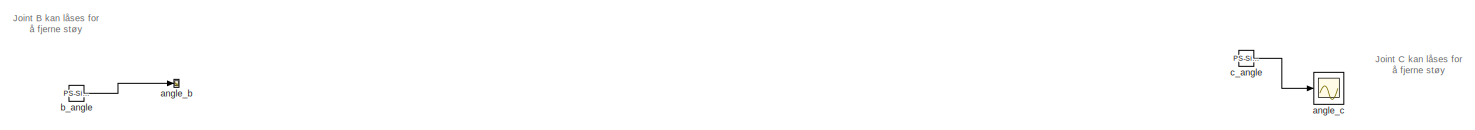
[diagram: root canvas - part 1/3, full width, top band]
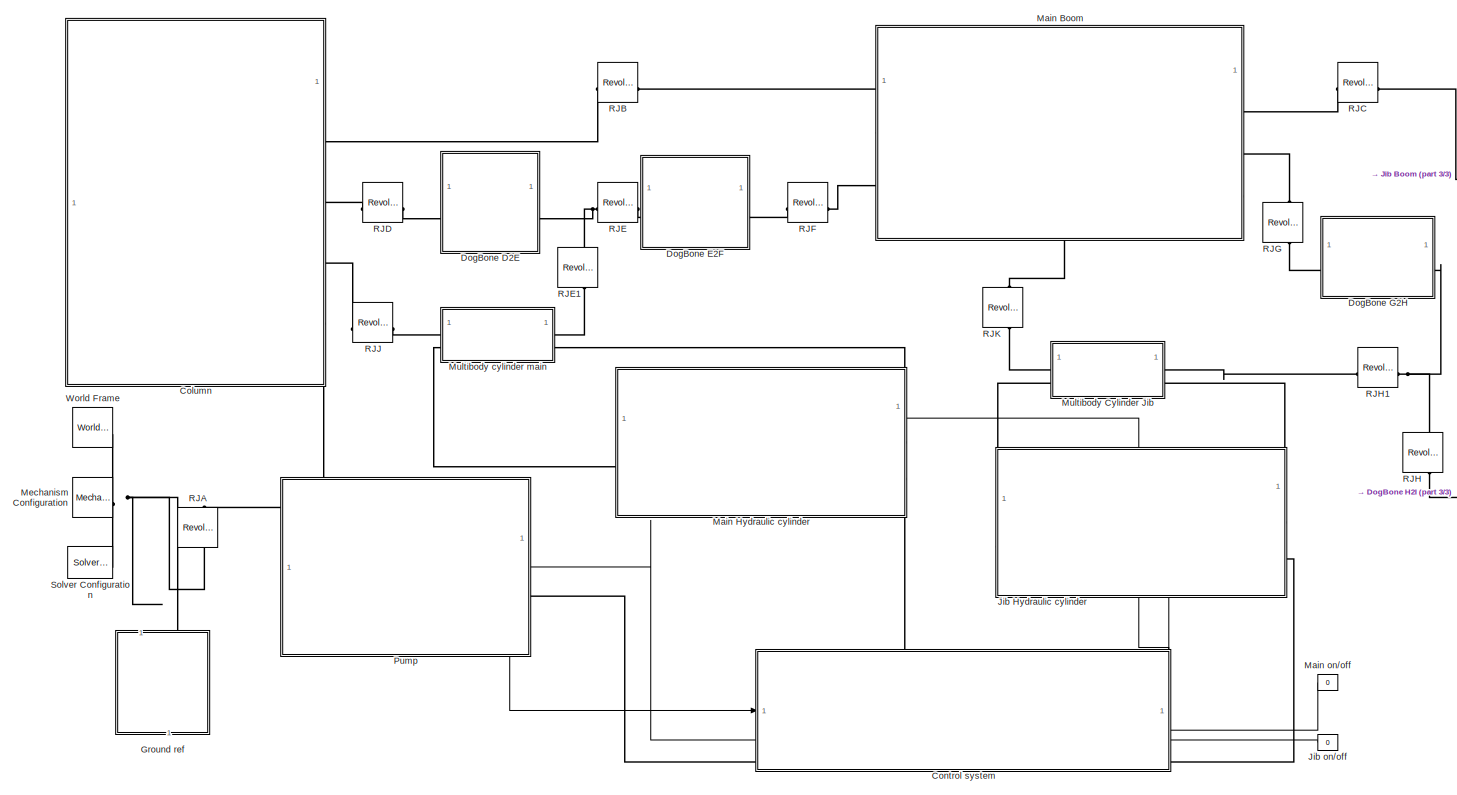
[diagram: root canvas - part 2/3, most of the canvas]
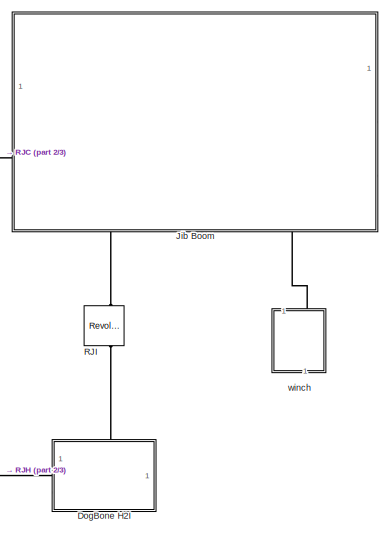
[diagram: root canvas - part 3/3, middle right region]
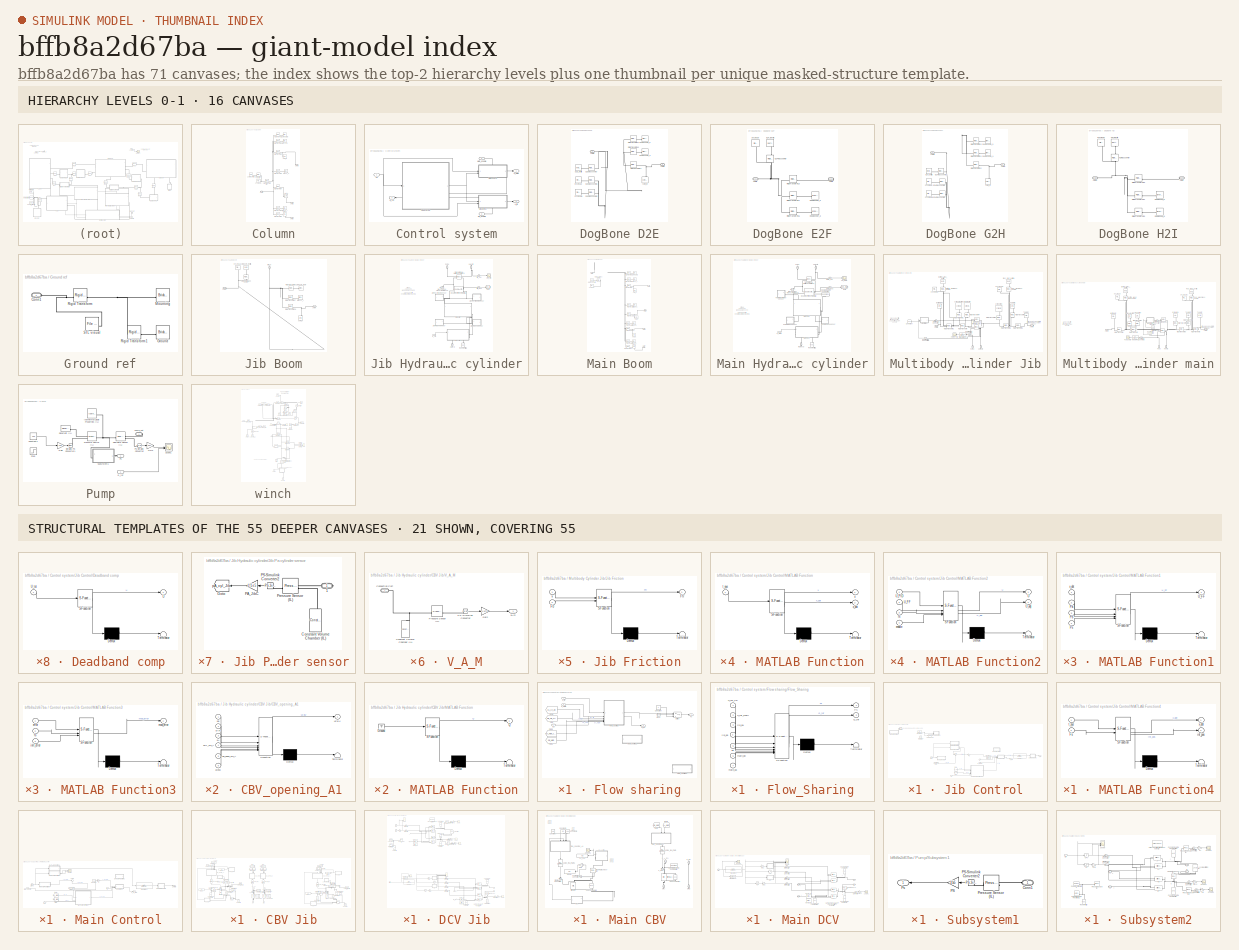
[diagram: thumbnail index - top-2 hierarchy levels (16 canvases) + 21 structural-template representatives of the remaining 55 canvases]
MODEL slx_bffb8a2d67ba
KIND model
CONFIG AbsTol = auto
CONFIG EnableMultiTasking = off
CONFIG FixedStep = auto
CONFIG MaxStep = auto
CONFIG MinStep = 1e-5
CONFIG RelTol = 1e-4
CONFIG SampleTimeConstraint = Unconstrained
CONFIG SolverName = VariableStepAuto
CONFIG StartTime = 0.0
CONFIG StopTime = 5
WORKSPACE source: MATLAB code (in-file)
WORKSPACE initial_pos_Main = 0.60  (= 0.6)
WORKSPACE initial_pos_Jib = 0.15
WORKSPACE w0 = 0.07
WORKSPACE w1 = w0/4  (= 0.0175)
WORKSPACE l_RJ = 0.277
WORKSPACE r_RJ = 0.030  (= 0.03)
WORKSPACE L_Column = 1.5655
WORKSPACE eta_B = -0.25
WORKSPACE zeta_B = L_Column  (= 1.5655)
WORKSPACE eta_D = -0.365
WORKSPACE zeta_D = 1.4805
WORKSPACE eta_J = 0.200  (= 0.2)
WORKSPACE zeta_J = 0.1195
WORKSPACE l_DE = 0.490  (= 0.49)
WORKSPACE l_FE = 0.170  (= 0.17)
WORKSPACE L_Mboom = 2.400  (= 2.4)
WORKSPACE eta_C = 2.400  (= 2.4)
WORKSPACE zeta_C = 0.070  (= 0.07)
WORKSPACE eta_F = 0.340  (= 0.34)
WORKSPACE zeta_F = 0.010  (= 0.01)
WORKSPACE eta_G = 2.365
WORKSPACE zeta_G = 0.235
WORKSPACE eta_K = 0.750  (= 0.75)
WORKSPACE zeta_K = 0.045
WORKSPACE l_GH = 0.490  (= 0.49)
WORKSPACE l_IH = 0.220  (= 0.22)
WORKSPACE L_Jib_boom = 2.429
WORKSPACE eta_I = 0.280  (= 0.28)
WORKSPACE zeta_I = 0.005
WORKSPACE eta_TP = L_Jib_boom  (= 2.429)
WORKSPACE zeta_TP = 0
WORKSPACE r_W = 0.205/2  (= 0.1025)
WORKSPACE L_W = 0.191
WORKSPACE eta_W = 0.28722
WORKSPACE zeta_W = -0.29926
WORKSPACE beta_W = -0.335
WORKSPACE eta_MP = -0.0249
WORKSPACE zeta_MP = -0.17479
WORKSPACE beta_MP = 0
WORKSPACE r_P = 0.210/2  (= 0.105)
WORKSPACE eta_P = 2.140  (= 2.14)
WORKSPACE zeta_P = -0.0506
WORKSPACE beta_P = -0.0  (= 0)
WORKSPACE r_RO = 0.055/2  (= 0.0275)
WORKSPACE r_RU = 0.046/2  (= 0.023)
WORKSPACE eta_RO = 0.306
WORKSPACE zeta_RO = 0.12510  (= 0.1251)
WORKSPACE L_M = 1
WORKSPACE W_M = 1
WORKSPACE H_M = 1
WORKSPACE eta_M = 0
WORKSPACE zeta_M = -0.5
WORKSPACE beta_M = 0
WORKSPACE L_ground = 6
WORKSPACE W_ground = 4
WORKSPACE H_ground = 0.01
WORKSPACE eta_ground = 1.5
WORKSPACE zeta_ground = -0.5
WORKSPACE beta_ground = 0
WORKSPACE column_mass = 239.4
WORKSPACE column_COM = [-0.1007, 0.0001, 0.4351]
WORKSPACE MainBoom_mass = 216.5
WORKSPACE MainBoom_COM = [1.134, 0.1674, -0.0018]
WORKSPACE JibBoom_mass = 842.2
WORKSPACE JibBoom_COM = [0.9806, 0.1814, -0.2939]
WORKSPACE E2F_mass = 7.076*2  (= 14.152)
WORKSPACE E2F_COM = [0.0817, 0, 0]
WORKSPACE D2E_mass = 6.426*2  (= 12.852)
WORKSPACE D2E_COM = [0.245, 0, 0]
WORKSPACE G2H_mass = 6.426*2  (= 12.852)
WORKSPACE G2H_COM = [0.245, 0, 0]
WORKSPACE H2I_mass = 22.05
WORKSPACE H2I_COM = [0.1206, 0, 0]
WORKSPACE MainC_bottom_mass = 57.9561
WORKSPACE MainC_bottom_COM = [0.0081, -0.001, 0.4125]
WORKSPACE MainC_rod_mass = 43.93
WORKSPACE MainC_rod_COM = [0, 0, -0.4290]
WORKSPACE JibC_bottom_mass = 55.7738
WORKSPACE JibC_bottom_COM = [0.0038, 0.0022, 0.4468]
WORKSPACE JibC_rod_mass = 45.8854
WORKSPACE JibC_rod_COM = [0, 0, -0.4694]
WORKSPACE Winch_mass = 54
WORKSPACE Winch_COM = [0, 0, 0]
WORKSPACE column_MOI = [109, 114, 9.009]
WORKSPACE column_POI = [0.0319, -21.59, -0.0113]
WORKSPACE MainBoom_MOI = [6.5, 160.3, 160]
WORKSPACE MainBoom_POI = [0.0666, 0.1093, 8.016]
WORKSPACE JibBoom_MOI = [31.75, 566.3, 573.1]
WORKSPACE JibBoom_POI = [-0.0237, -11.42, 9.588]
WORKSPACE E2F_MOI = [0.0111, 0.0546, 0.0587]
WORKSPACE E2F_POI = [0, -0.0089, 0]
WORKSPACE D2E_MOI = [0.0069, 0.2419, 0.2485]
WORKSPACE D2E_POI = [0, 0, 0]
WORKSPACE G2H_MOI = [0.0069, 0.2419, 0.2485]
WORKSPACE G2H_POI = [0, 0, 0]
WORKSPACE H2I_MOI = [0.2636, 0.4184, 0.1901]
WORKSPACE H2I_POI = [0, 0, 0]
WORKSPACE MainC_bottom_MOI = [7.2059, 7.2304, 0.3979]
WORKSPACE MainC_bottom_POI = [-0.0126, -0.1802, 0.0002]
WORKSPACE MainC_rod_MOI = [6.0014, 5.9633, 0.1401]
WORKSPACE MainC_rod_POI = [0, -0.0001, 0]
WORKSPACE JibC_bottom_MOI = [8.3780, 8.3476, 0.3607]
WORKSPACE JibC_bottom_POI = [-0.0119, -0.1037, 0.0033]
WORKSPACE JibC_rod_MOI = [7.4245, 7.3864, 0.1401]
WORKSPACE JibC_rod_POI = [0, -0.0001, 0]
WORKSPACE I_W_xx = (1/4)*Winch_mass*r_W^2 + (1/12)*Winch_mass*L_W^2  (= 0.305998875)
WORKSPACE I_W_yy = (1/4)*Winch_mass*r_W^2 + (1/12)*Winch_mass*L_W^2  (= 0.305998875)
WORKSPACE I_W_zz = (1/2)*Winch_mass*r_W^2  (= 0.28366875)
WORKSPACE Winch_MOI = [I_W_xx, I_W_yy, I_W_zz]
WORKSPACE Winch_POI = [0, 0, 0]
WORKSPACE D_piston_MainC = 160
WORKSPACE L_piston_MainC = 65
WORKSPACE D_rod_MainC = 100
WORKSPACE L_rod_MainC = 978
WORKSPACE A_piston_MainC = pi/4*D_piston_MainC^2  (= 20106.192983)
WORKSPACE A_rod_MainC = pi/4*D_rod_MainC^2  (= 7853.98163397)
WORKSPACE A_rodside_MainC = A_piston_MainC-A_rod_MainC  (= 12252.211349)
WORKSPACE L_barrel_MainC = 945-L_piston_MainC  (= 880)
WORKSPACE stroke_MainC = 0.75
WORKSPACE initial_Pa_Main = 17
WORKSPACE D_piston_JibC = 150
WORKSPACE L_piston_JibC = 65
WORKSPACE D_rod_JibC = 100
WORKSPACE L_rod_JibC = 1089.5
WORKSPACE A_piston_JibC = pi/4*D_piston_JibC^2  (= 17671.4586764)
WORKSPACE A_rod_JibC = pi/4*D_rod_JibC^2  (= 7853.98163397)
WORKSPACE A_rodside_JibC = A_piston_JibC-A_rod_JibC  (= 9817.47704247)
WORKSPACE L_barrel_JibC = 1050-L_piston_JibC  (= 985)
WORKSPACE stroke_JibC = 0.855
WORKSPACE initial_Pa_Jib = 1
WORKSPACE initial_Pb_Jib = 67
WORKSPACE poly_b = [1.762740809095876e+02,-44.442169999547330]
WORKSPACE poly_c = [1.901177983521692e+02,-1.484122102902541e+02]
WORKSPACE angle_b = poly_b(1)*initial_pos_Main + poly_b(2)
WORKSPACE angle_c = poly_c(1)*initial_pos_Jib + poly_c(2)
WORKSPACE angle_w = -90 - angle_c - angle_b
WORKSPACE DM = 200
WORKSPACE GR = 5.04
WORKSPACE pCr_Main = 43.95
WORKSPACE dp_open_Main = 124.43
WORKSPACE alpha = 2.7
WORKSPACE pCr_Jib_A = 297.7
WORKSPACE dp_open_Jib_A = 150.5
WORKSPACE pCr_Jib_B = 272.9
WORKSPACE dp_open_Jib_B = 156.4
WORKSPACE Cd = 0.64
WORKSPACE Q_rat_25 = 20/6e4  (= 0.000333333333333)
WORKSPACE Q_rat_15 = 15/6e4  (= 0.00025)
WORKSPACE dp_2 = 6e5  (= 600000)
WORKSPACE dp_1 = 1e5  (= 100000)
WORKSPACE roh = 850
WORKSPACE dead_up_Main = 0.071
WORKSPACE dead_down_Main = 0.126
WORKSPACE dead_up_Jib = 0.037
WORKSPACE dead_down_Jib = 0.126
WORKSPACE Ad2_25 = Q_rat_25/(Cd*sqrt(2/roh*dp_2))*1e6
WORKSPACE Ad2_15 = Q_rat_15/(Cd*sqrt(2/roh*dp_2))*1e6
WORKSPACE Ad1_1_25 = Q_rat_25/(Cd*sqrt(2/roh*dp_1))*1e6
WORKSPACE Ad1_1_15 = Q_rat_15/(Cd*sqrt(2/roh*dp_1))*1e6
WORKSPACE Ad1_Main_up = Q_rat_25/(Cd*sqrt(2/roh*dp_1))*1e6*dead_up_Main
WORKSPACE Ad1_Main_down = Q_rat_15/(Cd*sqrt(2/roh*dp_1))*1e6*dead_down_Main
WORKSPACE Ad1_Jib_up = Q_rat_25/(Cd*sqrt(2/roh*dp_1))*1e6*dead_up_Jib
WORKSPACE Ad1_Jib_down = Q_rat_15/(Cd*sqrt(2/roh*dp_1))*1e6*dead_down_Jib
WORKSPACE Max_flow = 55/6e4  (= 0.000916666666667)
BLOCK [SubSystem] Column
  PortSchema = {"entries":[{"content":{"sides":[{"content":{},"type":"ConnectorPlacement.EquallySpacedRectSide","uuid":"91146bd0-e3f7-4d1d-b51d-cb59a184eece"},{"content":{"connectorIds":["RConn1","RConn2","RConn3"],"side":"RIGHT"},"type":"ConnectorPlacement.EquallySpacedRectSide","uuid":"324b194b-e0b0-428e-a1f2-fbf0114925f9"},{"content":{"side":"TOP"},"type":"ConnectorPlacement.EquallySpacedRectSide","uuid":"8e6...<+372ch>
BLOCK [Reference] Column/Branch_B  REF=sm_lib/Body Elements/Brick Solid
  SourceBlock = sm_lib/Body Elements/Brick Solid
  SourceType = Brick Solid
BLOCK [Reference] Column/Branch_D  REF=sm_lib/Body Elements/Brick Solid
  SourceBlock = sm_lib/Body Elements/Brick Solid
  SourceType = Brick Solid
BLOCK [Reference] Column/Branch_J  REF=sm_lib/Body Elements/Brick Solid
  SourceBlock = sm_lib/Body Elements/Brick Solid
  SourceType = Brick Solid
BLOCK [Reference] Column/Column mass senter  REF=sm_lib/Frames and
Transforms/Rigid
Transform
  NameLocation = top
  SourceBlock = sm_lib/Frames and\nTransforms/Rigid\nTransform
  SourceType = Rigid\nTransform
BLOCK [Reference] Column/Column_Inertia  REF=sm_lib/Body Elements/Inertia
  SourceBlock = sm_lib/Body Elements/Inertia
  SourceType = Inertia
BLOCK [Reference] Column/Column_Main  REF=sm_lib/Body Elements/Brick Solid
  SourceBlock = sm_lib/Body Elements/Brick Solid
  SourceType = Brick Solid
BLOCK [PMIOPort] Column/Joint A
  Port = 4
  Side = Right
BLOCK [PMIOPort] Column/Joint B
  Side = Right
BLOCK [PMIOPort] Column/Joint D
  Port = 2
  Side = Right
BLOCK [PMIOPort] Column/Joint J
  Port = 3
  Side = Right
BLOCK [Reference] Column/Joint_B  REF=sm_lib/Body Elements/Cylindrical Solid
  SourceBlock = sm_lib/Body Elements/Cylindrical Solid
  SourceType = Cylindrical Solid
BLOCK [Reference] Column/Joint_D  REF=sm_lib/Body Elements/Cylindrical Solid
  SourceBlock = sm_lib/Body Elements/Cylindrical Solid
  SourceType = Cylindrical Solid
BLOCK [Reference] Column/Joint_J  REF=sm_lib/Body Elements/Cylindrical Solid
  SourceBlock = sm_lib/Body Elements/Cylindrical Solid
  SourceType = Cylindrical Solid
BLOCK [Reference] Column/Rigid Transform  REF=sm_lib/Frames and
Transforms/Rigid
Transform
  SourceBlock = sm_lib/Frames and\nTransforms/Rigid\nTransform
  SourceType = Rigid\nTransform
BLOCK [Reference] Column/Rigid Transform1  REF=sm_lib/Frames and
Transforms/Rigid
Transform
  SourceBlock = sm_lib/Frames and\nTransforms/Rigid\nTransform
  SourceType = Rigid\nTransform
BLOCK [Reference] Column/Rigid Transform2  REF=sm_lib/Frames and
Transforms/Rigid
Transform
  SourceBlock = sm_lib/Frames and\nTransforms/Rigid\nTransform
  SourceType = Rigid\nTransform
BLOCK [Reference] Column/Rigid Transform3  REF=sm_lib/Frames and
Transforms/Rigid
Transform
  SourceBlock = sm_lib/Frames and\nTransforms/Rigid\nTransform
  SourceType = Rigid\nTransform
BLOCK [Reference] Column/Rigid Transform4  REF=sm_lib/Frames and
Transforms/Rigid
Transform
  SourceBlock = sm_lib/Frames and\nTransforms/Rigid\nTransform
  SourceType = Rigid\nTransform
BLOCK [Reference] Column/Rigid Transform5  REF=sm_lib/Frames and
Transforms/Rigid
Transform
  SourceBlock = sm_lib/Frames and\nTransforms/Rigid\nTransform
  SourceType = Rigid\nTransform
BLOCK [Reference] Column/Rigid Transform6  REF=sm_lib/Frames and
Transforms/Rigid
Transform
  SourceBlock = sm_lib/Frames and\nTransforms/Rigid\nTransform
  SourceType = Rigid\nTransform
BLOCK [Reference] Column/STL visual  REF=sm_lib/Body Elements/File Solid
  SourceBlock = sm_lib/Body Elements/File Solid
  SourceType = File Solid
BLOCK [Reference] Column/solidworks origin error  REF=sm_lib/Frames and
Transforms/Rigid
Transform
  SourceBlock = sm_lib/Frames and\nTransforms/Rigid\nTransform
  SourceType = Rigid\nTransform
BLOCK [SubSystem] Control system
  PortSchema = {"entries":[{"content":{"sides":[{"content":{"connectorIds":["In1","Out3"]},"type":"ConnectorPlacement.EquallySpacedRectSide","uuid":"431d2b48-7eae-4773-9c4f-9ecc2d277837"},{"content":{"connectorIds":["In2","In3"],"side":"RIGHT"},"type":"ConnectorPlacement.EquallySpacedRectSide","uuid":"2dc381dd-8a94-4c7d-a051-c290c9ae20a2"},{"content":{"connectorIds":["Out1","Out2"],"side":"TOP"},"type":"Connecto...<+391ch>
BLOCK [SubSystem] Control system/Flow sharing
  PortSchema = {"entries":[{"content":{"sides":[{"content":{"connectorIds":["In1","Out2"]},"type":"ConnectorPlacement.EquallySpacedRectSide","uuid":"244f32b6-20c7-412b-816a-eac59723389c"},{"content":{"connectorIds":["In2","Out1","In3"],"side":"RIGHT"},"type":"ConnectorPlacement.EquallySpacedRectSide","uuid":"75d1c5aa-2a4c-4766-bde0-6d60f11e5f2c"},{"content":{"side":"TOP"},"type":"ConnectorPlacement.EquallySpaced...<+241ch>
BLOCK [Clock] Control system/Flow sharing/Clock
BLOCK [Constant] Control system/Flow sharing/Constant
BLOCK [SubSystem] Control system/Flow sharing/Flow_Sharing
  ErrorFcn = Stateflow.Translate.translate
  PermitHierarchicalResolution = ExplicitOnly
  SFBlockType = MATLAB Function
  TreatAsAtomicUnit = on
BLOCK [Demux] Control system/Flow sharing/Flow_Sharing/ Demux 
  Outputs = 1
BLOCK [S-Function] Control system/Flow sharing/Flow_Sharing/ SFunction 
  EnableBusSupport = on
  FunctionName = sf_sfun
  Parameters = Ad2_15,Ad2_25,Cd,Max_flow,roh
  PortCounts = [7 3]
  SFcnIsStateOwnerBlock = off
  SFunctionDeploymentMode = off
  Tag = Stateflow S-Function 21
BLOCK [Terminator] Control system/Flow sharing/Flow_Sharing/ Terminator 
BLOCK [Outport] Control system/Flow sharing/Flow_Sharing/Fs
BLOCK [Outport] Control system/Flow sharing/Flow_Sharing/Q_ref
  Port = 2
BLOCK [Inport] Control system/Flow sharing/Flow_Sharing/jib_pa
  Port = 3
BLOCK [Inport] Control system/Flow sharing/Flow_Sharing/jib_pb
  Port = 4
BLOCK [Inport] Control system/Flow sharing/Flow_Sharing/main_pa
  Port = 7
BLOCK [Inport] Control system/Flow sharing/Flow_Sharing/main_pb
  Port = 6
BLOCK [Inport] Control system/Flow sharing/Flow_Sharing/ps
  Port = 5
BLOCK [Inport] Control system/Flow sharing/Flow_Sharing/u_ref_jib
BLOCK [Inport] Control system/Flow sharing/Flow_Sharing/u_ref_main
  Port = 2
BLOCK [SubSystem] Control system/Flow sharing/Flow_Sharing1
  Commented = on
  ErrorFcn = Stateflow.Translate.translate
  PermitHierarchicalResolution = ExplicitOnly
  SFBlockType = MATLAB Function
  TreatAsAtomicUnit = on
BLOCK [Demux] Control system/Flow sharing/Flow_Sharing1/ Demux 
  Outputs = 1
BLOCK [S-Function] Control system/Flow sharing/Flow_Sharing1/ SFunction 
  EnableBusSupport = on
  FunctionName = sf_sfun
  Parameters = A_piston_JibC,A_piston_MainC,A_rodside_JibC,A_rodside_MainC,Max_flow
  PortCounts = [2 2]
  SFcnIsStateOwnerBlock = off
  SFunctionDeploymentMode = off
  Tag = Stateflow S-Function 22
BLOCK [Terminator] Control system/Flow sharing/Flow_Sharing1/ Terminator 
BLOCK [Outport] Control system/Flow sharing/Flow_Sharing1/Fs
BLOCK [Inport] Control system/Flow sharing/Flow_Sharing1/vel_ref_jib
BLOCK [Inport] Control system/Flow sharing/Flow_Sharing1/vel_ref_main
  Port = 2
BLOCK [SubSystem] Control system/Flow sharing/Flow_Sharing2
  Commented = on
  ErrorFcn = Stateflow.Translate.translate
  PermitHierarchicalResolution = ExplicitOnly
  SFBlockType = MATLAB Function
  TreatAsAtomicUnit = on
BLOCK [Demux] Control system/Flow sharing/Flow_Sharing2/ Demux 
  Outputs = 1
BLOCK [S-Function] Control system/Flow sharing/Flow_Sharing2/ SFunction 
  EnableBusSupport = on
  FunctionName = sf_sfun
  Parameters = A_piston_JibC,A_piston_MainC,A_rodside_JibC,A_rodside_MainC,Max_flow
  PortCounts = [2 2]
  SFcnIsStateOwnerBlock = off
  SFunctionDeploymentMode = off
  Tag = Stateflow S-Function 23
BLOCK [Terminator] Control system/Flow sharing/Flow_Sharing2/ Terminator 
BLOCK [Outport] Control system/Flow sharing/Flow_Sharing2/Fs
BLOCK [Inport] Control system/Flow sharing/Flow_Sharing2/vel_ref_jib
BLOCK [Inport] Control system/Flow sharing/Flow_Sharing2/vel_ref_main
  Port = 2
BLOCK [From] Control system/Flow sharing/From
  GotoTag = pB_Jib_cyl
  NameLocation = top
  TagVisibility = global
BLOCK [From] Control system/Flow sharing/From1
  GotoTag = pA_cyl_Jib
  NameLocation = top
  TagVisibility = global
BLOCK [From] Control system/Flow sharing/From2
  GotoTag = pB_Main
  NameLocation = top
  TagVisibility = global
BLOCK [From] Control system/Flow sharing/From3
  GotoTag = pA_main_cyl
  NameLocation = top
  TagVisibility = global
BLOCK [Outport] Control system/Flow sharing/Fs
BLOCK [Inport] Control system/Flow sharing/Ps
BLOCK [Outport] Control system/Flow sharing/Q_ref
  Port = 2
BLOCK [Switch] Control system/Flow sharing/Switch
  Criteria = u2 > Threshold
  InputSameDT = off
  SaturateOnIntegerOverflow = off
  Threshold = 0.1
BLOCK [Inport] Control system/Flow sharing/U_jib
  Port = 3
BLOCK [Inport] Control system/Flow sharing/U_main
  Port = 2
BLOCK [SubSystem] Control system/Jib Control
  NameLocation = top
  PortSchema = {"entries":[{"content":{"sides":[{"content":{"connectorIds":["In1","Out2","In2"]},"type":"ConnectorPlacement.EquallySpacedRectSide","uuid":"2f55b33a-037c-4cf5-80e8-5b56266d201c"},{"content":{"connectorIds":["Out1"],"side":"RIGHT"},"type":"ConnectorPlacement.EquallySpacedRectSide","uuid":"6f4a2e8a-545f-4fd1-a0ff-2aacc124bd47"},{"content":{"side":"TOP"},"type":"ConnectorPlacement.EquallySpacedRectSi...<+384ch>
BLOCK [Clock] Control system/Jib Control/Clock
BLOCK [Reference] Control system/Jib Control/Compare To Constant  REF=simulink/Logic and Bit
Operations/Compare
To Constant
  Commented = on
  SourceBlock = simulink/Logic and Bit\nOperations/Compare\nTo Constant
  SourceType = Compare To Constant
BLOCK [SubSystem] Control system/Jib Control/Deadband comp
  ErrorFcn = Stateflow.Translate.translate
  PermitHierarchicalResolution = ExplicitOnly
  SFBlockType = MATLAB Function
  TreatAsAtomicUnit = on
BLOCK [Demux] Control system/Jib Control/Deadband comp/ Demux 
  Outputs = 1
BLOCK [S-Function] Control system/Jib Control/Deadband comp/ SFunction 
  EnableBusSupport = on
  FunctionName = sf_sfun
  Parameters = dead_down_Jib,dead_up_Jib
  PortCounts = [1 2]
  SFcnIsStateOwnerBlock = off
  SFunctionDeploymentMode = off
  Tag = Stateflow S-Function 28
BLOCK [Terminator] Control system/Jib Control/Deadband comp/ Terminator 
BLOCK [Outport] Control system/Jib Control/Deadband comp/U
BLOCK [Inport] Control system/Jib Control/Deadband comp/U_tot
BLOCK [From] Control system/Jib Control/From
  GotoTag = pB_Jib
  NameLocation = top
  TagVisibility = global
BLOCK [From] Control system/Jib Control/From1
  GotoTag = pA_Jib
  NameLocation = top
  TagVisibility = global
BLOCK [From] Control system/Jib Control/From2
  GotoTag = pos_jib
  TagVisibility = global
BLOCK [Integrator] Control system/Jib Control/Integrator1
  Commented = on
BLOCK [Inport] Control system/Jib Control/Jib_enable
  Port = 3
BLOCK [SubSystem] Control system/Jib Control/MATLAB Function
  Commented = on
  ErrorFcn = Stateflow.Translate.translate
  PermitHierarchicalResolution = ExplicitOnly
  SFBlockType = MATLAB Function
  TreatAsAtomicUnit = on
BLOCK [Demux] Control system/Jib Control/MATLAB Function/ Demux 
  Outputs = 1
BLOCK [S-Function] Control system/Jib Control/MATLAB Function/ SFunction 
  EnableBusSupport = on
  FunctionName = sf_sfun
  Parameters = initial_pos_Jib
  PortCounts = [1 3]
  SFcnIsStateOwnerBlock = off
  SFunctionDeploymentMode = off
  Tag = Stateflow S-Function 9
BLOCK [Terminator] Control system/Jib Control/MATLAB Function/ Terminator 
BLOCK [Inport] Control system/Jib Control/MATLAB Function/t_sys
BLOCK [Outport] Control system/Jib Control/MATLAB Function/x
BLOCK [Outport] Control system/Jib Control/MATLAB Function/x_dot
  Port = 2
BLOCK [SubSystem] Control system/Jib Control/MATLAB Function1
  ErrorFcn = Stateflow.Translate.translate
  PermitHierarchicalResolution = ExplicitOnly
  SFBlockType = MATLAB Function
  TreatAsAtomicUnit = on
BLOCK [Demux] Control system/Jib Control/MATLAB Function1/ Demux 
  Outputs = 1
BLOCK [S-Function] Control system/Jib Control/MATLAB Function1/ SFunction 
  EnableBusSupport = on
  FunctionName = sf_sfun
  Parameters = A_piston_JibC,A_rodside_JibC,dead_down_Jib,dead_up_Jib
  PortCounts = [4 2]
  SFcnIsStateOwnerBlock = off
  SFunctionDeploymentMode = off
  Tag = Stateflow S-Function 10
BLOCK [Terminator] Control system/Jib Control/MATLAB Function1/ Terminator 
BLOCK [Inport] Control system/Jib Control/MATLAB Function1/Pa
  Port = 2
BLOCK [Inport] Control system/Jib Control/MATLAB Function1/Pb
  Port = 3
BLOCK [Inport] Control system/Jib Control/MATLAB Function1/Ps
  Port = 4
BLOCK [Outport] Control system/Jib Control/MATLAB Function1/U_FF
BLOCK [Inport] Control system/Jib Control/MATLAB Function1/x_dot
BLOCK [SubSystem] Control system/Jib Control/MATLAB Function2
  ErrorFcn = Stateflow.Translate.translate
  PermitHierarchicalResolution = ExplicitOnly
  SFBlockType = MATLAB Function
  TreatAsAtomicUnit = on
BLOCK [Demux] Control system/Jib Control/MATLAB Function2/ Demux 
  Outputs = 1
BLOCK [S-Function] Control system/Jib Control/MATLAB Function2/ SFunction 
  EnableBusSupport = on
  FunctionName = sf_sfun
  PortCounts = [4 3]
  SFcnIsStateOwnerBlock = off
  SFunctionDeploymentMode = off
  Tag = Stateflow S-Function 11
BLOCK [Terminator] Control system/Jib Control/MATLAB Function2/ Terminator 
BLOCK [Outport] Control system/Jib Control/MATLAB Function2/U
BLOCK [Inport] Control system/Jib Control/MATLAB Function2/U_FF
  Port = 2
BLOCK [Inport] Control system/Jib Control/MATLAB Function2/U_PID
BLOCK [Outport] Control system/Jib Control/MATLAB Function2/U_adj
  Port = 2
BLOCK [Inport] Control system/Jib Control/MATLAB Function2/enable
  Port = 4
BLOCK [Inport] Control system/Jib Control/MATLAB Function2/fs
  Port = 3
BLOCK [SubSystem] Control system/Jib Control/MATLAB Function3
  Commented = on
  ErrorFcn = Stateflow.Translate.translate
  PermitHierarchicalResolution = ExplicitOnly
  SFBlockType = MATLAB Function
  TreatAsAtomicUnit = on
BLOCK [Demux] Control system/Jib Control/MATLAB Function3/ Demux 
  Outputs = 1
BLOCK [S-Function] Control system/Jib Control/MATLAB Function3/ SFunction 
  EnableBusSupport = on
  FunctionName = sf_sfun
  PortCounts = [3 2]
  SFcnIsStateOwnerBlock = off
  SFunctionDeploymentMode = off
  Tag = Stateflow S-Function 25
BLOCK [Terminator] Control system/Jib Control/MATLAB Function3/ Terminator 
BLOCK [Inport] Control system/Jib Control/MATLAB Function3/error
BLOCK [Inport] Control system/Jib Control/MATLAB Function3/fs
  Port = 2
BLOCK [Inport] Control system/Jib Control/MATLAB Function3/init_error
  Port = 3
BLOCK [Outport] Control system/Jib Control/MATLAB Function3/mod_error
BLOCK [SubSystem] Control system/Jib Control/MATLAB Function4
  Commented = on
  ErrorFcn = Stateflow.Translate.translate
  PermitHierarchicalResolution = ExplicitOnly
  SFBlockType = MATLAB Function
  TreatAsAtomicUnit = on
BLOCK [Demux] Control system/Jib Control/MATLAB Function4/ Demux 
  Outputs = 1
BLOCK [S-Function] Control system/Jib Control/MATLAB Function4/ SFunction 
  EnableBusSupport = on
  FunctionName = sf_sfun
  Parameters = initial_pos_Jib
  PortCounts = [2 3]
  SFcnIsStateOwnerBlock = off
  SFunctionDeploymentMode = off
  Tag = Stateflow S-Function 24
BLOCK [Terminator] Control system/Jib Control/MATLAB Function4/ Terminator 
BLOCK [Inport] Control system/Jib Control/MATLAB Function4/Fs
  Port = 2
BLOCK [Outport] Control system/Jib Control/MATLAB Function4/int_pos
  Port = 2
BLOCK [Inport] Control system/Jib Control/MATLAB Function4/t_sys
BLOCK [Outport] Control system/Jib Control/MATLAB Function4/x_dot
BLOCK [SubSystem] Control system/Jib Control/MATLAB Function5
  Commented = on
  ErrorFcn = Stateflow.Translate.translate
  PermitHierarchicalResolution = ExplicitOnly
  SFBlockType = MATLAB Function
  TreatAsAtomicUnit = on
BLOCK [Demux] Control system/Jib Control/MATLAB Function5/ Demux 
  Outputs = 1
BLOCK [S-Function] Control system/Jib Control/MATLAB Function5/ SFunction 
  EnableBusSupport = on
  FunctionName = sf_sfun
  Parameters = dead_down_Jib,dead_up_Jib
  PortCounts = [4 3]
  SFcnIsStateOwnerBlock = off
  SFunctionDeploymentMode = off
  Tag = Stateflow S-Function 29
BLOCK [Terminator] Control system/Jib Control/MATLAB Function5/ Terminator 
BLOCK [Outport] Control system/Jib Control/MATLAB Function5/U
BLOCK [Inport] Control system/Jib Control/MATLAB Function5/U_FF
  Port = 2
BLOCK [Inport] Control system/Jib Control/MATLAB Function5/U_PID
BLOCK [Outport] Control system/Jib Control/MATLAB Function5/U_adj
  Port = 2
BLOCK [Inport] Control system/Jib Control/MATLAB Function5/enable
  Port = 4
BLOCK [Inport] Control system/Jib Control/MATLAB Function5/fs
  Port = 3
BLOCK [SubSystem] Control system/Jib Control/MATLAB Function6
  ErrorFcn = Stateflow.Translate.translate
  PermitHierarchicalResolution = ExplicitOnly
  SFBlockType = MATLAB Function
  TreatAsAtomicUnit = on
BLOCK [Demux] Control system/Jib Control/MATLAB Function6/ Demux 
  Outputs = 1
BLOCK [S-Function] Control system/Jib Control/MATLAB Function6/ SFunction 
  EnableBusSupport = on
  FunctionName = sf_sfun
  Parameters = initial_pos_Jib
  PortCounts = [1 3]
  SFcnIsStateOwnerBlock = off
  SFunctionDeploymentMode = off
  Tag = Stateflow S-Function 32
BLOCK [Terminator] Control system/Jib Control/MATLAB Function6/ Terminator 
BLOCK [Inport] Control system/Jib Control/MATLAB Function6/t
BLOCK [Outport] Control system/Jib Control/MATLAB Function6/y
BLOCK [Outport] Control system/Jib Control/MATLAB Function6/y_int
  Port = 2
BLOCK [SubSystem] Control system/Jib Control/MATLAB Function7
  Commented = on
  ErrorFcn = Stateflow.Translate.translate
  PermitHierarchicalResolution = ExplicitOnly
  SFBlockType = MATLAB Function
  TreatAsAtomicUnit = on
BLOCK [Demux] Control system/Jib Control/MATLAB Function7/ Demux 
  Outputs = 1
BLOCK [S-Function] Control system/Jib Control/MATLAB Function7/ SFunction 
  EnableBusSupport = on
  FunctionName = sf_sfun
  Parameters = dead_down_Jib,dead_up_Jib
  PortCounts = [1 2]
  SFcnIsStateOwnerBlock = off
  SFunctionDeploymentMode = off
  Tag = Stateflow S-Function 33
BLOCK [Terminator] Control system/Jib Control/MATLAB Function7/ Terminator 
BLOCK [Inport] Control system/Jib Control/MATLAB Function7/t
BLOCK [Outport] Control system/Jib Control/MATLAB Function7/y
BLOCK [Gain] Control system/Jib Control/P
  Gain = 22
BLOCK [Inport] Control system/Jib Control/Ps
  Port = 2
BLOCK [Reference] Control system/Jib Control/Sample and Hold  REF=spsSampleandHoldLib/Sample and
Hold
  Commented = on
  LibrarySourceBlock = sps_lib/Control/Sample and\nHold
  SourceBlock = spsSampleandHoldLib/Sample and\nHold
  SourceType = Sample and Hold
BLOCK [Sum] Control system/Jib Control/Sum1
  Inputs = ++-
BLOCK [TransferFcn] Control system/Jib Control/Transfer Fcn
  Denominator = [1 3.5*0.7*2 3.5^2]
  Numerator = [3.5^2]
BLOCK [TransferFcn] Control system/Jib Control/Transfer Fcn2
  Commented = on
  Denominator = [0.01 1]
BLOCK [TransferFcn] Control system/Jib Control/Transfer Fcn4
  Commented = on
  Denominator = [0.1 1]
  NameLocation = top
BLOCK [Outport] Control system/Jib Control/U_fs_jib
  Port = 2
BLOCK [Outport] Control system/Jib Control/U_jib
BLOCK [Inport] Control system/Jib Control/fs
BLOCK [Inport] Control system/Jib_enable
  Port = 3
BLOCK [SubSystem] Control system/Main Control
  PortSchema = {"entries":[{"content":{"sides":[{"content":{"connectorIds":["In1","Out2","In2"]},"type":"ConnectorPlacement.EquallySpacedRectSide","uuid":"2f55b33a-037c-4cf5-80e8-5b56266d201c"},{"content":{"connectorIds":["Out1"],"side":"RIGHT"},"type":"ConnectorPlacement.EquallySpacedRectSide","uuid":"6f4a2e8a-545f-4fd1-a0ff-2aacc124bd47"},{"content":{"connectorIds":["In3"],"side":"TOP"},"type":"ConnectorPlacem...<+258ch>
BLOCK [Clock] Control system/Main Control/Clock
BLOCK [Constant] Control system/Main Control/Constant
  Value = 0
BLOCK [SubSystem] Control system/Main Control/Deadband comp
  ErrorFcn = Stateflow.Translate.translate
  PermitHierarchicalResolution = ExplicitOnly
  SFBlockType = MATLAB Function
  TreatAsAtomicUnit = on
BLOCK [Demux] Control system/Main Control/Deadband comp/ Demux 
  Outputs = 1
BLOCK [S-Function] Control system/Main Control/Deadband comp/ SFunction 
  EnableBusSupport = on
  FunctionName = sf_sfun
  Parameters = dead_down_Main,dead_up_Main
  PortCounts = [1 2]
  SFcnIsStateOwnerBlock = off
  SFunctionDeploymentMode = off
  Tag = Stateflow S-Function 27
BLOCK [Terminator] Control system/Main Control/Deadband comp/ Terminator 
BLOCK [Outport] Control system/Main Control/Deadband comp/U
BLOCK [Inport] Control system/Main Control/Deadband comp/U_tot
BLOCK [From] Control system/Main Control/From
  GotoTag = pB_Main
  NameLocation = top
  TagVisibility = global
BLOCK [From] Control system/Main Control/From1
  GotoTag = pA_Main
  NameLocation = top
  TagVisibility = global
BLOCK [From] Control system/Main Control/From2
  Commented = on
  GotoTag = pos_main
  TagVisibility = global
BLOCK [SubSystem] Control system/Main Control/MATLAB Function
  Commented = on
  ErrorFcn = Stateflow.Translate.translate
  PermitHierarchicalResolution = ExplicitOnly
  SFBlockType = MATLAB Function
  TreatAsAtomicUnit = on
BLOCK [Demux] Control system/Main Control/MATLAB Function/ Demux 
  Outputs = 1
BLOCK [S-Function] Control system/Main Control/MATLAB Function/ SFunction 
  EnableBusSupport = on
  FunctionName = sf_sfun
  PortCounts = [1 3]
  SFcnIsStateOwnerBlock = off
  SFunctionDeploymentMode = off
  Tag = Stateflow S-Function 4
BLOCK [Terminator] Control system/Main Control/MATLAB Function/ Terminator 
BLOCK [Inport] Control system/Main Control/MATLAB Function/t
BLOCK [Outport] Control system/Main Control/MATLAB Function/y
BLOCK [Outport] Control system/Main Control/MATLAB Function/y_int
  Port = 2
BLOCK [SubSystem] Control system/Main Control/MATLAB Function1
  ErrorFcn = Stateflow.Translate.translate
  PermitHierarchicalResolution = ExplicitOnly
  SFBlockType = MATLAB Function
  TreatAsAtomicUnit = on
BLOCK [Demux] Control system/Main Control/MATLAB Function1/ Demux 
  Outputs = 1
BLOCK [S-Function] Control system/Main Control/MATLAB Function1/ SFunction 
  EnableBusSupport = on
  FunctionName = sf_sfun
  Parameters = A_piston_MainC,A_rodside_MainC,dead_down_Main,dead_up_Main
  PortCounts = [4 2]
  SFcnIsStateOwnerBlock = off
  SFunctionDeploymentMode = off
  Tag = Stateflow S-Function 7
BLOCK [Terminator] Control system/Main Control/MATLAB Function1/ Terminator 
BLOCK [Inport] Control system/Main Control/MATLAB Function1/Pa
  Port = 2
BLOCK [Inport] Control system/Main Control/MATLAB Function1/Pb
  Port = 3
BLOCK [Inport] Control system/Main Control/MATLAB Function1/Ps
  Port = 4
BLOCK [Outport] Control system/Main Control/MATLAB Function1/U_FF
BLOCK [Inport] Control system/Main Control/MATLAB Function1/x_dot
BLOCK [SubSystem] Control system/Main Control/MATLAB Function2
  Commented = on
  ErrorFcn = Stateflow.Translate.translate
  PermitHierarchicalResolution = ExplicitOnly
  SFBlockType = MATLAB Function
  TreatAsAtomicUnit = on
BLOCK [Demux] Control system/Main Control/MATLAB Function2/ Demux 
  Outputs = 1
BLOCK [S-Function] Control system/Main Control/MATLAB Function2/ SFunction 
  EnableBusSupport = on
  FunctionName = sf_sfun
  Parameters = initial_pos_Main
  PortCounts = [1 3]
  SFcnIsStateOwnerBlock = off
  SFunctionDeploymentMode = off
  Tag = Stateflow S-Function 30
BLOCK [Terminator] Control system/Main Control/MATLAB Function2/ Terminator 
BLOCK [Inport] Control system/Main Control/MATLAB Function2/t_sys
BLOCK [Outport] Control system/Main Control/MATLAB Function2/x
BLOCK [Outport] Control system/Main Control/MATLAB Function2/x_dot
  Port = 2
BLOCK [SubSystem] Control system/Main Control/MATLAB Function3
  Commented = on
  ErrorFcn = Stateflow.Translate.translate
  PermitHierarchicalResolution = ExplicitOnly
  SFBlockType = MATLAB Function
  TreatAsAtomicUnit = on
BLOCK [Demux] Control system/Main Control/MATLAB Function3/ Demux 
  Outputs = 1
BLOCK [S-Function] Control system/Main Control/MATLAB Function3/ SFunction 
  EnableBusSupport = on
  FunctionName = sf_sfun
  Parameters = dead_down_Main,dead_up_Main
  PortCounts = [4 3]
  SFcnIsStateOwnerBlock = off
  SFunctionDeploymentMode = off
  Tag = Stateflow S-Function 26
BLOCK [Terminator] Control system/Main Control/MATLAB Function3/ Terminator 
BLOCK [Outport] Control system/Main Control/MATLAB Function3/U
BLOCK [Inport] Control system/Main Control/MATLAB Function3/U_FF
  Port = 2
BLOCK [Inport] Control system/Main Control/MATLAB Function3/U_PID
BLOCK [Outport] Control system/Main Control/MATLAB Function3/U_adj
  Port = 2
BLOCK [Inport] Control system/Main Control/MATLAB Function3/enable
  Port = 4
BLOCK [Inport] Control system/Main Control/MATLAB Function3/fs
  Port = 3
BLOCK [SubSystem] Control system/Main Control/MATLAB Function4
  ErrorFcn = Stateflow.Translate.translate
  PermitHierarchicalResolution = ExplicitOnly
  SFBlockType = MATLAB Function
  TreatAsAtomicUnit = on
BLOCK [Demux] Control system/Main Control/MATLAB Function4/ Demux 
  Outputs = 1
BLOCK [S-Function] Control system/Main Control/MATLAB Function4/ SFunction 
  EnableBusSupport = on
  FunctionName = sf_sfun
  Parameters = dead_down_Main,dead_up_Main
  PortCounts = [1 2]
  SFcnIsStateOwnerBlock = off
  SFunctionDeploymentMode = off
  Tag = Stateflow S-Function 31
BLOCK [Terminator] Control system/Main Control/MATLAB Function4/ Terminator 
BLOCK [Inport] Control system/Main Control/MATLAB Function4/t
BLOCK [Outport] Control system/Main Control/MATLAB Function4/y
BLOCK [Inport] Control system/Main Control/Main_enable
  Port = 3
BLOCK [Gain] Control system/Main Control/P
  Gain = 28
BLOCK [Inport] Control system/Main Control/Ps
BLOCK [Scope] Control system/Main Control/Scope
  Floating = off
  NumInputPorts = 3
  ScopeSpecificationString = Simulink.scopes.TimeScopeBlockCfg('CurrentConfiguration', extmgr.ConfigurationSet(extmgr.Configuration('Core','General UI',true),extmgr.Configuration('Core','Source UI',true),extmgr.Configuration('Sources','WiredSimulink',true,'DataLoggingVariableName','ScopeData1'),extmgr.Configuration('Visuals','Time Domain',true,'SerializedDisplays',{struct('MinYLimReal','-1.00000','MaxYLimReal','1.00000','YLab...<+1639ch>
BLOCK [Sum] Control system/Main Control/Sum1
  Commented = on
  Inputs = |+-
BLOCK [TransferFcn] Control system/Main Control/Transfer Fcn
  Denominator = [1 3.5*0.7*2 3.5^2]
  Numerator = [3.5^2]
BLOCK [SubSystem] Control system/Main Control/U sumerized
  ErrorFcn = Stateflow.Translate.translate
  PermitHierarchicalResolution = ExplicitOnly
  SFBlockType = MATLAB Function
  TreatAsAtomicUnit = on
BLOCK [Demux] Control system/Main Control/U sumerized/ Demux 
  Outputs = 1
BLOCK [S-Function] Control system/Main Control/U sumerized/ SFunction 
  EnableBusSupport = on
  FunctionName = sf_sfun
  PortCounts = [4 3]
  SFcnIsStateOwnerBlock = off
  SFunctionDeploymentMode = off
  Tag = Stateflow S-Function 8
BLOCK [Terminator] Control system/Main Control/U sumerized/ Terminator 
BLOCK [Outport] Control system/Main Control/U sumerized/U
BLOCK [Inport] Control system/Main Control/U sumerized/U_FF
  Port = 2
BLOCK [Inport] Control system/Main Control/U sumerized/U_PID
BLOCK [Outport] Control system/Main Control/U sumerized/U_adj
  Port = 2
BLOCK [Inport] Control system/Main Control/U sumerized/enable
  Port = 4
BLOCK [Inport] Control system/Main Control/U sumerized/fs
  Port = 3
BLOCK [Outport] Control system/Main Control/U_fs_main
  Port = 2
BLOCK [Outport] Control system/Main Control/U_main
BLOCK [Inport] Control system/Main Control/fs
  Port = 2
BLOCK [Inport] Control system/Main_enable
  Port = 2
BLOCK [Inport] Control system/Ps
BLOCK [Outport] Control system/Q_ref
  NameLocation = top
  Port = 3
BLOCK [Outport] Control system/U_jib
  Port = 2
BLOCK [Outport] Control system/U_main
  NameLocation = top
BLOCK [SubSystem] DogBone D2E
BLOCK [Reference] DogBone D2E/D2E mass senter  REF=sm_lib/Frames and
Transforms/Rigid
Transform
  NameLocation = top
  SourceBlock = sm_lib/Frames and\nTransforms/Rigid\nTransform
  SourceType = Rigid\nTransform
BLOCK [Reference] DogBone D2E/D2E mass senter1  REF=sm_lib/Frames and
Transforms/Rigid
Transform
  NameLocation = top
  SourceBlock = sm_lib/Frames and\nTransforms/Rigid\nTransform
  SourceType = Rigid\nTransform
BLOCK [Reference] DogBone D2E/D2E mass senter2  REF=sm_lib/Frames and
Transforms/Rigid
Transform
  NameLocation = top
  SourceBlock = sm_lib/Frames and\nTransforms/Rigid\nTransform
  SourceType = Rigid\nTransform
BLOCK [Reference] DogBone D2E/D2E_Inertia  REF=sm_lib/Body Elements/Inertia
  SourceBlock = sm_lib/Body Elements/Inertia
  SourceType = Inertia
BLOCK [Reference] DogBone D2E/DogBoneDE_a  REF=sm_lib/Body Elements/Brick Solid
  SourceBlock = sm_lib/Body Elements/Brick Solid
  SourceType = Brick Solid
BLOCK [Reference] DogBone D2E/DogBoneDE_b  REF=sm_lib/Body Elements/Brick Solid
  SourceBlock = sm_lib/Body Elements/Brick Solid
  SourceType = Brick Solid
BLOCK [PMIOPort] DogBone D2E/Joint D
  Side = Left
BLOCK [PMIOPort] DogBone D2E/Joint E
  Port = 2
  Side = Right
BLOCK [Reference] DogBone D2E/Joint_E  REF=sm_lib/Body Elements/Cylindrical Solid
  NameLocation = left
  SourceBlock = sm_lib/Body Elements/Cylindrical Solid
  SourceType = Cylindrical Solid
BLOCK [Reference] DogBone D2E/Rigid Transform10  REF=sm_lib/Frames and
Transforms/Rigid
Transform
  SourceBlock = sm_lib/Frames and\nTransforms/Rigid\nTransform
  SourceType = Rigid\nTransform
BLOCK [Reference] DogBone D2E/Rigid Transform12  REF=sm_lib/Frames and
Transforms/Rigid
Transform
  SourceBlock = sm_lib/Frames and\nTransforms/Rigid\nTransform
  SourceType = Rigid\nTransform
BLOCK [Reference] DogBone D2E/Rigid Transform14  REF=sm_lib/Frames and
Transforms/Rigid
Transform
  SourceBlock = sm_lib/Frames and\nTransforms/Rigid\nTransform
  SourceType = Rigid\nTransform
BLOCK [Reference] DogBone D2E/STL visual  REF=sm_lib/Body Elements/File Solid
  SourceBlock = sm_lib/Body Elements/File Solid
  SourceType = File Solid
BLOCK [Reference] DogBone D2E/STL visual1  REF=sm_lib/Body Elements/File Solid
  SourceBlock = sm_lib/Body Elements/File Solid
  SourceType = File Solid
BLOCK [SubSystem] DogBone E2F
BLOCK [Reference] DogBone E2F/DogBoneEF_a  REF=sm_lib/Body Elements/Brick Solid
  SourceBlock = sm_lib/Body Elements/Brick Solid
  SourceType = Brick Solid
BLOCK [Reference] DogBone E2F/DogBoneEF_b  REF=sm_lib/Body Elements/Brick Solid
  SourceBlock = sm_lib/Body Elements/Brick Solid
  SourceType = Brick Solid
BLOCK [Reference] DogBone E2F/E2F mass senter  REF=sm_lib/Frames and
Transforms/Rigid
Transform
  NameLocation = right
  SourceBlock = sm_lib/Frames and\nTransforms/Rigid\nTransform
  SourceType = Rigid\nTransform
BLOCK [Reference] DogBone E2F/E2F_Inertia  REF=sm_lib/Body Elements/Inertia
  NameLocation = left
  SourceBlock = sm_lib/Body Elements/Inertia
  SourceType = Inertia
BLOCK [PMIOPort] DogBone E2F/Joint E
  Side = Left
BLOCK [PMIOPort] DogBone E2F/Joint F
  Port = 2
  Side = Right
BLOCK [Reference] DogBone E2F/Rigid Transform11  REF=sm_lib/Frames and
Transforms/Rigid
Transform
  SourceBlock = sm_lib/Frames and\nTransforms/Rigid\nTransform
  SourceType = Rigid\nTransform
BLOCK [Reference] DogBone E2F/Rigid Transform13  REF=sm_lib/Frames and
Transforms/Rigid
Transform
  SourceBlock = sm_lib/Frames and\nTransforms/Rigid\nTransform
  SourceType = Rigid\nTransform
BLOCK [Reference] DogBone E2F/Rigid Transform15  REF=sm_lib/Frames and
Transforms/Rigid
Transform
  SourceBlock = sm_lib/Frames and\nTransforms/Rigid\nTransform
  SourceType = Rigid\nTransform
BLOCK [Reference] DogBone E2F/STL visual  REF=sm_lib/Body Elements/File Solid
  NameLocation = left
  SourceBlock = sm_lib/Body Elements/File Solid
  SourceType = File Solid
BLOCK [SubSystem] DogBone G2H
BLOCK [Reference] DogBone G2H/DogBoneGH_a  REF=sm_lib/Body Elements/Brick Solid
  SourceBlock = sm_lib/Body Elements/Brick Solid
  SourceType = Brick Solid
BLOCK [Reference] DogBone G2H/DogBoneGH_b  REF=sm_lib/Body Elements/Brick Solid
  SourceBlock = sm_lib/Body Elements/Brick Solid
  SourceType = Brick Solid
BLOCK [Reference] DogBone G2H/G2H mass senter  REF=sm_lib/Frames and
Transforms/Rigid
Transform
  NameLocation = top
  SourceBlock = sm_lib/Frames and\nTransforms/Rigid\nTransform
  SourceType = Rigid\nTransform
BLOCK [Reference] DogBone G2H/G2H mass senter1  REF=sm_lib/Frames and
Transforms/Rigid
Transform
  NameLocation = top
  SourceBlock = sm_lib/Frames and\nTransforms/Rigid\nTransform
  SourceType = Rigid\nTransform
BLOCK [Reference] DogBone G2H/G2H mass senter2  REF=sm_lib/Frames and
Transforms/Rigid
Transform
  NameLocation = top
  SourceBlock = sm_lib/Frames and\nTransforms/Rigid\nTransform
  SourceType = Rigid\nTransform
BLOCK [Reference] DogBone G2H/G2H_Inertia  REF=sm_lib/Body Elements/Inertia
  SourceBlock = sm_lib/Body Elements/Inertia
  SourceType = Inertia
BLOCK [PMIOPort] DogBone G2H/Joint G
  Side = Left
BLOCK [PMIOPort] DogBone G2H/Joint H
  Port = 2
  Side = Right
BLOCK [Reference] DogBone G2H/Joint_H  REF=sm_lib/Body Elements/Cylindrical Solid
  NameLocation = left
  SourceBlock = sm_lib/Body Elements/Cylindrical Solid
  SourceType = Cylindrical Solid
BLOCK [Reference] DogBone G2H/Rigid Transform21  REF=sm_lib/Frames and
Transforms/Rigid
Transform
  SourceBlock = sm_lib/Frames and\nTransforms/Rigid\nTransform
  SourceType = Rigid\nTransform
BLOCK [Reference] DogBone G2H/Rigid Transform22  REF=sm_lib/Frames and
Transforms/Rigid
Transform
  SourceBlock = sm_lib/Frames and\nTransforms/Rigid\nTransform
  SourceType = Rigid\nTransform
BLOCK [Reference] DogBone G2H/Rigid Transform23  REF=sm_lib/Frames and
Transforms/Rigid
Transform
  SourceBlock = sm_lib/Frames and\nTransforms/Rigid\nTransform
  SourceType = Rigid\nTransform
BLOCK [Reference] DogBone G2H/STL visual  REF=sm_lib/Body Elements/File Solid
  SourceBlock = sm_lib/Body Elements/File Solid
  SourceType = File Solid
BLOCK [Reference] DogBone G2H/STL visual1  REF=sm_lib/Body Elements/File Solid
  SourceBlock = sm_lib/Body Elements/File Solid
  SourceType = File Solid
BLOCK [SubSystem] DogBone H2I
  PortSchema = {"entries":[{"content":{"sides":[{"content":{"connectorIds":["LConn1"]},"type":"ConnectorPlacement.EquallySpacedRectSide","uuid":"e504d7d8-49b6-454b-8c9f-2ea99494969c"},{"content":{"side":"RIGHT"},"type":"ConnectorPlacement.EquallySpacedRectSide","uuid":"9d2a7174-f65e-454a-ad51-4b25fad8658a"},{"content":{"connectorIds":["LConn2"],"side":"TOP"},"type":"ConnectorPlacement.EquallySpacedRectSide","uui...<+227ch>
BLOCK [Reference] DogBone H2I/DogBoneHI_a  REF=sm_lib/Body Elements/Brick Solid
  SourceBlock = sm_lib/Body Elements/Brick Solid
  SourceType = Brick Solid
BLOCK [Reference] DogBone H2I/DogBoneHI_b  REF=sm_lib/Body Elements/Brick Solid
  SourceBlock = sm_lib/Body Elements/Brick Solid
  SourceType = Brick Solid
BLOCK [Reference] DogBone H2I/H2I mass senter  REF=sm_lib/Frames and
Transforms/Rigid
Transform
  NameLocation = right
  SourceBlock = sm_lib/Frames and\nTransforms/Rigid\nTransform
  SourceType = Rigid\nTransform
BLOCK [Reference] DogBone H2I/H2I_Inertia  REF=sm_lib/Body Elements/Inertia
  NameLocation = left
  SourceBlock = sm_lib/Body Elements/Inertia
  SourceType = Inertia
BLOCK [PMIOPort] DogBone H2I/Joint H
  Side = Left
BLOCK [PMIOPort] DogBone H2I/Joint I
  NameLocation = top
  Port = 2
  Side = Left
BLOCK [Reference] DogBone H2I/Rigid Transform24  REF=sm_lib/Frames and
Transforms/Rigid
Transform
  SourceBlock = sm_lib/Frames and\nTransforms/Rigid\nTransform
  SourceType = Rigid\nTransform
BLOCK [Reference] DogBone H2I/Rigid Transform25  REF=sm_lib/Frames and
Transforms/Rigid
Transform
  SourceBlock = sm_lib/Frames and\nTransforms/Rigid\nTransform
  SourceType = Rigid\nTransform
BLOCK [Reference] DogBone H2I/Rigid Transform26  REF=sm_lib/Frames and
Transforms/Rigid
Transform
  SourceBlock = sm_lib/Frames and\nTransforms/Rigid\nTransform
  SourceType = Rigid\nTransform
BLOCK [Reference] DogBone H2I/STL visual  REF=sm_lib/Body Elements/File Solid
  NameLocation = left
  SourceBlock = sm_lib/Body Elements/File Solid
  SourceType = File Solid
BLOCK [SubSystem] Ground ref
BLOCK [PMIOPort] Ground ref/Conn1
  Side = Left
BLOCK [Reference] Ground ref/Ground  REF=sm_lib/Body Elements/Brick Solid
  SourceBlock = sm_lib/Body Elements/Brick Solid
  SourceType = Brick Solid
BLOCK [Reference] Ground ref/Mounting  REF=sm_lib/Body Elements/Brick Solid
  Commented = on
  SourceBlock = sm_lib/Body Elements/Brick Solid
  SourceType = Brick Solid
BLOCK [Reference] Ground ref/Rigid Transform  REF=sm_lib/Frames and
Transforms/Rigid
Transform
  SourceBlock = sm_lib/Frames and\nTransforms/Rigid\nTransform
  SourceType = Rigid\nTransform
BLOCK [Reference] Ground ref/Rigid Transform1  REF=sm_lib/Frames and
Transforms/Rigid
Transform
  SourceBlock = sm_lib/Frames and\nTransforms/Rigid\nTransform
  SourceType = Rigid\nTransform
BLOCK [Reference] Ground ref/STL visual  REF=sm_lib/Body Elements/File Solid
  SourceBlock = sm_lib/Body Elements/File Solid
  SourceType = File Solid
BLOCK [SubSystem] Jib Boom
  NameLocation = top
  PortSchema = {"entries":[{"content":{"sides":[{"content":{"connectorIds":["LConn1"]},"type":"ConnectorPlacement.EquallySpacedRectSide","uuid":"c36d9ca3-ad51-4f96-8141-4d2b7b7ebabd"},{"content":{"side":"RIGHT"},"type":"ConnectorPlacement.EquallySpacedRectSide","uuid":"da49a145-47b7-4810-8cc5-9c2fc29ab234"},{"content":{"side":"TOP"},"type":"ConnectorPlacement.EquallySpacedRectSide","uuid":"4862c6d6-a327-4eca-bd8...<+362ch>
BLOCK [Reference] Jib Boom/Branch_I  REF=sm_lib/Body Elements/Brick Solid
  SourceBlock = sm_lib/Body Elements/Brick Solid
  SourceType = Brick Solid
BLOCK [Reference] Jib Boom/JibBoom mass senter  REF=sm_lib/Frames and
Transforms/Rigid
Transform
  NameLocation = right
  SourceBlock = sm_lib/Frames and\nTransforms/Rigid\nTransform
  SourceType = Rigid\nTransform
BLOCK [Reference] Jib Boom/JibBoom_Inertia  REF=sm_lib/Body Elements/Inertia
  NameLocation = left
  SourceBlock = sm_lib/Body Elements/Inertia
  SourceType = Inertia
BLOCK [Reference] Jib Boom/JibBoom_Main  REF=sm_lib/Body Elements/Brick Solid
  SourceBlock = sm_lib/Body Elements/Brick Solid
  SourceType = Brick Solid
BLOCK [PMIOPort] Jib Boom/Joint C
  Side = Left
BLOCK [PMIOPort] Jib Boom/Joint I
  Port = 2
  Side = Right
BLOCK [Reference] Jib Boom/Joint_I  REF=sm_lib/Body Elements/Cylindrical Solid
  NameLocation = left
  SourceBlock = sm_lib/Body Elements/Cylindrical Solid
  SourceType = Cylindrical Solid
BLOCK [Reference] Jib Boom/Rigid Transform20  REF=sm_lib/Frames and
Transforms/Rigid
Transform
  SourceBlock = sm_lib/Frames and\nTransforms/Rigid\nTransform
  SourceType = Rigid\nTransform
BLOCK [Reference] Jib Boom/Rigid Transform27  REF=sm_lib/Frames and
Transforms/Rigid
Transform
  SourceBlock = sm_lib/Frames and\nTransforms/Rigid\nTransform
  SourceType = Rigid\nTransform
BLOCK [Reference] Jib Boom/Rigid Transform28  REF=sm_lib/Frames and
Transforms/Rigid
Transform
  SourceBlock = sm_lib/Frames and\nTransforms/Rigid\nTransform
  SourceType = Rigid\nTransform
BLOCK [Reference] Jib Boom/STL visual  REF=sm_lib/Body Elements/File Solid
  NameLocation = left
  SourceBlock = sm_lib/Body Elements/File Solid
  SourceType = File Solid
BLOCK [PMIOPort] Jib Boom/winch
  NameLocation = left
  Port = 3
  Side = Right
BLOCK [SubSystem] Jib Hydraulic cylinder
  NameLocation = top
  PortSchema = {"entries":[{"content":{"sides":[{"content":{"connectorIds":["LConn1"]},"type":"ConnectorPlacement.EquallySpacedRectSide","uuid":"6c9823d7-dfca-4cc6-95dd-d3430dceceb5"},{"content":{"connectorIds":["RConn1"],"side":"RIGHT"},"type":"ConnectorPlacement.EquallySpacedRectSide","uuid":"8a754231-7f74-4c2d-9ad4-ff077cf404cd"},{"content":{"side":"TOP"},"type":"ConnectorPlacement.EquallySpacedRectSide","uui...<+385ch>
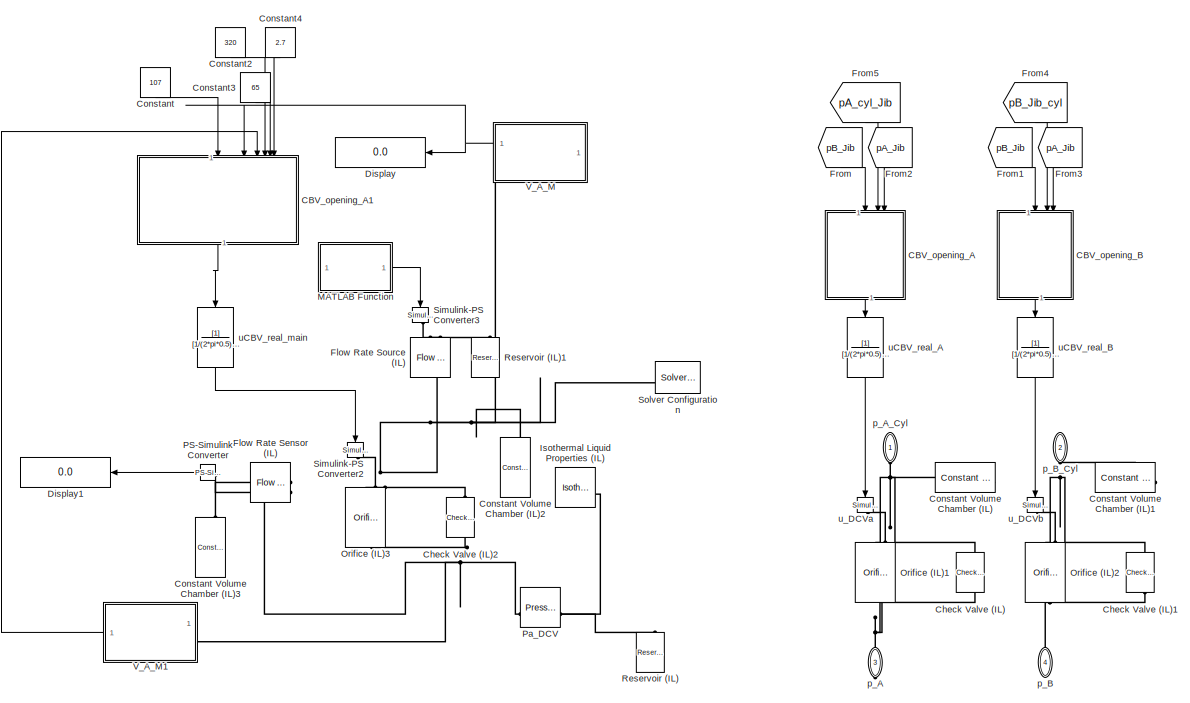
[diagram: Jib Hydraulic cylinder/CBV Jib - part 1/2, left side, full height]
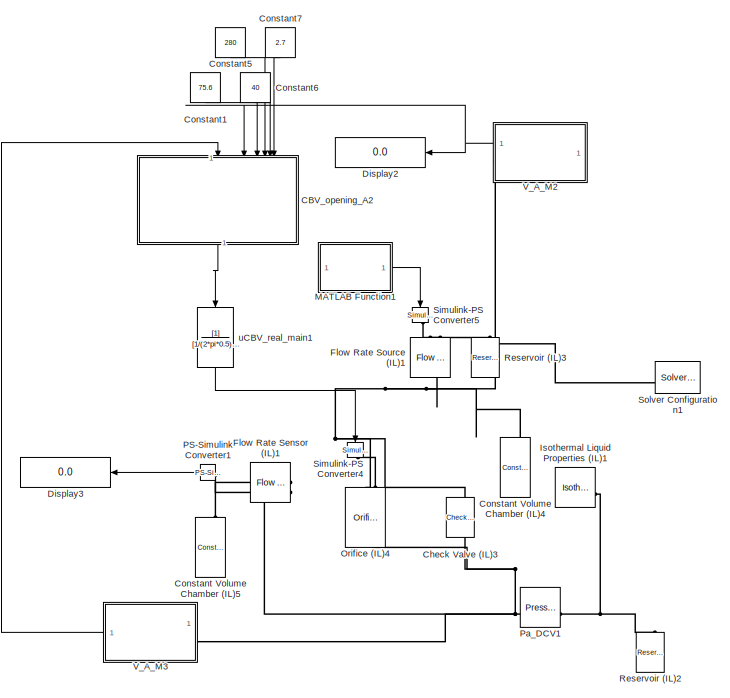
[diagram: Jib Hydraulic cylinder/CBV Jib - part 2/2, right side, full height]
BLOCK [SubSystem] Jib Hydraulic cylinder/CBV Jib
  PortSchema = {"entries":[{"content":{"sides":[{"content":{},"type":"ConnectorPlacement.EquallySpacedRectSide","uuid":"a9f0eaf7-f148-41af-883d-8aedf66e3fe7"},{"content":{"side":"RIGHT"},"type":"ConnectorPlacement.EquallySpacedRectSide","uuid":"b7d06a0e-217c-4594-9653-b1704beb7fcf"},{"content":{"connectorIds":["LConn1","LConn2"],"side":"TOP"},"type":"ConnectorPlacement.EquallySpacedRectSide","uuid":"8b0b6e4d-897...<+372ch>
BLOCK [SubSystem] Jib Hydraulic cylinder/CBV Jib/CBV_opening_A
  ErrorFcn = Stateflow.Translate.translate
  NameLocation = right
  PermitHierarchicalResolution = ExplicitOnly
  SFBlockType = MATLAB Function
  TreatAsAtomicUnit = on
BLOCK [Demux] Jib Hydraulic cylinder/CBV Jib/CBV_opening_A/ Demux 
  Outputs = 1
BLOCK [S-Function] Jib Hydraulic cylinder/CBV Jib/CBV_opening_A/ SFunction 
  EnableBusSupport = on
  FunctionName = sf_sfun
  Parameters = alpha,dp_open_Jib_A,pCr_Jib_A
  PortCounts = [3 2]
  SFcnIsStateOwnerBlock = off
  SFunctionDeploymentMode = off
  Tag = Stateflow S-Function 2
BLOCK [Terminator] Jib Hydraulic cylinder/CBV Jib/CBV_opening_A/ Terminator 
BLOCK [Inport] Jib Hydraulic cylinder/CBV Jib/CBV_opening_A/pA
  Port = 3
BLOCK [Inport] Jib Hydraulic cylinder/CBV Jib/CBV_opening_A/pAm
  Port = 2
BLOCK [Inport] Jib Hydraulic cylinder/CBV Jib/CBV_opening_A/pB
BLOCK [Outport] Jib Hydraulic cylinder/CBV Jib/CBV_opening_A/uCBV
BLOCK [SubSystem] Jib Hydraulic cylinder/CBV Jib/CBV_opening_A1
  Commented = on
  ErrorFcn = Stateflow.Translate.translate
  NameLocation = right
  PermitHierarchicalResolution = ExplicitOnly
  SFBlockType = MATLAB Function
  TreatAsAtomicUnit = on
BLOCK [Demux] Jib Hydraulic cylinder/CBV Jib/CBV_opening_A1/ Demux 
  Outputs = 1
BLOCK [S-Function] Jib Hydraulic cylinder/CBV Jib/CBV_opening_A1/ SFunction 
  EnableBusSupport = on
  FunctionName = sf_sfun
  PortCounts = [6 2]
  SFcnIsStateOwnerBlock = off
  SFunctionDeploymentMode = off
  Tag = Stateflow S-Function 13
BLOCK [Terminator] Jib Hydraulic cylinder/CBV Jib/CBV_opening_A1/ Terminator 
BLOCK [Inport] Jib Hydraulic cylinder/CBV Jib/CBV_opening_A1/alpha
  Port = 6
BLOCK [Inport] Jib Hydraulic cylinder/CBV Jib/CBV_opening_A1/dp_open_Jib_A
  Port = 5
BLOCK [Inport] Jib Hydraulic cylinder/CBV Jib/CBV_opening_A1/pA
  Port = 3
BLOCK [Inport] Jib Hydraulic cylinder/CBV Jib/CBV_opening_A1/pAm
  Port = 2
BLOCK [Inport] Jib Hydraulic cylinder/CBV Jib/CBV_opening_A1/pB
BLOCK [Inport] Jib Hydraulic cylinder/CBV Jib/CBV_opening_A1/pCr_Jib_A
  Port = 4
BLOCK [Outport] Jib Hydraulic cylinder/CBV Jib/CBV_opening_A1/uCBV
BLOCK [SubSystem] Jib Hydraulic cylinder/CBV Jib/CBV_opening_A2
  Commented = on
  ErrorFcn = Stateflow.Translate.translate
  NameLocation = right
  PermitHierarchicalResolution = ExplicitOnly
  SFBlockType = MATLAB Function
  TreatAsAtomicUnit = on
BLOCK [Demux] Jib Hydraulic cylinder/CBV Jib/CBV_opening_A2/ Demux 
  Outputs = 1
BLOCK [S-Function] Jib Hydraulic cylinder/CBV Jib/CBV_opening_A2/ SFunction 
  EnableBusSupport = on
  FunctionName = sf_sfun
  PortCounts = [6 2]
  SFcnIsStateOwnerBlock = off
  SFunctionDeploymentMode = off
  Tag = Stateflow S-Function 15
BLOCK [Terminator] Jib Hydraulic cylinder/CBV Jib/CBV_opening_A2/ Terminator 
BLOCK [Inport] Jib Hydraulic cylinder/CBV Jib/CBV_opening_A2/alpha
  Port = 6
BLOCK [Inport] Jib Hydraulic cylinder/CBV Jib/CBV_opening_A2/dp_open_Jib_B
  Port = 5
BLOCK [Inport] Jib Hydraulic cylinder/CBV Jib/CBV_opening_A2/pA
  Port = 3
BLOCK [Inport] Jib Hydraulic cylinder/CBV Jib/CBV_opening_A2/pB
BLOCK [Inport] Jib Hydraulic cylinder/CBV Jib/CBV_opening_A2/pBm
  Port = 2
BLOCK [Inport] Jib Hydraulic cylinder/CBV Jib/CBV_opening_A2/pCr_Jib_B
  Port = 4
BLOCK [Outport] Jib Hydraulic cylinder/CBV Jib/CBV_opening_A2/uCBV
BLOCK [SubSystem] Jib Hydraulic cylinder/CBV Jib/CBV_opening_B
  ErrorFcn = Stateflow.Translate.translate
  NameLocation = right
  PermitHierarchicalResolution = ExplicitOnly
  SFBlockType = MATLAB Function
  TreatAsAtomicUnit = on
BLOCK [Demux] Jib Hydraulic cylinder/CBV Jib/CBV_opening_B/ Demux 
  Outputs = 1
BLOCK [S-Function] Jib Hydraulic cylinder/CBV Jib/CBV_opening_B/ SFunction 
  EnableBusSupport = on
  FunctionName = sf_sfun
  Parameters = alpha,dp_open_Jib_B,pCr_Jib_B
  PortCounts = [3 2]
  SFcnIsStateOwnerBlock = off
  SFunctionDeploymentMode = off
  Tag = Stateflow S-Function 1
BLOCK [Terminator] Jib Hydraulic cylinder/CBV Jib/CBV_opening_B/ Terminator 
BLOCK [Inport] Jib Hydraulic cylinder/CBV Jib/CBV_opening_B/pA
  Port = 3
BLOCK [Inport] Jib Hydraulic cylinder/CBV Jib/CBV_opening_B/pB
BLOCK [Inport] Jib Hydraulic cylinder/CBV Jib/CBV_opening_B/pBm
  Port = 2
BLOCK [Outport] Jib Hydraulic cylinder/CBV Jib/CBV_opening_B/uCBV
BLOCK [Reference] Jib Hydraulic cylinder/CBV Jib/Check Valve (IL)  REF=SimscapeFluids_lib/Isothermal Liquid/Valves & Orifices/Directional Control
Valves/Check Valve (IL)
  NameLocation = right
  SourceBlock = SimscapeFluids_lib/Isothermal Liquid/Valves & Orifices/Directional Control\nValves/Check Valve (IL)
  SourceType = Check Valve (IL)
BLOCK [Reference] Jib Hydraulic cylinder/CBV Jib/Check Valve (IL)1  REF=SimscapeFluids_lib/Isothermal Liquid/Valves & Orifices/Directional Control
Valves/Check Valve (IL)
  NameLocation = right
  SourceBlock = SimscapeFluids_lib/Isothermal Liquid/Valves & Orifices/Directional Control\nValves/Check Valve (IL)
  SourceType = Check Valve (IL)
BLOCK [Reference] Jib Hydraulic cylinder/CBV Jib/Check Valve (IL)2  REF=SimscapeFluids_lib/Isothermal Liquid/Valves & Orifices/Directional Control
Valves/Check Valve (IL)
  Commented = on
  NameLocation = right
  SourceBlock = SimscapeFluids_lib/Isothermal Liquid/Valves & Orifices/Directional Control\nValves/Check Valve (IL)
  SourceType = Check Valve (IL)
BLOCK [Reference] Jib Hydraulic cylinder/CBV Jib/Check Valve (IL)3  REF=SimscapeFluids_lib/Isothermal Liquid/Valves & Orifices/Directional Control
Valves/Check Valve (IL)
  Commented = on
  NameLocation = right
  SourceBlock = SimscapeFluids_lib/Isothermal Liquid/Valves & Orifices/Directional Control\nValves/Check Valve (IL)
  SourceType = Check Valve (IL)
BLOCK [Constant] Jib Hydraulic cylinder/CBV Jib/Constant
  Commented = on
  NameLocation = left
  Value = 107
BLOCK [Reference] Jib Hydraulic cylinder/CBV Jib/Constant Volume Chamber (IL)  REF=fl_lib/Isothermal Liquid/Elements/Constant Volume
Chamber (IL)
  NameLocation = top
  SourceBlock = fl_lib/Isothermal Liquid/Elements/Constant Volume\nChamber (IL)
  SourceType = Constant Volume\nChamber (IL)
BLOCK [Reference] Jib Hydraulic cylinder/CBV Jib/Constant Volume Chamber (IL)1  REF=fl_lib/Isothermal Liquid/Elements/Constant Volume
Chamber (IL)
  NameLocation = top
  SourceBlock = fl_lib/Isothermal Liquid/Elements/Constant Volume\nChamber (IL)
  SourceType = Constant Volume\nChamber (IL)
BLOCK [Reference] Jib Hydraulic cylinder/CBV Jib/Constant Volume Chamber (IL)2  REF=fl_lib/Isothermal Liquid/Elements/Constant Volume
Chamber (IL)
  Commented = on
  NameLocation = right
  SourceBlock = fl_lib/Isothermal Liquid/Elements/Constant Volume\nChamber (IL)
  SourceType = Constant Volume\nChamber (IL)
BLOCK [Reference] Jib Hydraulic cylinder/CBV Jib/Constant Volume Chamber (IL)3  REF=fl_lib/Isothermal Liquid/Elements/Constant Volume
Chamber (IL)
  Commented = on
  NameLocation = right
  SourceBlock = fl_lib/Isothermal Liquid/Elements/Constant Volume\nChamber (IL)
  SourceType = Constant Volume\nChamber (IL)
BLOCK [Reference] Jib Hydraulic cylinder/CBV Jib/Constant Volume Chamber (IL)4  REF=fl_lib/Isothermal Liquid/Elements/Constant Volume
Chamber (IL)
  Commented = on
  NameLocation = right
  SourceBlock = fl_lib/Isothermal Liquid/Elements/Constant Volume\nChamber (IL)
  SourceType = Constant Volume\nChamber (IL)
BLOCK [Reference] Jib Hydraulic cylinder/CBV Jib/Constant Volume Chamber (IL)5  REF=fl_lib/Isothermal Liquid/Elements/Constant Volume
Chamber (IL)
  Commented = on
  NameLocation = right
  SourceBlock = fl_lib/Isothermal Liquid/Elements/Constant Volume\nChamber (IL)
  SourceType = Constant Volume\nChamber (IL)
BLOCK [Constant] Jib Hydraulic cylinder/CBV Jib/Constant1
  Commented = on
  NameLocation = left
  Value = 75.6
BLOCK [Constant] Jib Hydraulic cylinder/CBV Jib/Constant2
  Commented = on
  NameLocation = left
  Value = 320
BLOCK [Constant] Jib Hydraulic cylinder/CBV Jib/Constant3
  Commented = on
  NameLocation = left
  Value = 65
BLOCK [Constant] Jib Hydraulic cylinder/CBV Jib/Constant4
  Commented = on
  NameLocation = left
  Value = 2.7
BLOCK [Constant] Jib Hydraulic cylinder/CBV Jib/Constant5
  Commented = on
  NameLocation = left
  Value = 280
BLOCK [Constant] Jib Hydraulic cylinder/CBV Jib/Constant6
  Commented = on
  NameLocation = left
  Value = 40
BLOCK [Constant] Jib Hydraulic cylinder/CBV Jib/Constant7
  Commented = on
  NameLocation = left
  Value = 2.7
BLOCK [Display] Jib Hydraulic cylinder/CBV Jib/Display
  Commented = on
  Decimation = 1
  NameLocation = top
BLOCK [Display] Jib Hydraulic cylinder/CBV Jib/Display1
  Commented = on
  Decimation = 1
  NameLocation = top
BLOCK [Display] Jib Hydraulic cylinder/CBV Jib/Display2
  Commented = on
  Decimation = 1
  NameLocation = top
BLOCK [Display] Jib Hydraulic cylinder/CBV Jib/Display3
  Commented = on
  Decimation = 1
  NameLocation = top
BLOCK [Reference] Jib Hydraulic cylinder/CBV Jib/Flow Rate Sensor (IL)  REF=fl_lib/Isothermal Liquid/Sensors/Flow Rate Sensor
(IL)
  Commented = on
  NameLocation = top
  SourceBlock = fl_lib/Isothermal Liquid/Sensors/Flow Rate Sensor\n(IL)
  SourceType = Flow Rate Sensor\n(IL)
BLOCK [Reference] Jib Hydraulic cylinder/CBV Jib/Flow Rate Sensor (IL)1  REF=fl_lib/Isothermal Liquid/Sensors/Flow Rate Sensor
(IL)
  Commented = on
  NameLocation = top
  SourceBlock = fl_lib/Isothermal Liquid/Sensors/Flow Rate Sensor\n(IL)
  SourceType = Flow Rate Sensor\n(IL)
BLOCK [Reference] Jib Hydraulic cylinder/CBV Jib/Flow Rate Source (IL)  REF=fl_lib/Isothermal Liquid/Sources/Flow Rate Source
(IL)
  Commented = on
  NameLocation = left
  SourceBlock = fl_lib/Isothermal Liquid/Sources/Flow Rate Source\n(IL)
  SourceType = Flow Rate Source\n(IL)
BLOCK [Reference] Jib Hydraulic cylinder/CBV Jib/Flow Rate Source (IL)1  REF=fl_lib/Isothermal Liquid/Sources/Flow Rate Source
(IL)
  Commented = on
  NameLocation = left
  SourceBlock = fl_lib/Isothermal Liquid/Sources/Flow Rate Source\n(IL)
  SourceType = Flow Rate Source\n(IL)
BLOCK [From] Jib Hydraulic cylinder/CBV Jib/From
  GotoTag = pB_Jib
  NameLocation = right
  TagVisibility = global
BLOCK [From] Jib Hydraulic cylinder/CBV Jib/From1
  GotoTag = pB_Jib
  NameLocation = right
  TagVisibility = global
BLOCK [From] Jib Hydraulic cylinder/CBV Jib/From2
  GotoTag = pA_Jib
  NameLocation = left
  TagVisibility = global
BLOCK [From] Jib Hydraulic cylinder/CBV Jib/From3
  GotoTag = pA_Jib
  NameLocation = left
  TagVisibility = global
BLOCK [From] Jib Hydraulic cylinder/CBV Jib/From4
  GotoTag = pB_Jib_cyl
  NameLocation = left
  TagVisibility = global
BLOCK [From] Jib Hydraulic cylinder/CBV Jib/From5
  GotoTag = pA_cyl_Jib
  NameLocation = left
  TagVisibility = global
BLOCK [Reference] Jib Hydraulic cylinder/CBV Jib/Isothermal Liquid Properties (IL)  REF=fl_lib/Isothermal Liquid/Utilities/Isothermal Liquid
Properties (IL)
  Commented = on
  SourceBlock = fl_lib/Isothermal Liquid/Utilities/Isothermal Liquid\nProperties (IL)
  SourceType = Isothermal Liquid\nProperties (IL)
BLOCK [Reference] Jib Hydraulic cylinder/CBV Jib/Isothermal Liquid Properties (IL)1  REF=fl_lib/Isothermal Liquid/Utilities/Isothermal Liquid
Properties (IL)
  Commented = on
  SourceBlock = fl_lib/Isothermal Liquid/Utilities/Isothermal Liquid\nProperties (IL)
  SourceType = Isothermal Liquid\nProperties (IL)
BLOCK [SubSystem] Jib Hydraulic cylinder/CBV Jib/MATLAB Function
  Commented = on
  ErrorFcn = Stateflow.Translate.translate
  PermitHierarchicalResolution = ExplicitOnly
  SFBlockType = MATLAB Function
  TreatAsAtomicUnit = on
BLOCK [Demux] Jib Hydraulic cylinder/CBV Jib/MATLAB Function/ Demux 
  Outputs = 1
BLOCK [Ground] Jib Hydraulic cylinder/CBV Jib/MATLAB Function/ Ground 
BLOCK [S-Function] Jib Hydraulic cylinder/CBV Jib/MATLAB Function/ SFunction 
  EnableBusSupport = on
  FunctionName = sf_sfun
  PortCounts = [1 2]
  SFcnIsStateOwnerBlock = off
  SFunctionDeploymentMode = off
  Tag = Stateflow S-Function 14
BLOCK [Terminator] Jib Hydraulic cylinder/CBV Jib/MATLAB Function/ Terminator 
BLOCK [Outport] Jib Hydraulic cylinder/CBV Jib/MATLAB Function/Q
BLOCK [SubSystem] Jib Hydraulic cylinder/CBV Jib/MATLAB Function1
  Commented = on
  ErrorFcn = Stateflow.Translate.translate
  PermitHierarchicalResolution = ExplicitOnly
  SFBlockType = MATLAB Function
  TreatAsAtomicUnit = on
BLOCK [Demux] Jib Hydraulic cylinder/CBV Jib/MATLAB Function1/ Demux 
  Outputs = 1
BLOCK [Ground] Jib Hydraulic cylinder/CBV Jib/MATLAB Function1/ Ground 
BLOCK [S-Function] Jib Hydraulic cylinder/CBV Jib/MATLAB Function1/ SFunction 
  EnableBusSupport = on
  FunctionName = sf_sfun
  PortCounts = [1 2]
  SFcnIsStateOwnerBlock = off
  SFunctionDeploymentMode = off
  Tag = Stateflow S-Function 16
BLOCK [Terminator] Jib Hydraulic cylinder/CBV Jib/MATLAB Function1/ Terminator 
BLOCK [Outport] Jib Hydraulic cylinder/CBV Jib/MATLAB Function1/Q
BLOCK [Reference] Jib Hydraulic cylinder/CBV Jib/Orifice (IL)1  REF=SimscapeFluids_lib/Isothermal Liquid/Valves & Orifices/Orifices/Orifice (IL)
  NameLocation = left
  SourceBlock = SimscapeFluids_lib/Isothermal Liquid/Valves & Orifices/Orifices/Orifice (IL)
  SourceType = Orifice (IL)
BLOCK [Reference] Jib Hydraulic cylinder/CBV Jib/Orifice (IL)2  REF=SimscapeFluids_lib/Isothermal Liquid/Valves & Orifices/Orifices/Orifice (IL)
  NameLocation = left
  SourceBlock = SimscapeFluids_lib/Isothermal Liquid/Valves & Orifices/Orifices/Orifice (IL)
  SourceType = Orifice (IL)
BLOCK [Reference] Jib Hydraulic cylinder/CBV Jib/Orifice (IL)3  REF=SimscapeFluids_lib/Isothermal Liquid/Valves & Orifices/Orifices/Orifice (IL)
  Commented = on
  NameLocation = left
  SourceBlock = SimscapeFluids_lib/Isothermal Liquid/Valves & Orifices/Orifices/Orifice (IL)
  SourceType = Orifice (IL)
BLOCK [Reference] Jib Hydraulic cylinder/CBV Jib/Orifice (IL)4  REF=SimscapeFluids_lib/Isothermal Liquid/Valves & Orifices/Orifices/Orifice (IL)
  Commented = on
  NameLocation = left
  SourceBlock = SimscapeFluids_lib/Isothermal Liquid/Valves & Orifices/Orifices/Orifice (IL)
  SourceType = Orifice (IL)
BLOCK [Reference] Jib Hydraulic cylinder/CBV Jib/PS-Simulink Converter  REF=nesl_utility/PS-Simulink
Converter
  Commented = on
  NameLocation = top
  SourceBlock = nesl_utility/PS-Simulink\nConverter
  SourceType = PS-Simulink\nConverter
BLOCK [Reference] Jib Hydraulic cylinder/CBV Jib/PS-Simulink Converter1  REF=nesl_utility/PS-Simulink
Converter
  Commented = on
  NameLocation = top
  SourceBlock = nesl_utility/PS-Simulink\nConverter
  SourceType = PS-Simulink\nConverter
BLOCK [Reference] Jib Hydraulic cylinder/CBV Jib/Pa_DCV  REF=fl_lib/Isothermal Liquid/Sources/Pressure Source (IL)
  Commented = on
  SourceBlock = fl_lib/Isothermal Liquid/Sources/Pressure Source (IL)
  SourceType = Pressure Source (IL)
BLOCK [Reference] Jib Hydraulic cylinder/CBV Jib/Pa_DCV1  REF=fl_lib/Isothermal Liquid/Sources/Pressure Source (IL)
  Commented = on
  SourceBlock = fl_lib/Isothermal Liquid/Sources/Pressure Source (IL)
  SourceType = Pressure Source (IL)
BLOCK [Reference] Jib Hydraulic cylinder/CBV Jib/Reservoir (IL)  REF=fl_lib/Isothermal Liquid/Elements/Reservoir (IL)
  Commented = on
  NameLocation = right
  SourceBlock = fl_lib/Isothermal Liquid/Elements/Reservoir (IL)
  SourceType = Reservoir (IL)
BLOCK [Reference] Jib Hydraulic cylinder/CBV Jib/Reservoir (IL)1  REF=fl_lib/Isothermal Liquid/Elements/Reservoir (IL)
  Commented = on
  NameLocation = right
  SourceBlock = fl_lib/Isothermal Liquid/Elements/Reservoir (IL)
  SourceType = Reservoir (IL)
BLOCK [Reference] Jib Hydraulic cylinder/CBV Jib/Reservoir (IL)2  REF=fl_lib/Isothermal Liquid/Elements/Reservoir (IL)
  Commented = on
  NameLocation = right
  SourceBlock = fl_lib/Isothermal Liquid/Elements/Reservoir (IL)
  SourceType = Reservoir (IL)
BLOCK [Reference] Jib Hydraulic cylinder/CBV Jib/Reservoir (IL)3  REF=fl_lib/Isothermal Liquid/Elements/Reservoir (IL)
  Commented = on
  NameLocation = right
  SourceBlock = fl_lib/Isothermal Liquid/Elements/Reservoir (IL)
  SourceType = Reservoir (IL)
BLOCK [Reference] Jib Hydraulic cylinder/CBV Jib/Simulink-PS Converter2  REF=nesl_utility/Simulink-PS
Converter
  Commented = on
  NameLocation = left
  SourceBlock = nesl_utility/Simulink-PS\nConverter
  SourceType = Simulink-PS\nConverter
BLOCK [Reference] Jib Hydraulic cylinder/CBV Jib/Simulink-PS Converter3  REF=nesl_utility/Simulink-PS
Converter
  Commented = on
  NameLocation = left
  SourceBlock = nesl_utility/Simulink-PS\nConverter
  SourceType = Simulink-PS\nConverter
BLOCK [Reference] Jib Hydraulic cylinder/CBV Jib/Simulink-PS Converter4  REF=nesl_utility/Simulink-PS
Converter
  Commented = on
  NameLocation = left
  SourceBlock = nesl_utility/Simulink-PS\nConverter
  SourceType = Simulink-PS\nConverter
BLOCK [Reference] Jib Hydraulic cylinder/CBV Jib/Simulink-PS Converter5  REF=nesl_utility/Simulink-PS
Converter
  Commented = on
  NameLocation = left
  SourceBlock = nesl_utility/Simulink-PS\nConverter
  SourceType = Simulink-PS\nConverter
BLOCK [Reference] Jib Hydraulic cylinder/CBV Jib/Solver Configuration  REF=nesl_utility/Solver
Configuration
  Commented = on
  NameLocation = top
  SourceBlock = nesl_utility/Solver\nConfiguration
  SourceType = Solver\nConfiguration
BLOCK [Reference] Jib Hydraulic cylinder/CBV Jib/Solver Configuration1  REF=nesl_utility/Solver
Configuration
  Commented = on
  NameLocation = top
  SourceBlock = nesl_utility/Solver\nConfiguration
  SourceType = Solver\nConfiguration
BLOCK [SubSystem] Jib Hydraulic cylinder/CBV Jib/V_A_M
  Commented = on
  NameLocation = top
  PortSchema = {"entries":[{"content":{"sides":[{"content":{},"type":"ConnectorPlacement.EquallySpacedRectSide","uuid":"4d44c916-36b4-4891-95d7-b71f690fb118"},{"content":{"connectorIds":["Out1"],"side":"RIGHT"},"type":"ConnectorPlacement.EquallySpacedRectSide","uuid":"b0ccc4ef-865c-4258-9950-e2b42fb6e66f"},{"content":{"side":"TOP"},"type":"ConnectorPlacement.EquallySpacedRectSide","uuid":"000783d9-e516-4133-ab05...<+352ch>  <repeated x3 — deduplicated; at blocks: V_A_M, V_A_M2, V_A_M1>
BLOCK [PMIOPort] Jib Hydraulic cylinder/CBV Jib/V_A_M/Connection Port
  Side = Right
BLOCK [Reference] Jib Hydraulic cylinder/CBV Jib/V_A_M/Constant Volume Chamber (IL)  REF=fl_lib/Isothermal Liquid/Elements/Constant Volume
Chamber (IL)
  NameLocation = right
  SourceBlock = fl_lib/Isothermal Liquid/Elements/Constant Volume\nChamber (IL)
  SourceType = Constant Volume\nChamber (IL)
BLOCK [Gain] Jib Hydraulic cylinder/CBV Jib/V_A_M/Gain
  Gain = 1/10^5
BLOCK [Reference] Jib Hydraulic cylinder/CBV Jib/V_A_M/PS-Simulink Converter  REF=nesl_utility/PS-Simulink
Converter
  SourceBlock = nesl_utility/PS-Simulink\nConverter
  SourceType = PS-Simulink\nConverter
BLOCK [Reference] Jib Hydraulic cylinder/CBV Jib/V_A_M/Pressure Sensor (IL)  REF=fl_lib/Isothermal Liquid/Sensors/Pressure Sensor (IL)
  SourceBlock = fl_lib/Isothermal Liquid/Sensors/Pressure Sensor (IL)
  SourceType = Pressure Sensor (IL)
BLOCK [Outport] Jib Hydraulic cylinder/CBV Jib/V_A_M/pAm
BLOCK [SubSystem] Jib Hydraulic cylinder/CBV Jib/V_A_M1
  Commented = on
  NameLocation = top
BLOCK [PMIOPort] Jib Hydraulic cylinder/CBV Jib/V_A_M1/Connection Port
  Side = Left
BLOCK [Reference] Jib Hydraulic cylinder/CBV Jib/V_A_M1/Constant Volume Chamber (IL)  REF=fl_lib/Isothermal Liquid/Elements/Constant Volume
Chamber (IL)
  NameLocation = right
  SourceBlock = fl_lib/Isothermal Liquid/Elements/Constant Volume\nChamber (IL)
  SourceType = Constant Volume\nChamber (IL)
BLOCK [Gain] Jib Hydraulic cylinder/CBV Jib/V_A_M1/Gain
  Gain = 1/10^5
BLOCK [Reference] Jib Hydraulic cylinder/CBV Jib/V_A_M1/PS-Simulink Converter  REF=nesl_utility/PS-Simulink
Converter
  SourceBlock = nesl_utility/PS-Simulink\nConverter
  SourceType = PS-Simulink\nConverter
BLOCK [Reference] Jib Hydraulic cylinder/CBV Jib/V_A_M1/Pressure Sensor (IL)  REF=fl_lib/Isothermal Liquid/Sensors/Pressure Sensor (IL)
  SourceBlock = fl_lib/Isothermal Liquid/Sensors/Pressure Sensor (IL)
  SourceType = Pressure Sensor (IL)
BLOCK [Outport] Jib Hydraulic cylinder/CBV Jib/V_A_M1/pAm
BLOCK [SubSystem] Jib Hydraulic cylinder/CBV Jib/V_A_M2
  Commented = on
  NameLocation = top
BLOCK [PMIOPort] Jib Hydraulic cylinder/CBV Jib/V_A_M2/Connection Port
  Side = Right
BLOCK [Reference] Jib Hydraulic cylinder/CBV Jib/V_A_M2/Constant Volume Chamber (IL)  REF=fl_lib/Isothermal Liquid/Elements/Constant Volume
Chamber (IL)
  NameLocation = right
  SourceBlock = fl_lib/Isothermal Liquid/Elements/Constant Volume\nChamber (IL)
  SourceType = Constant Volume\nChamber (IL)
BLOCK [Gain] Jib Hydraulic cylinder/CBV Jib/V_A_M2/Gain
  Gain = 1/10^5
BLOCK [Reference] Jib Hydraulic cylinder/CBV Jib/V_A_M2/PS-Simulink Converter  REF=nesl_utility/PS-Simulink
Converter
  SourceBlock = nesl_utility/PS-Simulink\nConverter
  SourceType = PS-Simulink\nConverter
BLOCK [Reference] Jib Hydraulic cylinder/CBV Jib/V_A_M2/Pressure Sensor (IL)  REF=fl_lib/Isothermal Liquid/Sensors/Pressure Sensor (IL)
  SourceBlock = fl_lib/Isothermal Liquid/Sensors/Pressure Sensor (IL)
  SourceType = Pressure Sensor (IL)
BLOCK [Outport] Jib Hydraulic cylinder/CBV Jib/V_A_M2/pAm
BLOCK [SubSystem] Jib Hydraulic cylinder/CBV Jib/V_A_M3
  Commented = on
  NameLocation = top
BLOCK [PMIOPort] Jib Hydraulic cylinder/CBV Jib/V_A_M3/Connection Port
  Side = Left
BLOCK [Reference] Jib Hydraulic cylinder/CBV Jib/V_A_M3/Constant Volume Chamber (IL)  REF=fl_lib/Isothermal Liquid/Elements/Constant Volume
Chamber (IL)
  NameLocation = right
  SourceBlock = fl_lib/Isothermal Liquid/Elements/Constant Volume\nChamber (IL)
  SourceType = Constant Volume\nChamber (IL)
BLOCK [Gain] Jib Hydraulic cylinder/CBV Jib/V_A_M3/Gain
  Gain = 1/10^5
BLOCK [Reference] Jib Hydraulic cylinder/CBV Jib/V_A_M3/PS-Simulink Converter  REF=nesl_utility/PS-Simulink
Converter
  SourceBlock = nesl_utility/PS-Simulink\nConverter
  SourceType = PS-Simulink\nConverter
BLOCK [Reference] Jib Hydraulic cylinder/CBV Jib/V_A_M3/Pressure Sensor (IL)  REF=fl_lib/Isothermal Liquid/Sensors/Pressure Sensor (IL)
  SourceBlock = fl_lib/Isothermal Liquid/Sensors/Pressure Sensor (IL)
  SourceType = Pressure Sensor (IL)
BLOCK [Outport] Jib Hydraulic cylinder/CBV Jib/V_A_M3/pAm
BLOCK [PMIOPort] Jib Hydraulic cylinder/CBV Jib/p_A
  NameLocation = right
  Port = 3
  Side = Right
BLOCK [PMIOPort] Jib Hydraulic cylinder/CBV Jib/p_A_Cyl
  NameLocation = right
  Side = Left
BLOCK [PMIOPort] Jib Hydraulic cylinder/CBV Jib/p_B
  NameLocation = right
  Port = 4
  Side = Right
BLOCK [PMIOPort] Jib Hydraulic cylinder/CBV Jib/p_B_Cyl
  NameLocation = right
  Port = 2
  Side = Left
BLOCK [TransferFcn] Jib Hydraulic cylinder/CBV Jib/uCBV_real_A
  Denominator = [1/(2*pi*0.5) 1]
  NameLocation = right
BLOCK [TransferFcn] Jib Hydraulic cylinder/CBV Jib/uCBV_real_B
  Denominator = [1/(2*pi*0.5) 1]
  NameLocation = right
BLOCK [TransferFcn] Jib Hydraulic cylinder/CBV Jib/uCBV_real_main
  Commented = on
  Denominator = [1/(2*pi*0.5) 1]
  NameLocation = right
BLOCK [TransferFcn] Jib Hydraulic cylinder/CBV Jib/uCBV_real_main1
  Commented = on
  Denominator = [1/(2*pi*0.5) 1]
  NameLocation = right
BLOCK [Reference] Jib Hydraulic cylinder/CBV Jib/u_DCVa  REF=nesl_utility/Simulink-PS
Converter
  NameLocation = left
  SourceBlock = nesl_utility/Simulink-PS\nConverter
  SourceType = Simulink-PS\nConverter
BLOCK [Reference] Jib Hydraulic cylinder/CBV Jib/u_DCVb  REF=nesl_utility/Simulink-PS
Converter
  NameLocation = left
  SourceBlock = nesl_utility/Simulink-PS\nConverter
  SourceType = Simulink-PS\nConverter
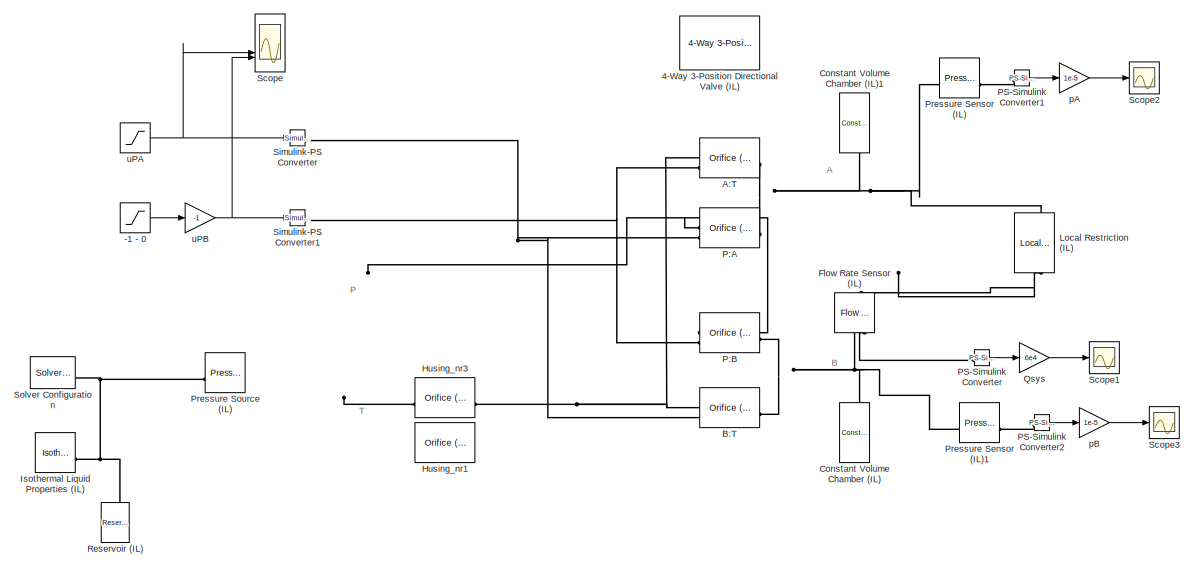
[diagram: Jib Hydraulic cylinder/DCV Jib - part 1/4, top left region]
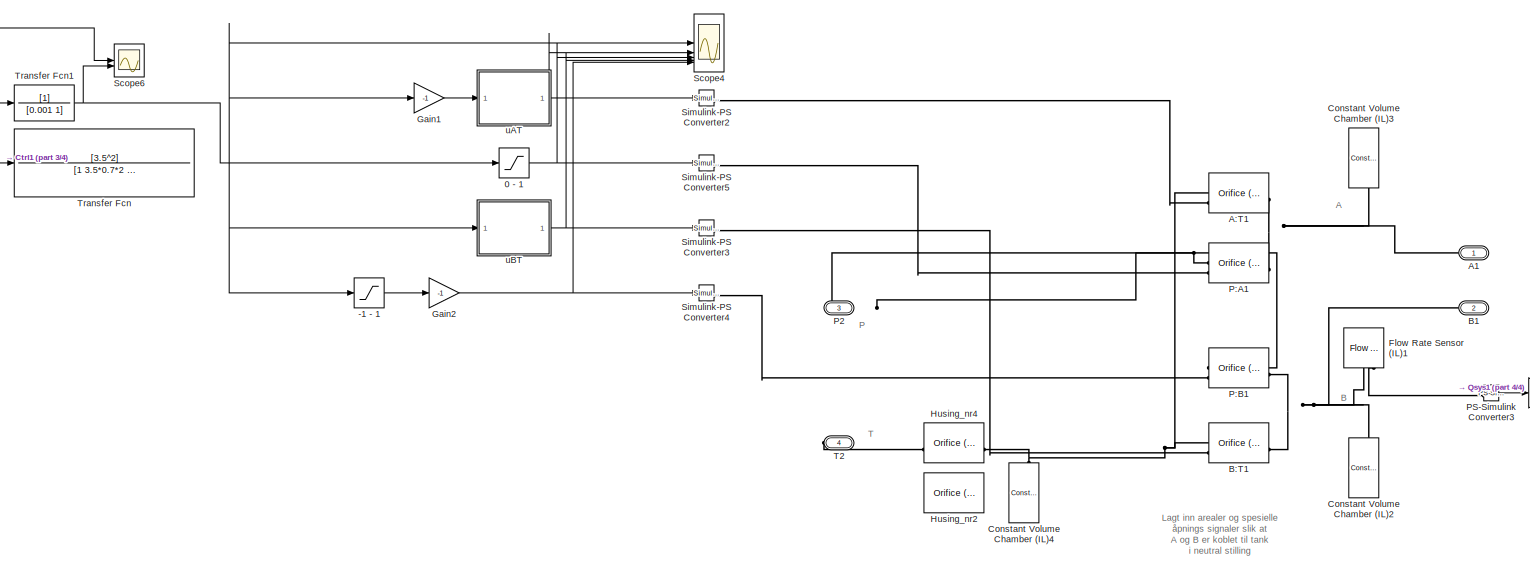
[diagram: Jib Hydraulic cylinder/DCV Jib - part 2/4, full width, bottom band]
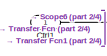
[diagram: Jib Hydraulic cylinder/DCV Jib - part 3/4, bottom left region]
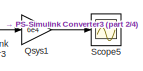
[diagram: Jib Hydraulic cylinder/DCV Jib - part 4/4, bottom right region]
BLOCK [SubSystem] Jib Hydraulic cylinder/DCV Jib
  PortSchema = {"entries":[{"content":{"sides":[{"content":{"connectorIds":["In1"]},"type":"ConnectorPlacement.EquallySpacedRectSide","uuid":"6993dbde-6cba-46a2-b1d5-f1047b136426"},{"content":{"side":"RIGHT"},"type":"ConnectorPlacement.EquallySpacedRectSide","uuid":"3ad9b2a3-36be-44b7-a33f-fa48c865a093"},{"content":{"connectorIds":["LConn1","LConn2"],"side":"TOP"},"type":"ConnectorPlacement.EquallySpacedRectSide...<+394ch>  <repeated x3 — deduplicated; at blocks: DCV Jib, Main DCV, Subsystem2>
BLOCK [Saturate] Jib Hydraulic cylinder/DCV Jib/-1 - 0
  Commented = on
  LowerLimit = -1
  UpperLimit = 0
BLOCK [Saturate] Jib Hydraulic cylinder/DCV Jib/-1 - 1
  LowerLimit = -1
  UpperLimit = 0
BLOCK [Saturate] Jib Hydraulic cylinder/DCV Jib/0 - 1
  LowerLimit = 0
  UpperLimit = 1
BLOCK [Reference] Jib Hydraulic cylinder/DCV Jib/4-Way 3-Position Directional Valve (IL)  REF=SimscapeFluids_lib/Isothermal Liquid/Valves & Orifices/Directional Control
Valves/4-Way 3-Position
Directional Valve
(IL)
  Commented = on
  SourceBlock = SimscapeFluids_lib/Isothermal Liquid/Valves & Orifices/Directional Control\nValves/4-Way 3-Position\nDirectional Valve\n(IL)
  SourceType = 4-Way 3-Position\nDirectional Valve\n(IL)
BLOCK [PMIOPort] Jib Hydraulic cylinder/DCV Jib/A1
  NameLocation = top
  Side = Left
BLOCK [Reference] Jib Hydraulic cylinder/DCV Jib/A:T  REF=SimscapeFluids_lib/Isothermal Liquid/Valves & Orifices/Orifices/Orifice (IL)
  Commented = on
  SourceBlock = SimscapeFluids_lib/Isothermal Liquid/Valves & Orifices/Orifices/Orifice (IL)
  SourceType = Orifice (IL)
BLOCK [Reference] Jib Hydraulic cylinder/DCV Jib/A:T1  REF=SimscapeFluids_lib/Isothermal Liquid/Valves & Orifices/Orifices/Orifice (IL)
  SourceBlock = SimscapeFluids_lib/Isothermal Liquid/Valves & Orifices/Orifices/Orifice (IL)
  SourceType = Orifice (IL)
BLOCK [PMIOPort] Jib Hydraulic cylinder/DCV Jib/B1
  NameLocation = top
  Port = 2
  Side = Left
BLOCK [Reference] Jib Hydraulic cylinder/DCV Jib/B:T  REF=SimscapeFluids_lib/Isothermal Liquid/Valves & Orifices/Orifices/Orifice (IL)
  Commented = on
  SourceBlock = SimscapeFluids_lib/Isothermal Liquid/Valves & Orifices/Orifices/Orifice (IL)
  SourceType = Orifice (IL)
BLOCK [Reference] Jib Hydraulic cylinder/DCV Jib/B:T1  REF=SimscapeFluids_lib/Isothermal Liquid/Valves & Orifices/Orifices/Orifice (IL)
  SourceBlock = SimscapeFluids_lib/Isothermal Liquid/Valves & Orifices/Orifices/Orifice (IL)
  SourceType = Orifice (IL)
BLOCK [Reference] Jib Hydraulic cylinder/DCV Jib/Constant Volume Chamber (IL)  REF=fl_lib/Isothermal Liquid/Elements/Constant Volume
Chamber (IL)
  Commented = on
  NameLocation = right
  SourceBlock = fl_lib/Isothermal Liquid/Elements/Constant Volume\nChamber (IL)
  SourceType = Constant Volume\nChamber (IL)
BLOCK [Reference] Jib Hydraulic cylinder/DCV Jib/Constant Volume Chamber (IL)1  REF=fl_lib/Isothermal Liquid/Elements/Constant Volume
Chamber (IL)
  Commented = on
  NameLocation = right
  SourceBlock = fl_lib/Isothermal Liquid/Elements/Constant Volume\nChamber (IL)
  SourceType = Constant Volume\nChamber (IL)
BLOCK [Reference] Jib Hydraulic cylinder/DCV Jib/Constant Volume Chamber (IL)2  REF=fl_lib/Isothermal Liquid/Elements/Constant Volume
Chamber (IL)
  NameLocation = right
  SourceBlock = fl_lib/Isothermal Liquid/Elements/Constant Volume\nChamber (IL)
  SourceType = Constant Volume\nChamber (IL)
BLOCK [Reference] Jib Hydraulic cylinder/DCV Jib/Constant Volume Chamber (IL)3  REF=fl_lib/Isothermal Liquid/Elements/Constant Volume
Chamber (IL)
  NameLocation = right
  SourceBlock = fl_lib/Isothermal Liquid/Elements/Constant Volume\nChamber (IL)
  SourceType = Constant Volume\nChamber (IL)
BLOCK [Reference] Jib Hydraulic cylinder/DCV Jib/Constant Volume Chamber (IL)4  REF=fl_lib/Isothermal Liquid/Elements/Constant Volume
Chamber (IL)
  NameLocation = right
  SourceBlock = fl_lib/Isothermal Liquid/Elements/Constant Volume\nChamber (IL)
  SourceType = Constant Volume\nChamber (IL)
BLOCK [Inport] Jib Hydraulic cylinder/DCV Jib/Ctrl1
BLOCK [Reference] Jib Hydraulic cylinder/DCV Jib/Flow Rate Sensor (IL)  REF=fl_lib/Isothermal Liquid/Sensors/Flow Rate Sensor
(IL)
  Commented = on
  NameLocation = left
  SourceBlock = fl_lib/Isothermal Liquid/Sensors/Flow Rate Sensor\n(IL)
  SourceType = Flow Rate Sensor\n(IL)
BLOCK [Reference] Jib Hydraulic cylinder/DCV Jib/Flow Rate Sensor (IL)1  REF=fl_lib/Isothermal Liquid/Sensors/Flow Rate Sensor
(IL)
  Commented = on
  NameLocation = left
  SourceBlock = fl_lib/Isothermal Liquid/Sensors/Flow Rate Sensor\n(IL)
  SourceType = Flow Rate Sensor\n(IL)
BLOCK [Gain] Jib Hydraulic cylinder/DCV Jib/Gain1
  Gain = -1
BLOCK [Gain] Jib Hydraulic cylinder/DCV Jib/Gain2
  Gain = -1
BLOCK [Reference] Jib Hydraulic cylinder/DCV Jib/Husing_nr1  REF=SimscapeFluids_lib/Isothermal Liquid/Valves & Orifices/Orifices/Orifice (IL)
  Commented = on
  SourceBlock = SimscapeFluids_lib/Isothermal Liquid/Valves & Orifices/Orifices/Orifice (IL)
  SourceType = Orifice (IL)
BLOCK [Reference] Jib Hydraulic cylinder/DCV Jib/Husing_nr2  REF=SimscapeFluids_lib/Isothermal Liquid/Valves & Orifices/Orifices/Orifice (IL)
  Commented = on
  SourceBlock = SimscapeFluids_lib/Isothermal Liquid/Valves & Orifices/Orifices/Orifice (IL)
  SourceType = Orifice (IL)
BLOCK [Reference] Jib Hydraulic cylinder/DCV Jib/Husing_nr3  REF=SimscapeFluids_lib/Isothermal Liquid/Valves & Orifices/Orifices/Orifice (IL)
  Commented = on
  NameLocation = top
  SourceBlock = SimscapeFluids_lib/Isothermal Liquid/Valves & Orifices/Orifices/Orifice (IL)
  SourceType = Orifice (IL)
BLOCK [Reference] Jib Hydraulic cylinder/DCV Jib/Husing_nr4  REF=SimscapeFluids_lib/Isothermal Liquid/Valves & Orifices/Orifices/Orifice (IL)
  NameLocation = top
  SourceBlock = SimscapeFluids_lib/Isothermal Liquid/Valves & Orifices/Orifices/Orifice (IL)
  SourceType = Orifice (IL)
BLOCK [Reference] Jib Hydraulic cylinder/DCV Jib/Isothermal Liquid Properties (IL)  REF=fl_lib/Isothermal Liquid/Utilities/Isothermal Liquid
Properties (IL)
  Commented = on
  SourceBlock = fl_lib/Isothermal Liquid/Utilities/Isothermal Liquid\nProperties (IL)
  SourceType = Isothermal Liquid\nProperties (IL)
BLOCK [Reference] Jib Hydraulic cylinder/DCV Jib/Local Restriction (IL)  REF=fl_lib/Isothermal Liquid/Elements/Local Restriction
(IL)
  Commented = on
  NameLocation = left
  SourceBlock = fl_lib/Isothermal Liquid/Elements/Local Restriction\n(IL)
  SourceType = Local Restriction\n(IL)
BLOCK [PMIOPort] Jib Hydraulic cylinder/DCV Jib/P2
  Port = 3
  Side = Right
BLOCK [Reference] Jib Hydraulic cylinder/DCV Jib/P:A  REF=SimscapeFluids_lib/Isothermal Liquid/Valves & Orifices/Orifices/Orifice (IL)
  Commented = on
  SourceBlock = SimscapeFluids_lib/Isothermal Liquid/Valves & Orifices/Orifices/Orifice (IL)
  SourceType = Orifice (IL)
BLOCK [Reference] Jib Hydraulic cylinder/DCV Jib/P:A1  REF=SimscapeFluids_lib/Isothermal Liquid/Valves & Orifices/Orifices/Orifice (IL)
  SourceBlock = SimscapeFluids_lib/Isothermal Liquid/Valves & Orifices/Orifices/Orifice (IL)
  SourceType = Orifice (IL)
BLOCK [Reference] Jib Hydraulic cylinder/DCV Jib/P:B  REF=SimscapeFluids_lib/Isothermal Liquid/Valves & Orifices/Orifices/Orifice (IL)
  Commented = on
  SourceBlock = SimscapeFluids_lib/Isothermal Liquid/Valves & Orifices/Orifices/Orifice (IL)
  SourceType = Orifice (IL)
BLOCK [Reference] Jib Hydraulic cylinder/DCV Jib/P:B1  REF=SimscapeFluids_lib/Isothermal Liquid/Valves & Orifices/Orifices/Orifice (IL)
  SourceBlock = SimscapeFluids_lib/Isothermal Liquid/Valves & Orifices/Orifices/Orifice (IL)
  SourceType = Orifice (IL)
BLOCK [Reference] Jib Hydraulic cylinder/DCV Jib/PS-Simulink Converter  REF=nesl_utility/PS-Simulink
Converter
  Commented = on
  SourceBlock = nesl_utility/PS-Simulink\nConverter
  SourceType = PS-Simulink\nConverter
BLOCK [Reference] Jib Hydraulic cylinder/DCV Jib/PS-Simulink Converter1  REF=nesl_utility/PS-Simulink
Converter
  Commented = on
  SourceBlock = nesl_utility/PS-Simulink\nConverter
  SourceType = PS-Simulink\nConverter
BLOCK [Reference] Jib Hydraulic cylinder/DCV Jib/PS-Simulink Converter2  REF=nesl_utility/PS-Simulink
Converter
  Commented = on
  SourceBlock = nesl_utility/PS-Simulink\nConverter
  SourceType = PS-Simulink\nConverter
BLOCK [Reference] Jib Hydraulic cylinder/DCV Jib/PS-Simulink Converter3  REF=nesl_utility/PS-Simulink
Converter
  Commented = on
  SourceBlock = nesl_utility/PS-Simulink\nConverter
  SourceType = PS-Simulink\nConverter
BLOCK [Reference] Jib Hydraulic cylinder/DCV Jib/Pressure Sensor (IL)  REF=fl_lib/Isothermal Liquid/Sensors/Pressure Sensor (IL)
  Commented = on
  SourceBlock = fl_lib/Isothermal Liquid/Sensors/Pressure Sensor (IL)
  SourceType = Pressure Sensor (IL)
BLOCK [Reference] Jib Hydraulic cylinder/DCV Jib/Pressure Sensor (IL)1  REF=fl_lib/Isothermal Liquid/Sensors/Pressure Sensor (IL)
  Commented = on
  SourceBlock = fl_lib/Isothermal Liquid/Sensors/Pressure Sensor (IL)
  SourceType = Pressure Sensor (IL)
BLOCK [Reference] Jib Hydraulic cylinder/DCV Jib/Pressure Source (IL)  REF=fl_lib/Isothermal Liquid/Sources/Pressure Source (IL)
  Commented = on
  SourceBlock = fl_lib/Isothermal Liquid/Sources/Pressure Source (IL)
  SourceType = Pressure Source (IL)
BLOCK [Gain] Jib Hydraulic cylinder/DCV Jib/Qsys
  Commented = on
  Gain = 6e4
BLOCK [Gain] Jib Hydraulic cylinder/DCV Jib/Qsys1
  Commented = on
  Gain = 6e4
BLOCK [Reference] Jib Hydraulic cylinder/DCV Jib/Reservoir (IL)  REF=fl_lib/Isothermal Liquid/Elements/Reservoir (IL)
  Commented = on
  NameLocation = right
  SourceBlock = fl_lib/Isothermal Liquid/Elements/Reservoir (IL)
  SourceType = Reservoir (IL)
BLOCK [Scope] Jib Hydraulic cylinder/DCV Jib/Scope
  Commented = on
  Floating = off
  NumInputPorts = 3
  ScopeSpecificationString = Simulink.scopes.TimeScopeBlockCfg('CurrentConfiguration', extmgr.ConfigurationSet(extmgr.Configuration('Core','General UI',true),extmgr.Configuration('Core','Source UI',true),extmgr.Configuration('Sources','WiredSimulink',true,'DataLoggingVariableName','ScopeData1'),extmgr.Configuration('Visuals','Time Domain',true,'SerializedDisplays',{struct('MinYLimReal','-0.2123','MaxYLimReal','0.26389','YLabe...<+1825ch>
BLOCK [Scope] Jib Hydraulic cylinder/DCV Jib/Scope1
  Commented = on
  Floating = off
  NumInputPorts = 1
  ScopeSpecificationString = Simulink.scopes.TimeScopeBlockCfg('CurrentConfiguration', extmgr.ConfigurationSet(extmgr.Configuration('Core','General UI',true),extmgr.Configuration('Core','Source UI',true),extmgr.Configuration('Sources','WiredSimulink',true,'DataLoggingVariableName','ScopeData2'),extmgr.Configuration('Visuals','Time Domain',true,'SerializedDisplays',{struct('MinYLimReal','-4.66682','MaxYLimReal','5.3339','YLabe...<+1448ch>  <repeated x4 — deduplicated; at blocks: Scope1, Scope5>
BLOCK [Scope] Jib Hydraulic cylinder/DCV Jib/Scope2
  Commented = on
  Floating = off
  NumInputPorts = 1
  ScopeSpecificationString = Simulink.scopes.TimeScopeBlockCfg('CurrentConfiguration', extmgr.ConfigurationSet(extmgr.Configuration('Core','General UI',true),extmgr.Configuration('Core','Source UI',true),extmgr.Configuration('Sources','WiredSimulink',true,'DataLoggingVariableName','ScopeData3'),extmgr.Configuration('Visuals','Time Domain',true,'SerializedDisplays',{struct('MinYLimReal','-10.42191','MaxYLimReal','93.79719','YL...<+1456ch>
BLOCK [Scope] Jib Hydraulic cylinder/DCV Jib/Scope3
  Commented = on
  Floating = off
  NumInputPorts = 1
  ScopeSpecificationString = Simulink.scopes.TimeScopeBlockCfg('CurrentConfiguration', extmgr.ConfigurationSet(extmgr.Configuration('Core','General UI',true),extmgr.Configuration('Core','Source UI',true),extmgr.Configuration('Sources','WiredSimulink',true,'DataLoggingVariableName','ScopeData4'),extmgr.Configuration('Visuals','Time Domain',true),extmgr.Configuration('Tools','Plot Navigation',true),extmgr.Configuration('Tools',...<+40ch>
BLOCK [Scope] Jib Hydraulic cylinder/DCV Jib/Scope4
  Floating = off
  NumInputPorts = 5
  ScopeSpecificationString = Simulink.scopes.TimeScopeBlockCfg('CurrentConfiguration', extmgr.ConfigurationSet(extmgr.Configuration('Core','General UI',true),extmgr.Configuration('Core','Source UI',true),extmgr.Configuration('Sources','WiredSimulink',true,'DataLoggingVariableName','ScopeData1'),extmgr.Configuration('Visuals','Time Domain',true,'SerializedDisplays',{struct('MinYLimReal','-0.34869','MaxYLimReal','0.37043','YLab...<+1875ch>
BLOCK [Scope] Jib Hydraulic cylinder/DCV Jib/Scope5
  Commented = on
  Floating = off
  NumInputPorts = 1
BLOCK [Scope] Jib Hydraulic cylinder/DCV Jib/Scope6
  Floating = off
  NumInputPorts = 2
  ScopeSpecificationString = Simulink.scopes.TimeScopeBlockCfg('CurrentConfiguration', extmgr.ConfigurationSet(extmgr.Configuration('Core','General UI',true),extmgr.Configuration('Core','Source UI',true),extmgr.Configuration('Sources','WiredSimulink',true,'DataLoggingVariableName','ScopeData2'),extmgr.Configuration('Visuals','Time Domain',true,'SerializedDisplays',{struct('MinYLimReal','-0.33773','MaxYLimReal','0.27172','YLab...<+1856ch>
BLOCK [Reference] Jib Hydraulic cylinder/DCV Jib/Simulink-PS Converter  REF=nesl_utility/Simulink-PS
Converter
  Commented = on
  SourceBlock = nesl_utility/Simulink-PS\nConverter
  SourceType = Simulink-PS\nConverter
BLOCK [Reference] Jib Hydraulic cylinder/DCV Jib/Simulink-PS Converter1  REF=nesl_utility/Simulink-PS
Converter
  Commented = on
  SourceBlock = nesl_utility/Simulink-PS\nConverter
  SourceType = Simulink-PS\nConverter
BLOCK [Reference] Jib Hydraulic cylinder/DCV Jib/Simulink-PS Converter2  REF=nesl_utility/Simulink-PS
Converter
  SourceBlock = nesl_utility/Simulink-PS\nConverter
  SourceType = Simulink-PS\nConverter
BLOCK [Reference] Jib Hydraulic cylinder/DCV Jib/Simulink-PS Converter3  REF=nesl_utility/Simulink-PS
Converter
  SourceBlock = nesl_utility/Simulink-PS\nConverter
  SourceType = Simulink-PS\nConverter
BLOCK [Reference] Jib Hydraulic cylinder/DCV Jib/Simulink-PS Converter4  REF=nesl_utility/Simulink-PS
Converter
  SourceBlock = nesl_utility/Simulink-PS\nConverter
  SourceType = Simulink-PS\nConverter
BLOCK [Reference] Jib Hydraulic cylinder/DCV Jib/Simulink-PS Converter5  REF=nesl_utility/Simulink-PS
Converter
  SourceBlock = nesl_utility/Simulink-PS\nConverter
  SourceType = Simulink-PS\nConverter
BLOCK [Reference] Jib Hydraulic cylinder/DCV Jib/Solver Configuration  REF=nesl_utility/Solver
Configuration
  Commented = on
  SourceBlock = nesl_utility/Solver\nConfiguration
  SourceType = Solver\nConfiguration
BLOCK [PMIOPort] Jib Hydraulic cylinder/DCV Jib/T2
  Port = 4
  Side = Right
BLOCK [TransferFcn] Jib Hydraulic cylinder/DCV Jib/Transfer Fcn
  Commented = on
  Denominator = [1 3.5*0.7*2 3.5^2]
  Numerator = [3.5^2]
BLOCK [TransferFcn] Jib Hydraulic cylinder/DCV Jib/Transfer Fcn1
  Denominator = [0.001 1]
BLOCK [Gain] Jib Hydraulic cylinder/DCV Jib/pA
  Commented = on
  Gain = 1e-5
BLOCK [Gain] Jib Hydraulic cylinder/DCV Jib/pB
  Commented = on
  Gain = 1e-5
BLOCK [SubSystem] Jib Hydraulic cylinder/DCV Jib/uAT
  ErrorFcn = Stateflow.Translate.translate
  PermitHierarchicalResolution = ExplicitOnly
  SFBlockType = MATLAB Function
  TreatAsAtomicUnit = on
BLOCK [Demux] Jib Hydraulic cylinder/DCV Jib/uAT/ Demux 
  Outputs = 1
BLOCK [S-Function] Jib Hydraulic cylinder/DCV Jib/uAT/ SFunction 
  EnableBusSupport = on
  FunctionName = sf_sfun
  Parameters = dead_down_Jib,dead_up_Jib
  PortCounts = [1 2]
  SFcnIsStateOwnerBlock = off
  SFunctionDeploymentMode = off
  Tag = Stateflow S-Function 19
BLOCK [Terminator] Jib Hydraulic cylinder/DCV Jib/uAT/ Terminator 
BLOCK [Inport] Jib Hydraulic cylinder/DCV Jib/uAT/U
BLOCK [Outport] Jib Hydraulic cylinder/DCV Jib/uAT/u
BLOCK [SubSystem] Jib Hydraulic cylinder/DCV Jib/uBT
  ErrorFcn = Stateflow.Translate.translate
  PermitHierarchicalResolution = ExplicitOnly
  SFBlockType = MATLAB Function
  TreatAsAtomicUnit = on
BLOCK [Demux] Jib Hydraulic cylinder/DCV Jib/uBT/ Demux 
  Outputs = 1
BLOCK [S-Function] Jib Hydraulic cylinder/DCV Jib/uBT/ SFunction 
  EnableBusSupport = on
  FunctionName = sf_sfun
  Parameters = dead_down_Jib,dead_up_Jib
  PortCounts = [1 2]
  SFcnIsStateOwnerBlock = off
  SFunctionDeploymentMode = off
  Tag = Stateflow S-Function 20
BLOCK [Terminator] Jib Hydraulic cylinder/DCV Jib/uBT/ Terminator 
BLOCK [Inport] Jib Hydraulic cylinder/DCV Jib/uBT/U
BLOCK [Outport] Jib Hydraulic cylinder/DCV Jib/uBT/u
BLOCK [Saturate] Jib Hydraulic cylinder/DCV Jib/uPA
  Commented = on
  LowerLimit = 0
  UpperLimit = 1
BLOCK [Gain] Jib Hydraulic cylinder/DCV Jib/uPB
  Commented = on
  Gain = -1
BLOCK [Reference] Jib Hydraulic cylinder/Double-Acting Actuator (IL)  REF=SimscapeFluids_lib/Isothermal Liquid/Actuators/Double-Acting
Actuator (IL)
  SourceBlock = SimscapeFluids_lib/Isothermal Liquid/Actuators/Double-Acting\nActuator (IL)
  SourceType = Double-Acting\nActuator (IL)
BLOCK [PMIOPort] Jib Hydraulic cylinder/Force
  NameLocation = left
  Side = Left
BLOCK [Goto] Jib Hydraulic cylinder/Goto
  GotoTag = pos_jib
  TagVisibility = global
BLOCK [PMIOPort] Jib Hydraulic cylinder/Jib Hyd
  Port = 3
  Side = Right
BLOCK [SubSystem] Jib Hydraulic cylinder/Jib Pa cylinder sensor
BLOCK [PMIOPort] Jib Hydraulic cylinder/Jib Pa cylinder sensor/1
  Side = Right
BLOCK [Reference] Jib Hydraulic cylinder/Jib Pa cylinder sensor/Constant Volume Chamber (IL)  REF=fl_lib/Isothermal Liquid/Elements/Constant Volume
Chamber (IL)
  NameLocation = right
  SourceBlock = fl_lib/Isothermal Liquid/Elements/Constant Volume\nChamber (IL)
  SourceType = Constant Volume\nChamber (IL)
BLOCK [Goto] Jib Hydraulic cylinder/Jib Pa cylinder sensor/Goto
  GotoTag = pA_cyl_Jib
  NameLocation = top
  TagVisibility = global
BLOCK [Gain] Jib Hydraulic cylinder/Jib Pa cylinder sensor/PA_JibC
  Gain = 1/1e5
  NameLocation = top
BLOCK [Reference] Jib Hydraulic cylinder/Jib Pa cylinder sensor/PS-Simulink Converter2  REF=nesl_utility/PS-Simulink
Converter
  NameLocation = top
  SourceBlock = nesl_utility/PS-Simulink\nConverter
  SourceType = PS-Simulink\nConverter
BLOCK [Reference] Jib Hydraulic cylinder/Jib Pa cylinder sensor/Pressure Sensor (IL)  REF=fl_lib/Isothermal Liquid/Sensors/Pressure Sensor (IL)
  NameLocation = top
  SourceBlock = fl_lib/Isothermal Liquid/Sensors/Pressure Sensor (IL)
  SourceType = Pressure Sensor (IL)
BLOCK [SubSystem] Jib Hydraulic cylinder/Jib Pa dcv sensor
BLOCK [PMIOPort] Jib Hydraulic cylinder/Jib Pa dcv sensor/A1
  Side = Right
BLOCK [Reference] Jib Hydraulic cylinder/Jib Pa dcv sensor/Constant Volume Chamber (IL)  REF=fl_lib/Isothermal Liquid/Elements/Constant Volume
Chamber (IL)
  NameLocation = right
  SourceBlock = fl_lib/Isothermal Liquid/Elements/Constant Volume\nChamber (IL)
  SourceType = Constant Volume\nChamber (IL)
BLOCK [Goto] Jib Hydraulic cylinder/Jib Pa dcv sensor/Goto
  GotoTag = pA_Jib
  NameLocation = top
  TagVisibility = global
BLOCK [Gain] Jib Hydraulic cylinder/Jib Pa dcv sensor/PA_Jib_dcv
  Gain = 1/1e5
  NameLocation = top
BLOCK [Reference] Jib Hydraulic cylinder/Jib Pa dcv sensor/PS-Simulink Converter2  REF=nesl_utility/PS-Simulink
Converter
  NameLocation = top
  SourceBlock = nesl_utility/PS-Simulink\nConverter
  SourceType = PS-Simulink\nConverter
BLOCK [Reference] Jib Hydraulic cylinder/Jib Pa dcv sensor/Pressure Sensor (IL)  REF=fl_lib/Isothermal Liquid/Sensors/Pressure Sensor (IL)
  NameLocation = top
  SourceBlock = fl_lib/Isothermal Liquid/Sensors/Pressure Sensor (IL)
  SourceType = Pressure Sensor (IL)
BLOCK [SubSystem] Jib Hydraulic cylinder/Jib Pb cylinder sensor
BLOCK [PMIOPort] Jib Hydraulic cylinder/Jib Pb cylinder sensor/1
  Side = Right
BLOCK [Reference] Jib Hydraulic cylinder/Jib Pb cylinder sensor/Constant Volume Chamber (IL)1  REF=fl_lib/Isothermal Liquid/Elements/Constant Volume
Chamber (IL)
  SourceBlock = fl_lib/Isothermal Liquid/Elements/Constant Volume\nChamber (IL)
  SourceType = Constant Volume\nChamber (IL)
BLOCK [Goto] Jib Hydraulic cylinder/Jib Pb cylinder sensor/Goto
  GotoTag = pB_Jib_cyl
  NameLocation = top
  TagVisibility = global
BLOCK [Gain] Jib Hydraulic cylinder/Jib Pb cylinder sensor/PB_JibC
  Gain = 1/1e5
  NameLocation = top
BLOCK [Reference] Jib Hydraulic cylinder/Jib Pb cylinder sensor/PS-Simulink Converter2  REF=nesl_utility/PS-Simulink
Converter
  NameLocation = top
  SourceBlock = nesl_utility/PS-Simulink\nConverter
  SourceType = PS-Simulink\nConverter
BLOCK [Reference] Jib Hydraulic cylinder/Jib Pb cylinder sensor/Pressure Sensor (IL)  REF=fl_lib/Isothermal Liquid/Sensors/Pressure Sensor (IL)
  NameLocation = top
  SourceBlock = fl_lib/Isothermal Liquid/Sensors/Pressure Sensor (IL)
  SourceType = Pressure Sensor (IL)
BLOCK [SubSystem] Jib Hydraulic cylinder/Jib Pb dcv sensor
BLOCK [PMIOPort] Jib Hydraulic cylinder/Jib Pb dcv sensor/B1
  Side = Right
BLOCK [Reference] Jib Hydraulic cylinder/Jib Pb dcv sensor/Constant Volume Chamber (IL)  REF=fl_lib/Isothermal Liquid/Elements/Constant Volume
Chamber (IL)
  NameLocation = right
  SourceBlock = fl_lib/Isothermal Liquid/Elements/Constant Volume\nChamber (IL)
  SourceType = Constant Volume\nChamber (IL)
BLOCK [Goto] Jib Hydraulic cylinder/Jib Pb dcv sensor/Goto
  GotoTag = pB_Jib
  NameLocation = top
  TagVisibility = global
BLOCK [Gain] Jib Hydraulic cylinder/Jib Pb dcv sensor/PB_Jib_dcv
  Gain = 1/1e5
  NameLocation = top
BLOCK [Reference] Jib Hydraulic cylinder/Jib Pb dcv sensor/PS-Simulink Converter2  REF=nesl_utility/PS-Simulink
Converter
  NameLocation = top
  SourceBlock = nesl_utility/PS-Simulink\nConverter
  SourceType = PS-Simulink\nConverter
BLOCK [Reference] Jib Hydraulic cylinder/Jib Pb dcv sensor/Pressure Sensor (IL)  REF=fl_lib/Isothermal Liquid/Sensors/Pressure Sensor (IL)
  NameLocation = top
  SourceBlock = fl_lib/Isothermal Liquid/Sensors/Pressure Sensor (IL)
  SourceType = Pressure Sensor (IL)
BLOCK [Reference] Jib Hydraulic cylinder/Mechanical Translational Reference  REF=fl_lib/Mechanical/Translational
Elements/Mechanical
Translational
Reference
  NameLocation = right
  SourceBlock = fl_lib/Mechanical/Translational\nElements/Mechanical\nTranslational\nReference
  SourceType = Mechanical\nTranslational\nReference
BLOCK [Reference] Jib Hydraulic cylinder/Reservoir (IL)1  REF=fl_lib/Isothermal Liquid/Elements/Reservoir (IL)
  NameLocation = right
  SourceBlock = fl_lib/Isothermal Liquid/Elements/Reservoir (IL)
  SourceType = Reservoir (IL)
BLOCK [Reference] Jib Hydraulic cylinder/Translational Multibody Interface  REF=fl_lib/Mechanical/Multibody Interfaces/Translational
Multibody Interface
  SourceBlock = fl_lib/Mechanical/Multibody Interfaces/Translational\nMultibody Interface
  SourceType = Translational\nMultibody Interface
BLOCK [Inport] Jib Hydraulic cylinder/U_Jib
BLOCK [Scope] Jib Hydraulic cylinder/Vel_Jib
  Floating = off
  NumInputPorts = 1
  ScopeSpecificationString = Simulink.scopes.TimeScopeBlockCfg('CurrentConfiguration', extmgr.ConfigurationSet(extmgr.Configuration('Core','General UI',true),extmgr.Configuration('Core','Source UI',true),extmgr.Configuration('Sources','WiredSimulink',true,'DataLoggingVariableName','ScopeData2'),extmgr.Configuration('Visuals','Time Domain',true,'SerializedDisplays',{struct('MinYLimReal','-0.01237','MaxYLimReal','0.00744','YLab...<+1827ch>
BLOCK [PMIOPort] Jib Hydraulic cylinder/Velocity
  NameLocation = right
  Port = 2
  Side = Right
BLOCK [Reference] Jib Hydraulic cylinder/jib_pos  REF=nesl_utility/PS-Simulink
Converter
  SourceBlock = nesl_utility/PS-Simulink\nConverter
  SourceType = PS-Simulink\nConverter
BLOCK [Reference] Jib Hydraulic cylinder/jib_vel  REF=nesl_utility/PS-Simulink
Converter
  SourceBlock = nesl_utility/PS-Simulink\nConverter
  SourceType = PS-Simulink\nConverter
BLOCK [Constant] Jib on//off
  NameLocation = top
  Value = 0
BLOCK [SubSystem] Main Boom
  NameLocation = top
  PortSchema = {"entries":[{"content":{"sides":[{"content":{"connectorIds":["LConn1","LConn2"]},"type":"ConnectorPlacement.EquallySpacedRectSide","uuid":"c17114db-d877-400c-b8e9-2b46a325a33f"},{"content":{"connectorIds":["RConn1","RConn2"],"side":"RIGHT"},"type":"ConnectorPlacement.EquallySpacedRectSide","uuid":"cc4778ec-bd76-4d44-8c80-4bd8448a75c8"},{"content":{"side":"TOP"},"type":"ConnectorPlacement.EquallySp...<+397ch>
BLOCK [Reference] Main Boom/Branch_C  REF=sm_lib/Body Elements/Brick Solid
  SourceBlock = sm_lib/Body Elements/Brick Solid
  SourceType = Brick Solid
BLOCK [Reference] Main Boom/Branch_F  REF=sm_lib/Body Elements/Brick Solid
  SourceBlock = sm_lib/Body Elements/Brick Solid
  SourceType = Brick Solid
BLOCK [Reference] Main Boom/Branch_G  REF=sm_lib/Body Elements/Brick Solid
  SourceBlock = sm_lib/Body Elements/Brick Solid
  SourceType = Brick Solid
BLOCK [Reference] Main Boom/Branch_K  REF=sm_lib/Body Elements/Brick Solid
  SourceBlock = sm_lib/Body Elements/Brick Solid
  SourceType = Brick Solid
BLOCK [PMIOPort] Main Boom/Joint B
  Side = Left
BLOCK [PMIOPort] Main Boom/Joint C
  Port = 3
  Side = Right
BLOCK [PMIOPort] Main Boom/Joint F
  Port = 2
  Side = Left
BLOCK [PMIOPort] Main Boom/Joint G
  Port = 4
  Side = Right
BLOCK [PMIOPort] Main Boom/Joint K
  Port = 5
  Side = Right
BLOCK [Reference] Main Boom/Joint_C  REF=sm_lib/Body Elements/Cylindrical Solid
  SourceBlock = sm_lib/Body Elements/Cylindrical Solid
  SourceType = Cylindrical Solid
BLOCK [Reference] Main Boom/Joint_F  REF=sm_lib/Body Elements/Cylindrical Solid
  SourceBlock = sm_lib/Body Elements/Cylindrical Solid
  SourceType = Cylindrical Solid
BLOCK [Reference] Main Boom/Joint_G  REF=sm_lib/Body Elements/Cylindrical Solid
  SourceBlock = sm_lib/Body Elements/Cylindrical Solid
  SourceType = Cylindrical Solid
BLOCK [Reference] Main Boom/Joint_K  REF=sm_lib/Body Elements/Cylindrical Solid
  SourceBlock = sm_lib/Body Elements/Cylindrical Solid
  SourceType = Cylindrical Solid
BLOCK [Reference] Main Boom/MBoom_Main  REF=sm_lib/Body Elements/Brick Solid
  SourceBlock = sm_lib/Body Elements/Brick Solid
  SourceType = Brick Solid
BLOCK [Reference] Main Boom/MainBoom mass senter  REF=sm_lib/Frames and
Transforms/Rigid
Transform
  NameLocation = top
  SourceBlock = sm_lib/Frames and\nTransforms/Rigid\nTransform
  SourceType = Rigid\nTransform
BLOCK [Reference] Main Boom/MainBoom_Inertia  REF=sm_lib/Body Elements/Inertia
  SourceBlock = sm_lib/Body Elements/Inertia
  SourceType = Inertia
BLOCK [Reference] Main Boom/Rigid Transform16  REF=sm_lib/Frames and
Transforms/Rigid
Transform
  SourceBlock = sm_lib/Frames and\nTransforms/Rigid\nTransform
  SourceType = Rigid\nTransform
BLOCK [Reference] Main Boom/Rigid Transform17  REF=sm_lib/Frames and
Transforms/Rigid
Transform
  SourceBlock = sm_lib/Frames and\nTransforms/Rigid\nTransform
  SourceType = Rigid\nTransform
BLOCK [Reference] Main Boom/Rigid Transform18  REF=sm_lib/Frames and
Transforms/Rigid
Transform
  SourceBlock = sm_lib/Frames and\nTransforms/Rigid\nTransform
  SourceType = Rigid\nTransform
BLOCK [Reference] Main Boom/Rigid Transform19  REF=sm_lib/Frames and
Transforms/Rigid
Transform
  SourceBlock = sm_lib/Frames and\nTransforms/Rigid\nTransform
  SourceType = Rigid\nTransform
BLOCK [Reference] Main Boom/Rigid Transform29  REF=sm_lib/Frames and
Transforms/Rigid
Transform
  SourceBlock = sm_lib/Frames and\nTransforms/Rigid\nTransform
  SourceType = Rigid\nTransform
BLOCK [Reference] Main Boom/Rigid Transform30  REF=sm_lib/Frames and
Transforms/Rigid
Transform
  SourceBlock = sm_lib/Frames and\nTransforms/Rigid\nTransform
  SourceType = Rigid\nTransform
BLOCK [Reference] Main Boom/Rigid Transform7  REF=sm_lib/Frames and
Transforms/Rigid
Transform
  SourceBlock = sm_lib/Frames and\nTransforms/Rigid\nTransform
  SourceType = Rigid\nTransform
BLOCK [Reference] Main Boom/Rigid Transform8  REF=sm_lib/Frames and
Transforms/Rigid
Transform
  SourceBlock = sm_lib/Frames and\nTransforms/Rigid\nTransform
  SourceType = Rigid\nTransform
BLOCK [Reference] Main Boom/Rigid Transform9  REF=sm_lib/Frames and
Transforms/Rigid
Transform
  SourceBlock = sm_lib/Frames and\nTransforms/Rigid\nTransform
  SourceType = Rigid\nTransform
BLOCK [Reference] Main Boom/STL visual  REF=sm_lib/Body Elements/File Solid
  SourceBlock = sm_lib/Body Elements/File Solid
  SourceType = File Solid
BLOCK [SubSystem] Main Hydraulic cylinder
  NameLocation = top
  PortSchema = {"entries":[{"content":{"sides":[{"content":{"connectorIds":["LConn1"]},"type":"ConnectorPlacement.EquallySpacedRectSide","uuid":"7d0b6271-cff5-41a3-b01a-9b2651c471a6"},{"content":{"connectorIds":["RConn1"],"side":"RIGHT"},"type":"ConnectorPlacement.EquallySpacedRectSide","uuid":"5e5500ad-faa8-48d5-8b96-2b8c04c4720a"},{"content":{"side":"TOP"},"type":"ConnectorPlacement.EquallySpacedRectSide","uui...<+385ch>
BLOCK [Reference] Main Hydraulic cylinder/Constant Volume Chamber (IL)1  REF=fl_lib/Isothermal Liquid/Elements/Constant Volume
Chamber (IL)
  NameLocation = top
  SourceBlock = fl_lib/Isothermal Liquid/Elements/Constant Volume\nChamber (IL)
  SourceType = Constant Volume\nChamber (IL)
BLOCK [Reference] Main Hydraulic cylinder/Double-Acting Actuator (IL)  REF=SimscapeFluids_lib/Isothermal Liquid/Actuators/Double-Acting
Actuator (IL)
  SourceBlock = SimscapeFluids_lib/Isothermal Liquid/Actuators/Double-Acting\nActuator (IL)
  SourceType = Double-Acting\nActuator (IL)
BLOCK [PMIOPort] Main Hydraulic cylinder/Force
  NameLocation = left
  Side = Left
BLOCK [Goto] Main Hydraulic cylinder/Goto
  GotoTag = pos_main
  TagVisibility = global
BLOCK [SubSystem] Main Hydraulic cylinder/Main CBV
  PortSchema = {"entries":[{"content":{"sides":[{"content":{},"type":"ConnectorPlacement.EquallySpacedRectSide","uuid":"a9f0eaf7-f148-41af-883d-8aedf66e3fe7"},{"content":{"side":"RIGHT"},"type":"ConnectorPlacement.EquallySpacedRectSide","uuid":"b7d06a0e-217c-4594-9653-b1704beb7fcf"},{"content":{"connectorIds":["LConn1","LConn2"],"side":"TOP"},"type":"ConnectorPlacement.EquallySpacedRectSide","uuid":"8b0b6e4d-897...<+372ch>
BLOCK [SubSystem] Main Hydraulic cylinder/Main CBV/CBV_opening_A
  ErrorFcn = Stateflow.Translate.translate
  NameLocation = right
  PermitHierarchicalResolution = ExplicitOnly
  SFBlockType = MATLAB Function
  TreatAsAtomicUnit = on
BLOCK [Demux] Main Hydraulic cylinder/Main CBV/CBV_opening_A/ Demux 
  Outputs = 1
BLOCK [S-Function] Main Hydraulic cylinder/Main CBV/CBV_opening_A/ SFunction 
  EnableBusSupport = on
  FunctionName = sf_sfun
  Parameters = dp_open_Main,pCr_Main
  PortCounts = [2 2]
  SFcnIsStateOwnerBlock = off
  SFunctionDeploymentMode = off
  Tag = Stateflow S-Function 3
BLOCK [Terminator] Main Hydraulic cylinder/Main CBV/CBV_opening_A/ Terminator 
BLOCK [Inport] Main Hydraulic cylinder/Main CBV/CBV_opening_A/pA
  Port = 2
BLOCK [Inport] Main Hydraulic cylinder/Main CBV/CBV_opening_A/pB
BLOCK [Outport] Main Hydraulic cylinder/Main CBV/CBV_opening_A/uCBV
BLOCK [SubSystem] Main Hydraulic cylinder/Main CBV/CBV_opening_A1
  Commented = on
  ErrorFcn = Stateflow.Translate.translate
  NameLocation = right
  PermitHierarchicalResolution = ExplicitOnly
  SFBlockType = MATLAB Function
  TreatAsAtomicUnit = on
BLOCK [Demux] Main Hydraulic cylinder/Main CBV/CBV_opening_A1/ Demux 
  Outputs = 1
BLOCK [S-Function] Main Hydraulic cylinder/Main CBV/CBV_opening_A1/ SFunction 
  EnableBusSupport = on
  FunctionName = sf_sfun
  PortCounts = [4 2]
  SFcnIsStateOwnerBlock = off
  SFunctionDeploymentMode = off
  Tag = Stateflow S-Function 12
BLOCK [Terminator] Main Hydraulic cylinder/Main CBV/CBV_opening_A1/ Terminator 
BLOCK [Inport] Main Hydraulic cylinder/Main CBV/CBV_opening_A1/dp_open_Main
  Port = 4
BLOCK [Inport] Main Hydraulic cylinder/Main CBV/CBV_opening_A1/pA
  Port = 2
BLOCK [Inport] Main Hydraulic cylinder/Main CBV/CBV_opening_A1/pB
BLOCK [Inport] Main Hydraulic cylinder/Main CBV/CBV_opening_A1/pCr_Main
  Port = 3
BLOCK [Outport] Main Hydraulic cylinder/Main CBV/CBV_opening_A1/uCBV
BLOCK [Reference] Main Hydraulic cylinder/Main CBV/Check Valve (IL)  REF=SimscapeFluids_lib/Isothermal Liquid/Valves & Orifices/Directional Control
Valves/Check Valve (IL)
  NameLocation = right
  SourceBlock = SimscapeFluids_lib/Isothermal Liquid/Valves & Orifices/Directional Control\nValves/Check Valve (IL)
  SourceType = Check Valve (IL)
BLOCK [Reference] Main Hydraulic cylinder/Main CBV/Check Valve (IL)1  REF=SimscapeFluids_lib/Isothermal Liquid/Valves & Orifices/Directional Control
Valves/Check Valve (IL)
  Commented = on
  NameLocation = right
  SourceBlock = SimscapeFluids_lib/Isothermal Liquid/Valves & Orifices/Directional Control\nValves/Check Valve (IL)
  SourceType = Check Valve (IL)
BLOCK [Constant] Main Hydraulic cylinder/Main CBV/Constant
  Commented = on
  NameLocation = left
  Value = 46.2
BLOCK [Reference] Main Hydraulic cylinder/Main CBV/Constant Volume Chamber (IL)  REF=fl_lib/Isothermal Liquid/Elements/Constant Volume
Chamber (IL)
  NameLocation = top
  SourceBlock = fl_lib/Isothermal Liquid/Elements/Constant Volume\nChamber (IL)
  SourceType = Constant Volume\nChamber (IL)
BLOCK [Constant] Main Hydraulic cylinder/Main CBV/Constant1
  Commented = on
  NameLocation = left
  Value = 45
BLOCK [Constant] Main Hydraulic cylinder/Main CBV/Constant2
  Commented = on
  NameLocation = left
  Value = 26.6
  VectorParams1D = off
BLOCK [Display] Main Hydraulic cylinder/Main CBV/Display
  Commented = on
  Decimation = 1
  NameLocation = top
BLOCK [Reference] Main Hydraulic cylinder/Main CBV/Flow Rate Sensor (IL)1  REF=fl_lib/Isothermal Liquid/Sensors/Flow Rate Sensor
(IL)
  Commented = on
  NameLocation = left
  SourceBlock = fl_lib/Isothermal Liquid/Sensors/Flow Rate Sensor\n(IL)
  SourceType = Flow Rate Sensor\n(IL)
BLOCK [From] Main Hydraulic cylinder/Main CBV/From
  GotoTag = pB_Main
  NameLocation = right
  TagVisibility = global
BLOCK [From] Main Hydraulic cylinder/Main CBV/From2
  GotoTag = pA_Main
  NameLocation = left
  TagVisibility = global
BLOCK [Gain] Main Hydraulic cylinder/Main CBV/Gain
  Commented = on
  Gain = 60000
  NameLocation = top
BLOCK [Reference] Main Hydraulic cylinder/Main CBV/Orifice (IL)1  REF=SimscapeFluids_lib/Isothermal Liquid/Valves & Orifices/Orifices/Orifice (IL)
  NameLocation = left
  SourceBlock = SimscapeFluids_lib/Isothermal Liquid/Valves & Orifices/Orifices/Orifice (IL)
  SourceType = Orifice (IL)
BLOCK [Reference] Main Hydraulic cylinder/Main CBV/Orifice (IL)2  REF=SimscapeFluids_lib/Isothermal Liquid/Valves & Orifices/Orifices/Orifice (IL)
  Commented = on
  NameLocation = left
  SourceBlock = SimscapeFluids_lib/Isothermal Liquid/Valves & Orifices/Orifices/Orifice (IL)
  SourceType = Orifice (IL)
BLOCK [Display] Main Hydraulic cylinder/Main CBV/PA_CYL
  Commented = on
  Decimation = 1
  NameLocation = top
BLOCK [Reference] Main Hydraulic cylinder/Main CBV/PS-Simulink Converter  REF=nesl_utility/PS-Simulink
Converter
  Commented = on
  NameLocation = top
  SourceBlock = nesl_utility/PS-Simulink\nConverter
  SourceType = PS-Simulink\nConverter
BLOCK [Scope] Main Hydraulic cylinder/Main CBV/Scope1
  Commented = on
  Floating = off
  NameLocation = top
  NumInputPorts = 1
  ScopeSpecificationString = Simulink.scopes.TimeScopeBlockCfg('CurrentConfiguration', extmgr.ConfigurationSet(extmgr.Configuration('Core','General UI',true),extmgr.Configuration('Core','Source UI',true),extmgr.Configuration('Sources','WiredSimulink',true,'DataLoggingVariableName','ScopeData1'),extmgr.Configuration('Visuals','Time Domain',true),extmgr.Configuration('Tools','Plot Navigation',true),extmgr.Configuration('Tools',...<+40ch>
BLOCK [Reference] Main Hydraulic cylinder/Main CBV/Simulink-PS Converter1  REF=nesl_utility/Simulink-PS
Converter
  Commented = on
  NameLocation = left
  SourceBlock = nesl_utility/Simulink-PS\nConverter
  SourceType = Simulink-PS\nConverter
BLOCK [SubSystem] Main Hydraulic cylinder/Main CBV/V_A
  Commented = on
  NameLocation = top
BLOCK [PMIOPort] Main Hydraulic cylinder/Main CBV/V_A/Connection Port
  Side = Left
BLOCK [Reference] Main Hydraulic cylinder/Main CBV/V_A/Constant Volume Chamber (IL)  REF=fl_lib/Isothermal Liquid/Elements/Constant Volume
Chamber (IL)
  NameLocation = right
  SourceBlock = fl_lib/Isothermal Liquid/Elements/Constant Volume\nChamber (IL)
  SourceType = Constant Volume\nChamber (IL)
BLOCK [Gain] Main Hydraulic cylinder/Main CBV/V_A/Gain
  Gain = 1/10^5
BLOCK [Reference] Main Hydraulic cylinder/Main CBV/V_A/PS-Simulink Converter  REF=nesl_utility/PS-Simulink
Converter
  SourceBlock = nesl_utility/PS-Simulink\nConverter
  SourceType = PS-Simulink\nConverter
BLOCK [Reference] Main Hydraulic cylinder/Main CBV/V_A/Pressure Sensor (IL)  REF=fl_lib/Isothermal Liquid/Sensors/Pressure Sensor (IL)
  SourceBlock = fl_lib/Isothermal Liquid/Sensors/Pressure Sensor (IL)
  SourceType = Pressure Sensor (IL)
BLOCK [Outport] Main Hydraulic cylinder/Main CBV/V_A/pAm
BLOCK [SubSystem] Main Hydraulic cylinder/Main CBV/V_A_M1
  Commented = on
  NameLocation = top
BLOCK [PMIOPort] Main Hydraulic cylinder/Main CBV/V_A_M1/Connection Port
  Side = Right
BLOCK [Reference] Main Hydraulic cylinder/Main CBV/V_A_M1/Constant Volume Chamber (IL)  REF=fl_lib/Isothermal Liquid/Elements/Constant Volume
Chamber (IL)
  NameLocation = right
  SourceBlock = fl_lib/Isothermal Liquid/Elements/Constant Volume\nChamber (IL)
  SourceType = Constant Volume\nChamber (IL)
BLOCK [Gain] Main Hydraulic cylinder/Main CBV/V_A_M1/Gain
  Gain = 1/10^5
BLOCK [Reference] Main Hydraulic cylinder/Main CBV/V_A_M1/PS-Simulink Converter  REF=nesl_utility/PS-Simulink
Converter
  SourceBlock = nesl_utility/PS-Simulink\nConverter
  SourceType = PS-Simulink\nConverter
BLOCK [Reference] Main Hydraulic cylinder/Main CBV/V_A_M1/Pressure Sensor (IL)  REF=fl_lib/Isothermal Liquid/Sensors/Pressure Sensor (IL)
  SourceBlock = fl_lib/Isothermal Liquid/Sensors/Pressure Sensor (IL)
  SourceType = Pressure Sensor (IL)
BLOCK [Outport] Main Hydraulic cylinder/Main CBV/V_A_M1/pAm
BLOCK [PMIOPort] Main Hydraulic cylinder/Main CBV/p_A
  NameLocation = right
  Port = 3
  Side = Right
BLOCK [PMIOPort] Main Hydraulic cylinder/Main CBV/p_A_Cyl
  NameLocation = right
  Side = Left
BLOCK [PMIOPort] Main Hydraulic cylinder/Main CBV/p_B
  NameLocation = right
  Port = 4
  Side = Right
BLOCK [PMIOPort] Main Hydraulic cylinder/Main CBV/p_B2
  NameLocation = right
  Port = 2
  Side = Left
BLOCK [TransferFcn] Main Hydraulic cylinder/Main CBV/uCBV_real_main
  Denominator = [1/(2*pi*0.5) 1]
  NameLocation = right
BLOCK [TransferFcn] Main Hydraulic cylinder/Main CBV/uCBV_real_main1
  Commented = on
  Denominator = [1/(2*pi*0.5) 1]
  NameLocation = right
BLOCK [Reference] Main Hydraulic cylinder/Main CBV/u_DCV  REF=nesl_utility/Simulink-PS
Converter
  NameLocation = left
  SourceBlock = nesl_utility/Simulink-PS\nConverter
  SourceType = Simulink-PS\nConverter
BLOCK [SubSystem] Main Hydraulic cylinder/Main DCV
BLOCK [Saturate] Main Hydraulic cylinder/Main DCV/-1 - 0
  LowerLimit = -1
  UpperLimit = 0
BLOCK [Saturate] Main Hydraulic cylinder/Main DCV/0 - 1
  LowerLimit = 0
  UpperLimit = 1
BLOCK [PMIOPort] Main Hydraulic cylinder/Main DCV/A
  NameLocation = top
  Side = Left
BLOCK [Reference] Main Hydraulic cylinder/Main DCV/A:T  REF=SimscapeFluids_lib/Isothermal Liquid/Valves & Orifices/Orifices/Orifice (IL)
  SourceBlock = SimscapeFluids_lib/Isothermal Liquid/Valves & Orifices/Orifices/Orifice (IL)
  SourceType = Orifice (IL)
BLOCK [PMIOPort] Main Hydraulic cylinder/Main DCV/B
  NameLocation = top
  Port = 2
  Side = Left
BLOCK [Reference] Main Hydraulic cylinder/Main DCV/B:T  REF=SimscapeFluids_lib/Isothermal Liquid/Valves & Orifices/Orifices/Orifice (IL)
  SourceBlock = SimscapeFluids_lib/Isothermal Liquid/Valves & Orifices/Orifices/Orifice (IL)
  SourceType = Orifice (IL)
BLOCK [Reference] Main Hydraulic cylinder/Main DCV/Constant Volume Chamber (IL)  REF=fl_lib/Isothermal Liquid/Elements/Constant Volume
Chamber (IL)
  NameLocation = right
  SourceBlock = fl_lib/Isothermal Liquid/Elements/Constant Volume\nChamber (IL)
  SourceType = Constant Volume\nChamber (IL)
BLOCK [Reference] Main Hydraulic cylinder/Main DCV/Constant Volume Chamber (IL)1  REF=fl_lib/Isothermal Liquid/Elements/Constant Volume
Chamber (IL)
  NameLocation = right
  SourceBlock = fl_lib/Isothermal Liquid/Elements/Constant Volume\nChamber (IL)
  SourceType = Constant Volume\nChamber (IL)
BLOCK [Reference] Main Hydraulic cylinder/Main DCV/Constant Volume Chamber (IL)2  REF=fl_lib/Isothermal Liquid/Elements/Constant Volume
Chamber (IL)
  NameLocation = right
  SourceBlock = fl_lib/Isothermal Liquid/Elements/Constant Volume\nChamber (IL)
  SourceType = Constant Volume\nChamber (IL)
BLOCK [Inport] Main Hydraulic cylinder/Main DCV/Ctrl
BLOCK [Reference] Main Hydraulic cylinder/Main DCV/Flow Rate Sensor (IL)  REF=fl_lib/Isothermal Liquid/Sensors/Flow Rate Sensor
(IL)
  Commented = on
  NameLocation = left
  SourceBlock = fl_lib/Isothermal Liquid/Sensors/Flow Rate Sensor\n(IL)
  SourceType = Flow Rate Sensor\n(IL)
BLOCK [Gain] Main Hydraulic cylinder/Main DCV/Gain1
  Gain = -1
BLOCK [Gain] Main Hydraulic cylinder/Main DCV/Gain2
  Gain = -1
BLOCK [Reference] Main Hydraulic cylinder/Main DCV/Husing_nr1  REF=SimscapeFluids_lib/Isothermal Liquid/Valves & Orifices/Orifices/Orifice (IL)
  Commented = on
  SourceBlock = SimscapeFluids_lib/Isothermal Liquid/Valves & Orifices/Orifices/Orifice (IL)
  SourceType = Orifice (IL)
BLOCK [Reference] Main Hydraulic cylinder/Main DCV/Husing_nr3  REF=SimscapeFluids_lib/Isothermal Liquid/Valves & Orifices/Orifices/Orifice (IL)
  NameLocation = top
  SourceBlock = SimscapeFluids_lib/Isothermal Liquid/Valves & Orifices/Orifices/Orifice (IL)
  SourceType = Orifice (IL)
BLOCK [PMIOPort] Main Hydraulic cylinder/Main DCV/P1
  Port = 3
  Side = Right
BLOCK [Reference] Main Hydraulic cylinder/Main DCV/P:A  REF=SimscapeFluids_lib/Isothermal Liquid/Valves & Orifices/Orifices/Orifice (IL)
  SourceBlock = SimscapeFluids_lib/Isothermal Liquid/Valves & Orifices/Orifices/Orifice (IL)
  SourceType = Orifice (IL)
BLOCK [Reference] Main Hydraulic cylinder/Main DCV/P:B  REF=SimscapeFluids_lib/Isothermal Liquid/Valves & Orifices/Orifices/Orifice (IL)
  SourceBlock = SimscapeFluids_lib/Isothermal Liquid/Valves & Orifices/Orifices/Orifice (IL)
  SourceType = Orifice (IL)
BLOCK [Reference] Main Hydraulic cylinder/Main DCV/PS-Simulink Converter  REF=nesl_utility/PS-Simulink
Converter
  Commented = on
  SourceBlock = nesl_utility/PS-Simulink\nConverter
  SourceType = PS-Simulink\nConverter
BLOCK [Gain] Main Hydraulic cylinder/Main DCV/Qsys
  Commented = on
  Gain = 6e4
BLOCK [Scope] Main Hydraulic cylinder/Main DCV/Scope
  Floating = off
  NumInputPorts = 5
  ScopeSpecificationString = Simulink.scopes.TimeScopeBlockCfg('CurrentConfiguration', extmgr.ConfigurationSet(extmgr.Configuration('Core','General UI',true),extmgr.Configuration('Core','Source UI',true),extmgr.Configuration('Sources','WiredSimulink',true,'DataLoggingVariableName','ScopeData1'),extmgr.Configuration('Visuals','Time Domain',true,'SerializedDisplays',{struct('MinYLimReal','-0.41128','MaxYLimReal','0.44013','YLab...<+1881ch>
BLOCK [Scope] Main Hydraulic cylinder/Main DCV/Scope1
  Commented = on
  Floating = off
  NumInputPorts = 1
BLOCK [Scope] Main Hydraulic cylinder/Main DCV/Scope2
  Floating = off
  NumInputPorts = 2
  ScopeSpecificationString = Simulink.scopes.TimeScopeBlockCfg('CurrentConfiguration', extmgr.ConfigurationSet(extmgr.Configuration('Core','General UI',true),extmgr.Configuration('Core','Source UI',true),extmgr.Configuration('Sources','WiredSimulink',true,'DataLoggingVariableName','ScopeData3'),extmgr.Configuration('Visuals','Time Domain',true,'SerializedDisplays',{struct('MinYLimReal','-0.40319','MaxYLimReal','0.36734','YLab...<+1855ch>
BLOCK [Reference] Main Hydraulic cylinder/Main DCV/Simulink-PS Converter  REF=nesl_utility/Simulink-PS
Converter
  SourceBlock = nesl_utility/Simulink-PS\nConverter
  SourceType = Simulink-PS\nConverter
BLOCK [Reference] Main Hydraulic cylinder/Main DCV/Simulink-PS Converter1  REF=nesl_utility/Simulink-PS
Converter
  SourceBlock = nesl_utility/Simulink-PS\nConverter
  SourceType = Simulink-PS\nConverter
BLOCK [Reference] Main Hydraulic cylinder/Main DCV/Simulink-PS Converter2  REF=nesl_utility/Simulink-PS
Converter
  SourceBlock = nesl_utility/Simulink-PS\nConverter
  SourceType = Simulink-PS\nConverter
BLOCK [Reference] Main Hydraulic cylinder/Main DCV/Simulink-PS Converter3  REF=nesl_utility/Simulink-PS
Converter
  SourceBlock = nesl_utility/Simulink-PS\nConverter
  SourceType = Simulink-PS\nConverter
BLOCK [PMIOPort] Main Hydraulic cylinder/Main DCV/T1
  Port = 4
  Side = Right
BLOCK [TransferFcn] Main Hydraulic cylinder/Main DCV/Transfer Fcn
  Commented = on
  Denominator = [1 3.5*0.7*2 3.5^2]
  Numerator = [3.5^2]
BLOCK [TransferFcn] Main Hydraulic cylinder/Main DCV/Transfer Fcn1
  Denominator = [0.001 1]
BLOCK [SubSystem] Main Hydraulic cylinder/Main DCV/uAT
  ErrorFcn = Stateflow.Translate.translate
  PermitHierarchicalResolution = ExplicitOnly
  SFBlockType = MATLAB Function
  TreatAsAtomicUnit = on
BLOCK [Demux] Main Hydraulic cylinder/Main DCV/uAT/ Demux 
  Outputs = 1
BLOCK [S-Function] Main Hydraulic cylinder/Main DCV/uAT/ SFunction 
  EnableBusSupport = on
  FunctionName = sf_sfun
  Parameters = dead_down_Main,dead_up_Main
  PortCounts = [1 2]
  SFcnIsStateOwnerBlock = off
  SFunctionDeploymentMode = off
  Tag = Stateflow S-Function 5
BLOCK [Terminator] Main Hydraulic cylinder/Main DCV/uAT/ Terminator 
BLOCK [Inport] Main Hydraulic cylinder/Main DCV/uAT/U
BLOCK [Outport] Main Hydraulic cylinder/Main DCV/uAT/u
BLOCK [SubSystem] Main Hydraulic cylinder/Main DCV/uBT
  ErrorFcn = Stateflow.Translate.translate
  PermitHierarchicalResolution = ExplicitOnly
  SFBlockType = MATLAB Function
  TreatAsAtomicUnit = on
BLOCK [Demux] Main Hydraulic cylinder/Main DCV/uBT/ Demux 
  Outputs = 1
BLOCK [S-Function] Main Hydraulic cylinder/Main DCV/uBT/ SFunction 
  EnableBusSupport = on
  FunctionName = sf_sfun
  Parameters = dead_down_Main,dead_up_Main
  PortCounts = [1 2]
  SFcnIsStateOwnerBlock = off
  SFunctionDeploymentMode = off
  Tag = Stateflow S-Function 6
BLOCK [Terminator] Main Hydraulic cylinder/Main DCV/uBT/ Terminator 
BLOCK [Inport] Main Hydraulic cylinder/Main DCV/uBT/U
BLOCK [Outport] Main Hydraulic cylinder/Main DCV/uBT/u
BLOCK [PMIOPort] Main Hydraulic cylinder/Main hyd
  Port = 3
  Side = Right
BLOCK [Reference] Main Hydraulic cylinder/Mechanical Translational Reference  REF=fl_lib/Mechanical/Translational
Elements/Mechanical
Translational
Reference
  NameLocation = right
  SourceBlock = fl_lib/Mechanical/Translational\nElements/Mechanical\nTranslational\nReference
  SourceType = Mechanical\nTranslational\nReference
BLOCK [SubSystem] Main Hydraulic cylinder/Pa main DCV sensor
BLOCK [PMIOPort] Main Hydraulic cylinder/Pa main DCV sensor/1
  Side = Right
BLOCK [Reference] Main Hydraulic cylinder/Pa main DCV sensor/Constant Volume Chamber (IL)  REF=fl_lib/Isothermal Liquid/Elements/Constant Volume
Chamber (IL)
  NameLocation = right
  SourceBlock = fl_lib/Isothermal Liquid/Elements/Constant Volume\nChamber (IL)
  SourceType = Constant Volume\nChamber (IL)
BLOCK [Goto] Main Hydraulic cylinder/Pa main DCV sensor/Goto
  GotoTag = pA_Main
  NameLocation = top
  TagVisibility = global
BLOCK [Gain] Main Hydraulic cylinder/Pa main DCV sensor/PA_main_dcv
  Gain = 1/1e5
  NameLocation = top
BLOCK [Reference] Main Hydraulic cylinder/Pa main DCV sensor/PS-Simulink Converter2  REF=nesl_utility/PS-Simulink
Converter
  NameLocation = top
  SourceBlock = nesl_utility/PS-Simulink\nConverter
  SourceType = PS-Simulink\nConverter
BLOCK [Reference] Main Hydraulic cylinder/Pa main DCV sensor/Pressure Sensor (IL)  REF=fl_lib/Isothermal Liquid/Sensors/Pressure Sensor (IL)
  NameLocation = top
  SourceBlock = fl_lib/Isothermal Liquid/Sensors/Pressure Sensor (IL)
  SourceType = Pressure Sensor (IL)
BLOCK [SubSystem] Main Hydraulic cylinder/Pa main cylinder sensor
BLOCK [PMIOPort] Main Hydraulic cylinder/Pa main cylinder sensor/1
  Side = Right
BLOCK [Reference] Main Hydraulic cylinder/Pa main cylinder sensor/Constant Volume Chamber (IL)  REF=fl_lib/Isothermal Liquid/Elements/Constant Volume
Chamber (IL)
  SourceBlock = fl_lib/Isothermal Liquid/Elements/Constant Volume\nChamber (IL)
  SourceType = Constant Volume\nChamber (IL)
BLOCK [Goto] Main Hydraulic cylinder/Pa main cylinder sensor/Goto
  GotoTag = pA_main_cyl
  NameLocation = top
  TagVisibility = global
BLOCK [Gain] Main Hydraulic cylinder/Pa main cylinder sensor/PA_main_cyl
  Gain = 1/1e5
  NameLocation = top
BLOCK [Reference] Main Hydraulic cylinder/Pa main cylinder sensor/PS-Simulink Converter2  REF=nesl_utility/PS-Simulink
Converter
  NameLocation = top
  SourceBlock = nesl_utility/PS-Simulink\nConverter
  SourceType = PS-Simulink\nConverter
BLOCK [Reference] Main Hydraulic cylinder/Pa main cylinder sensor/Pressure Sensor (IL)  REF=fl_lib/Isothermal Liquid/Sensors/Pressure Sensor (IL)
  NameLocation = top
  SourceBlock = fl_lib/Isothermal Liquid/Sensors/Pressure Sensor (IL)
  SourceType = Pressure Sensor (IL)
BLOCK [SubSystem] Main Hydraulic cylinder/Pb main DCV sensor
BLOCK [PMIOPort] Main Hydraulic cylinder/Pb main DCV sensor/1
  Side = Right
BLOCK [Reference] Main Hydraulic cylinder/Pb main DCV sensor/Constant Volume Chamber (IL)  REF=fl_lib/Isothermal Liquid/Elements/Constant Volume
Chamber (IL)
  NameLocation = right
  SourceBlock = fl_lib/Isothermal Liquid/Elements/Constant Volume\nChamber (IL)
  SourceType = Constant Volume\nChamber (IL)
BLOCK [Goto] Main Hydraulic cylinder/Pb main DCV sensor/Goto
  GotoTag = pB_Main
  NameLocation = top
  TagVisibility = global
BLOCK [Gain] Main Hydraulic cylinder/Pb main DCV sensor/PB_main_dcv
  Gain = 1/1e5
  NameLocation = top
BLOCK [Reference] Main Hydraulic cylinder/Pb main DCV sensor/PS-Simulink Converter2  REF=nesl_utility/PS-Simulink
Converter
  NameLocation = top
  SourceBlock = nesl_utility/PS-Simulink\nConverter
  SourceType = PS-Simulink\nConverter
BLOCK [Reference] Main Hydraulic cylinder/Pb main DCV sensor/Pressure Sensor (IL)  REF=fl_lib/Isothermal Liquid/Sensors/Pressure Sensor (IL)
  NameLocation = top
  SourceBlock = fl_lib/Isothermal Liquid/Sensors/Pressure Sensor (IL)
  SourceType = Pressure Sensor (IL)
BLOCK [Reference] Main Hydraulic cylinder/Reservoir (IL)1  REF=fl_lib/Isothermal Liquid/Elements/Reservoir (IL)
  NameLocation = right
  SourceBlock = fl_lib/Isothermal Liquid/Elements/Reservoir (IL)
  SourceType = Reservoir (IL)
BLOCK [Reference] Main Hydraulic cylinder/Translational Multibody Interface  REF=fl_lib/Mechanical/Multibody Interfaces/Translational
Multibody Interface
  SourceBlock = fl_lib/Mechanical/Multibody Interfaces/Translational\nMultibody Interface
  SourceType = Translational\nMultibody Interface
BLOCK [Inport] Main Hydraulic cylinder/U_main
BLOCK [Scope] Main Hydraulic cylinder/Vel_main
  Floating = off
  NumInputPorts = 1
  ScopeSpecificationString = Simulink.scopes.TimeScopeBlockCfg('CurrentConfiguration', extmgr.ConfigurationSet(extmgr.Configuration('Core','General UI',true),extmgr.Configuration('Core','Source UI',true),extmgr.Configuration('Sources','WiredSimulink',true,'DataLoggingVariableName','ScopeData1'),extmgr.Configuration('Visuals','Time Domain',true,'SerializedDisplays',{struct('MinYLimReal','-0.01979','MaxYLimReal','0.01979','YLab...<+1516ch>
BLOCK [PMIOPort] Main Hydraulic cylinder/Velocity
  NameLocation = left
  Port = 2
  Side = Right
BLOCK [Reference] Main Hydraulic cylinder/main_pos  REF=nesl_utility/PS-Simulink
Converter
  SourceBlock = nesl_utility/PS-Simulink\nConverter
  SourceType = PS-Simulink\nConverter
BLOCK [Reference] Main Hydraulic cylinder/main_vel  REF=nesl_utility/PS-Simulink
Converter
  SourceBlock = nesl_utility/PS-Simulink\nConverter
  SourceType = PS-Simulink\nConverter
BLOCK [Constant] Main on//off
  NameLocation = top
  Value = 0
BLOCK [Reference] Mechanism Configuration  REF=sm_lib/Utilities/Mechanism
Configuration
  SourceBlock = sm_lib/Utilities/Mechanism\nConfiguration
  SourceType = Mechanism\nConfiguration
BLOCK [SubSystem] Multibody Cylinder Jib
BLOCK [Reference] Multibody Cylinder Jib/Bottom joint  REF=sm_lib/Body Elements/Cylindrical Solid
  NameLocation = top
  SourceBlock = sm_lib/Body Elements/Cylindrical Solid
  SourceType = Cylindrical Solid
BLOCK [Reference] Multibody Cylinder Jib/Bottom_JibC mass senter  REF=sm_lib/Frames and
Transforms/Rigid
Transform
  NameLocation = right
  SourceBlock = sm_lib/Frames and\nTransforms/Rigid\nTransform
  SourceType = Rigid\nTransform
BLOCK [Reference] Multibody Cylinder Jib/Bottom_JibC_Inertia  REF=sm_lib/Body Elements/Inertia
  NameLocation = left
  SourceBlock = sm_lib/Body Elements/Inertia
  SourceType = Inertia
BLOCK [Constant] Multibody Cylinder Jib/Constant
  Value = 3900
BLOCK [Reference] Multibody Cylinder Jib/Cylinder barrel  REF=sm_lib/Body Elements/Cylindrical Solid
  NameLocation = top
  SourceBlock = sm_lib/Body Elements/Cylindrical Solid
  SourceType = Cylindrical Solid
BLOCK [Reference] Multibody Cylinder Jib/Cylinder bottom  REF=sm_lib/Body Elements/Cylindrical Solid
  NameLocation = top
  SourceBlock = sm_lib/Body Elements/Cylindrical Solid
  SourceType = Cylindrical Solid
BLOCK [Reference] Multibody Cylinder Jib/Cylinder rod  REF=sm_lib/Body Elements/Cylindrical Solid
  NameLocation = top
  SourceBlock = sm_lib/Body Elements/Cylindrical Solid
  SourceType = Cylindrical Solid
BLOCK [PMIOPort] Multibody Cylinder Jib/Force
  NameLocation = left
  Port = 2
  Side = Left
BLOCK [Scope] Multibody Cylinder Jib/Force_Jib
  Commented = on
  Floating = off
  NameLocation = top
  NumInputPorts = 1
  ScopeSpecificationString = Simulink.scopes.TimeScopeBlockCfg('CurrentConfiguration', extmgr.ConfigurationSet(extmgr.Configuration('Core','General UI',true),extmgr.Configuration('Core','Source UI',true),extmgr.Configuration('Sources','WiredSimulink',true,'DataLoggingVariableName','ScopeData2'),extmgr.Configuration('Visuals','Time Domain',true,'SerializedDisplays',{struct('MinYLimReal','-4126.72044','MaxYLimReal','167254.0017...<+1865ch>
BLOCK [Reference] Multibody Cylinder Jib/Internal Force  REF=sm_lib/Forces and
Torques/Internal Force
  SourceBlock = sm_lib/Forces and\nTorques/Internal Force
  SourceType = Internal Force
BLOCK [SubSystem] Multibody Cylinder Jib/Jib Friction
  ErrorFcn = Stateflow.Translate.translate
  PermitHierarchicalResolution = ExplicitOnly
  SFBlockType = MATLAB Function
  TreatAsAtomicUnit = on
BLOCK [Demux] Multibody Cylinder Jib/Jib Friction/ Demux 
  Outputs = 1
BLOCK [S-Function] Multibody Cylinder Jib/Jib Friction/ SFunction 
  EnableBusSupport = on
  FunctionName = sf_sfun
  PortCounts = [2 2]
  SFcnIsStateOwnerBlock = off
  SFunctionDeploymentMode = off
  Tag = Stateflow S-Function 17
BLOCK [Terminator] Multibody Cylinder Jib/Jib Friction/ Terminator 
BLOCK [Inport] Multibody Cylinder Jib/Jib Friction/F0
  Port = 2
BLOCK [Outport] Multibody Cylinder Jib/Jib Friction/Ffr
BLOCK [Inport] Multibody Cylinder Jib/Jib Friction/v
BLOCK [PMIOPort] Multibody Cylinder Jib/Joint H
  Port = 3
  Side = Right
BLOCK [PMIOPort] Multibody Cylinder Jib/Joint K
  Side = Left
BLOCK [Reference] Multibody Cylinder Jib/PS-Simulink Converter2  REF=nesl_utility/PS-Simulink
Converter
  Commented = on
  NameLocation = top
  SourceBlock = nesl_utility/PS-Simulink\nConverter
  SourceType = PS-Simulink\nConverter
BLOCK [Reference] Multibody Cylinder Jib/PS-Simulink Converter3  REF=nesl_utility/PS-Simulink
Converter
  SourceBlock = nesl_utility/PS-Simulink\nConverter
  SourceType = PS-Simulink\nConverter
BLOCK [Reference] Multibody Cylinder Jib/Prismatic Joint  REF=sm_lib/Joints/Prismatic
Joint
  SourceBlock = sm_lib/Joints/Prismatic\nJoint
  SourceType = Prismatic\nJoint
BLOCK [Reference] Multibody Cylinder Jib/Rigid Transform  REF=sm_lib/Frames and
Transforms/Rigid
Transform
  SourceBlock = sm_lib/Frames and\nTransforms/Rigid\nTransform
  SourceType = Rigid\nTransform
BLOCK [Reference] Multibody Cylinder Jib/Rigid Transform1  REF=sm_lib/Frames and
Transforms/Rigid
Transform
  NameLocation = right
  SourceBlock = sm_lib/Frames and\nTransforms/Rigid\nTransform
  SourceType = Rigid\nTransform
BLOCK [Reference] Multibody Cylinder Jib/Rigid Transform2  REF=sm_lib/Frames and
Transforms/Rigid
Transform
  SourceBlock = sm_lib/Frames and\nTransforms/Rigid\nTransform
  SourceType = Rigid\nTransform
BLOCK [Reference] Multibody Cylinder Jib/Rigid Transform3  REF=sm_lib/Frames and
Transforms/Rigid
Transform
  NameLocation = right
  SourceBlock = sm_lib/Frames and\nTransforms/Rigid\nTransform
  SourceType = Rigid\nTransform
BLOCK [Reference] Multibody Cylinder Jib/Rigid Transform4  REF=sm_lib/Frames and
Transforms/Rigid
Transform
  NameLocation = right
  SourceBlock = sm_lib/Frames and\nTransforms/Rigid\nTransform
  SourceType = Rigid\nTransform
BLOCK [Reference] Multibody Cylinder Jib/Rigid Transform5  REF=sm_lib/Frames and
Transforms/Rigid
Transform
  SourceBlock = sm_lib/Frames and\nTransforms/Rigid\nTransform
  SourceType = Rigid\nTransform
BLOCK [Reference] Multibody Cylinder Jib/Rigid Transform6  REF=sm_lib/Frames and
Transforms/Rigid
Transform
  SourceBlock = sm_lib/Frames and\nTransforms/Rigid\nTransform
  SourceType = Rigid\nTransform
BLOCK [Reference] Multibody Cylinder Jib/Rigid Transform7  REF=sm_lib/Frames and
Transforms/Rigid
Transform
  NameLocation = right
  SourceBlock = sm_lib/Frames and\nTransforms/Rigid\nTransform
  SourceType = Rigid\nTransform
BLOCK [Reference] Multibody Cylinder Jib/Rod_JibC mass senter1  REF=sm_lib/Frames and
Transforms/Rigid
Transform
  NameLocation = right
  SourceBlock = sm_lib/Frames and\nTransforms/Rigid\nTransform
  SourceType = Rigid\nTransform
BLOCK [Reference] Multibody Cylinder Jib/Rod_JibC_Inertia1  REF=sm_lib/Body Elements/Inertia
  NameLocation = left
  SourceBlock = sm_lib/Body Elements/Inertia
  SourceType = Inertia
BLOCK [Reference] Multibody Cylinder Jib/STL visual  REF=sm_lib/Body Elements/File Solid
  Commented = on
  NameLocation = left
  SourceBlock = sm_lib/Body Elements/File Solid
  SourceType = File Solid
BLOCK [Reference] Multibody Cylinder Jib/STL visual1  REF=sm_lib/Body Elements/File Solid
  Commented = on
  NameLocation = left
  SourceBlock = sm_lib/Body Elements/File Solid
  SourceType = File Solid
BLOCK [Reference] Multibody Cylinder Jib/Simulink-PS Converter  REF=nesl_utility/Simulink-PS
Converter
  SourceBlock = nesl_utility/Simulink-PS\nConverter
  SourceType = Simulink-PS\nConverter
BLOCK [Reference] Multibody Cylinder Jib/Top joint  REF=sm_lib/Body Elements/Cylindrical Solid
  NameLocation = right
  SourceBlock = sm_lib/Body Elements/Cylindrical Solid
  SourceType = Cylindrical Solid
BLOCK [Reference] Multibody Cylinder Jib/Top joint2  REF=sm_lib/Body Elements/Cylindrical Solid
  NameLocation = top
  SourceBlock = sm_lib/Body Elements/Cylindrical Solid
  SourceType = Cylindrical Solid
BLOCK [TransferFcn] Multibody Cylinder Jib/Transfer Fcn
  Commented = on
  Denominator = [0.5 1]
  NameLocation = top
BLOCK [PMIOPort] Multibody Cylinder Jib/Velocity
  NameLocation = right
  Port = 4
  Side = Right
BLOCK [SubSystem] Multibody cylinder main
BLOCK [Reference] Multibody cylinder main/Bottom joint  REF=sm_lib/Body Elements/Cylindrical Solid
  NameLocation = top
  SourceBlock = sm_lib/Body Elements/Cylindrical Solid
  SourceType = Cylindrical Solid
BLOCK [Reference] Multibody cylinder main/Bottom_MainC mass senter  REF=sm_lib/Frames and
Transforms/Rigid
Transform
  NameLocation = right
  SourceBlock = sm_lib/Frames and\nTransforms/Rigid\nTransform
  SourceType = Rigid\nTransform
BLOCK [Reference] Multibody cylinder main/Bottom_MainC_Inertia  REF=sm_lib/Body Elements/Inertia
  NameLocation = left
  SourceBlock = sm_lib/Body Elements/Inertia
  SourceType = Inertia
BLOCK [Constant] Multibody cylinder main/Constant
  NameLocation = top
  Value = 4000
BLOCK [Reference] Multibody cylinder main/Cylinder barrel  REF=sm_lib/Body Elements/Cylindrical Solid
  NameLocation = top
  SourceBlock = sm_lib/Body Elements/Cylindrical Solid
  SourceType = Cylindrical Solid
BLOCK [Reference] Multibody cylinder main/Cylinder bottom  REF=sm_lib/Body Elements/Cylindrical Solid
  NameLocation = top
  SourceBlock = sm_lib/Body Elements/Cylindrical Solid
  SourceType = Cylindrical Solid
BLOCK [Reference] Multibody cylinder main/Cylinder rod  REF=sm_lib/Body Elements/Cylindrical Solid
  NameLocation = top
  SourceBlock = sm_lib/Body Elements/Cylindrical Solid
  SourceType = Cylindrical Solid
BLOCK [PMIOPort] Multibody cylinder main/Force
  NameLocation = left
  Port = 2
  Side = Left
BLOCK [Scope] Multibody cylinder main/Force_main
  Commented = on
  Floating = off
  NameLocation = top
  NumInputPorts = 1
  ScopeSpecificationString = Simulink.scopes.TimeScopeBlockCfg('CurrentConfiguration', extmgr.ConfigurationSet(extmgr.Configuration('Core','General UI',true),extmgr.Configuration('Core','Source UI',true),extmgr.Configuration('Sources','WiredSimulink',true,'DataLoggingVariableName','ScopeData1'),extmgr.Configuration('Visuals','Time Domain',true,'SerializedDisplays',{struct('MinYLimReal','-4126.72044','MaxYLimReal','167254.0017...<+1836ch>
BLOCK [Reference] Multibody cylinder main/Internal Force  REF=sm_lib/Forces and
Torques/Internal Force
  SourceBlock = sm_lib/Forces and\nTorques/Internal Force
  SourceType = Internal Force
BLOCK [PMIOPort] Multibody cylinder main/Joint E
  Port = 3
  Side = Right
BLOCK [PMIOPort] Multibody cylinder main/Joint J
  Side = Left
BLOCK [SubSystem] Multibody cylinder main/Main Friction
  ErrorFcn = Stateflow.Translate.translate
  PermitHierarchicalResolution = ExplicitOnly
  SFBlockType = MATLAB Function
  TreatAsAtomicUnit = on
BLOCK [Demux] Multibody cylinder main/Main Friction/ Demux 
  Outputs = 1
BLOCK [S-Function] Multibody cylinder main/Main Friction/ SFunction 
  EnableBusSupport = on
  FunctionName = sf_sfun
  PortCounts = [2 2]
  SFcnIsStateOwnerBlock = off
  SFunctionDeploymentMode = off
  Tag = Stateflow S-Function 18
BLOCK [Terminator] Multibody cylinder main/Main Friction/ Terminator 
BLOCK [Inport] Multibody cylinder main/Main Friction/F0
  Port = 2
BLOCK [Outport] Multibody cylinder main/Main Friction/Ffr
BLOCK [Inport] Multibody cylinder main/Main Friction/v
BLOCK [Reference] Multibody cylinder main/PS-Simulink Converter2  REF=nesl_utility/PS-Simulink
Converter
  Commented = on
  NameLocation = top
  SourceBlock = nesl_utility/PS-Simulink\nConverter
  SourceType = PS-Simulink\nConverter
BLOCK [Reference] Multibody cylinder main/PS-Simulink Converter3  REF=nesl_utility/PS-Simulink
Converter
  SourceBlock = nesl_utility/PS-Simulink\nConverter
  SourceType = PS-Simulink\nConverter
BLOCK [Reference] Multibody cylinder main/Prismatic Joint  REF=sm_lib/Joints/Prismatic
Joint
  SourceBlock = sm_lib/Joints/Prismatic\nJoint
  SourceType = Prismatic\nJoint
BLOCK [Reference] Multibody cylinder main/Rigid Transform  REF=sm_lib/Frames and
Transforms/Rigid
Transform
  SourceBlock = sm_lib/Frames and\nTransforms/Rigid\nTransform
  SourceType = Rigid\nTransform
BLOCK [Reference] Multibody cylinder main/Rigid Transform1  REF=sm_lib/Frames and
Transforms/Rigid
Transform
  NameLocation = right
  SourceBlock = sm_lib/Frames and\nTransforms/Rigid\nTransform
  SourceType = Rigid\nTransform
BLOCK [Reference] Multibody cylinder main/Rigid Transform2  REF=sm_lib/Frames and
Transforms/Rigid
Transform
  SourceBlock = sm_lib/Frames and\nTransforms/Rigid\nTransform
  SourceType = Rigid\nTransform
BLOCK [Reference] Multibody cylinder main/Rigid Transform3  REF=sm_lib/Frames and
Transforms/Rigid
Transform
  NameLocation = right
  SourceBlock = sm_lib/Frames and\nTransforms/Rigid\nTransform
  SourceType = Rigid\nTransform
BLOCK [Reference] Multibody cylinder main/Rigid Transform4  REF=sm_lib/Frames and
Transforms/Rigid
Transform
  NameLocation = right
  SourceBlock = sm_lib/Frames and\nTransforms/Rigid\nTransform
  SourceType = Rigid\nTransform
BLOCK [Reference] Multibody cylinder main/Rigid Transform5  REF=sm_lib/Frames and
Transforms/Rigid
Transform
  SourceBlock = sm_lib/Frames and\nTransforms/Rigid\nTransform
  SourceType = Rigid\nTransform
BLOCK [Reference] Multibody cylinder main/Rigid Transform6  REF=sm_lib/Frames and
Transforms/Rigid
Transform
  SourceBlock = sm_lib/Frames and\nTransforms/Rigid\nTransform
  SourceType = Rigid\nTransform
BLOCK [Reference] Multibody cylinder main/Rigid Transform7  REF=sm_lib/Frames and
Transforms/Rigid
Transform
  NameLocation = right
  SourceBlock = sm_lib/Frames and\nTransforms/Rigid\nTransform
  SourceType = Rigid\nTransform
BLOCK [Reference] Multibody cylinder main/Rod_MainC mass senter  REF=sm_lib/Frames and
Transforms/Rigid
Transform
  NameLocation = right
  SourceBlock = sm_lib/Frames and\nTransforms/Rigid\nTransform
  SourceType = Rigid\nTransform
BLOCK [Reference] Multibody cylinder main/Rod_MainC_Inertia  REF=sm_lib/Body Elements/Inertia
  NameLocation = left
  SourceBlock = sm_lib/Body Elements/Inertia
  SourceType = Inertia
BLOCK [Reference] Multibody cylinder main/STL visual  REF=sm_lib/Body Elements/File Solid
  Commented = on
  NameLocation = left
  SourceBlock = sm_lib/Body Elements/File Solid
  SourceType = File Solid
BLOCK [Reference] Multibody cylinder main/STL visual1  REF=sm_lib/Body Elements/File Solid
  Commented = on
  NameLocation = left
  SourceBlock = sm_lib/Body Elements/File Solid
  SourceType = File Solid
BLOCK [Reference] Multibody cylinder main/Simulink-PS Converter  REF=nesl_utility/Simulink-PS
Converter
  SourceBlock = nesl_utility/Simulink-PS\nConverter
  SourceType = Simulink-PS\nConverter
BLOCK [Reference] Multibody cylinder main/Top joint  REF=sm_lib/Body Elements/Cylindrical Solid
  NameLocation = top
  SourceBlock = sm_lib/Body Elements/Cylindrical Solid
  SourceType = Cylindrical Solid
BLOCK [Reference] Multibody cylinder main/Top joint2  REF=sm_lib/Body Elements/Cylindrical Solid
  NameLocation = top
  SourceBlock = sm_lib/Body Elements/Cylindrical Solid
  SourceType = Cylindrical Solid
BLOCK [TransferFcn] Multibody cylinder main/Transfer Fcn
  Commented = on
  Denominator = [0.5 1]
  NameLocation = top
BLOCK [PMIOPort] Multibody cylinder main/Velocity
  NameLocation = right
  Port = 4
  Side = Right
BLOCK [SubSystem] Pump
  NameLocation = top
  PortSchema = {"entries":[{"content":{"sides":[{"content":{"connectorIds":["In1","Out1"]},"type":"ConnectorPlacement.EquallySpacedRectSide","uuid":"d78c31a1-8c0e-4fc8-ab3e-9f242ca272de"},{"content":{"side":"RIGHT"},"type":"ConnectorPlacement.EquallySpacedRectSide","uuid":"a7a169f1-145e-4aa5-a313-df7862105c3a"},{"content":{"side":"TOP"},"type":"ConnectorPlacement.EquallySpacedRectSide","uuid":"2c93a4d9-0017-41af...<+357ch>
BLOCK [Constant] Pump/Constant1
  Value = 150
BLOCK [Reference] Pump/Flow Rate Sensor (IL)  REF=fl_lib/Isothermal Liquid/Sensors/Flow Rate Sensor
(IL)
  SourceBlock = fl_lib/Isothermal Liquid/Sensors/Flow Rate Sensor\n(IL)
  SourceType = Flow Rate Sensor\n(IL)
BLOCK [Gain] Pump/Gain
  Gain = 1e5
BLOCK [Reference] Pump/Isothermal Liquid Properties (IL)  REF=fl_lib/Isothermal Liquid/Utilities/Isothermal Liquid
Properties (IL)
  SourceBlock = fl_lib/Isothermal Liquid/Utilities/Isothermal Liquid\nProperties (IL)
  SourceType = Isothermal Liquid\nProperties (IL)
BLOCK [Reference] Pump/PS-Simulink Converter  REF=nesl_utility/PS-Simulink
Converter
  SourceBlock = nesl_utility/PS-Simulink\nConverter
  SourceType = PS-Simulink\nConverter
BLOCK [Reference] Pump/Pressure Source (IL)  REF=fl_lib/Isothermal Liquid/Sources/Pressure Source (IL)
  SourceBlock = fl_lib/Isothermal Liquid/Sources/Pressure Source (IL)
  SourceType = Pressure Source (IL)
BLOCK [Outport] Pump/Ps
BLOCK [PMIOPort] Pump/Pump_out
  Side = Right
BLOCK [Inport] Pump/Q_ref
BLOCK [Gain] Pump/Qsys
  Gain = 6e4
BLOCK [Reference] Pump/Reservoir (IL)  REF=fl_lib/Isothermal Liquid/Elements/Reservoir (IL)
  SourceBlock = fl_lib/Isothermal Liquid/Elements/Reservoir (IL)
  SourceType = Reservoir (IL)
BLOCK [Scope] Pump/Scope1
  Floating = off
  NumInputPorts = 2
  ScopeSpecificationString = Simulink.scopes.TimeScopeBlockCfg('CurrentConfiguration', extmgr.ConfigurationSet(extmgr.Configuration('Core','General UI',true),extmgr.Configuration('Core','Source UI',true),extmgr.Configuration('Sources','WiredSimulink',true,'DataLoggingVariableName','ScopeData1'),extmgr.Configuration('Visuals','Time Domain',true,'SerializedDisplays',{struct('MinYLimReal','-4.98374','MaxYLimReal','21.87668','YLa...<+1829ch>
BLOCK [Reference] Pump/Simulink-PS Converter1  REF=nesl_utility/Simulink-PS
Converter
  SourceBlock = nesl_utility/Simulink-PS\nConverter
  SourceType = Simulink-PS\nConverter
BLOCK [Step] Pump/Step
  After = 200
  Before = 150
  SampleTime = 0
  Time = 15
BLOCK [SubSystem] Pump/Subsystem1
BLOCK [PMIOPort] Pump/Subsystem1/Conn1
  Side = Left
BLOCK [Gain] Pump/Subsystem1/PS
  Gain = 1/1e5
  NameLocation = top
BLOCK [Reference] Pump/Subsystem1/PS-Simulink Converter2  REF=nesl_utility/PS-Simulink
Converter
  NameLocation = top
  SourceBlock = nesl_utility/PS-Simulink\nConverter
  SourceType = PS-Simulink\nConverter
BLOCK [Reference] Pump/Subsystem1/Pressure Sensor (IL)  REF=fl_lib/Isothermal Liquid/Sensors/Pressure Sensor (IL)
  NameLocation = top
  SourceBlock = fl_lib/Isothermal Liquid/Sensors/Pressure Sensor (IL)
  SourceType = Pressure Sensor (IL)
BLOCK [Outport] Pump/Subsystem1/Ps
  NameLocation = top
BLOCK [Reference] RJA  REF=sm_lib/Joints/Revolute Joint
  NameLocation = right
  SourceBlock = sm_lib/Joints/Revolute Joint
  SourceType = Revolute Joint
BLOCK [Reference] RJB  REF=sm_lib/Joints/Revolute Joint
  SourceBlock = sm_lib/Joints/Revolute Joint
  SourceType = Revolute Joint
BLOCK [Reference] RJC  REF=sm_lib/Joints/Revolute Joint
  SourceBlock = sm_lib/Joints/Revolute Joint
  SourceType = Revolute Joint
BLOCK [Reference] RJD  REF=sm_lib/Joints/Revolute Joint
  SourceBlock = sm_lib/Joints/Revolute Joint
  SourceType = Revolute Joint
BLOCK [Reference] RJE  REF=sm_lib/Joints/Revolute Joint
  SourceBlock = sm_lib/Joints/Revolute Joint
  SourceType = Revolute Joint
BLOCK [Reference] RJE1  REF=sm_lib/Joints/Revolute Joint
  NameLocation = left
  SourceBlock = sm_lib/Joints/Revolute Joint
  SourceType = Revolute Joint
BLOCK [Reference] RJF  REF=sm_lib/Joints/Revolute Joint
  NameLocation = top
  SourceBlock = sm_lib/Joints/Revolute Joint
  SourceType = Revolute Joint
BLOCK [Reference] RJG  REF=sm_lib/Joints/Revolute Joint
  NameLocation = right
  SourceBlock = sm_lib/Joints/Revolute Joint
  SourceType = Revolute Joint
BLOCK [Reference] RJH  REF=sm_lib/Joints/Revolute Joint
  NameLocation = left
  SourceBlock = sm_lib/Joints/Revolute Joint
  SourceType = Revolute Joint
BLOCK [Reference] RJH1  REF=sm_lib/Joints/Revolute Joint
  NameLocation = top
  SourceBlock = sm_lib/Joints/Revolute Joint
  SourceType = Revolute Joint
BLOCK [Reference] RJI  REF=sm_lib/Joints/Revolute Joint
  NameLocation = left
  SourceBlock = sm_lib/Joints/Revolute Joint
  SourceType = Revolute Joint
BLOCK [Reference] RJJ  REF=sm_lib/Joints/Revolute Joint
  SourceBlock = sm_lib/Joints/Revolute Joint
  SourceType = Revolute Joint
BLOCK [Reference] RJK  REF=sm_lib/Joints/Revolute Joint
  NameLocation = left
  SourceBlock = sm_lib/Joints/Revolute Joint
  SourceType = Revolute Joint
BLOCK [Reference] Solver Configuration  REF=nesl_utility/Solver
Configuration
  SourceBlock = nesl_utility/Solver\nConfiguration
  SourceType = Solver\nConfiguration
BLOCK [Reference] World Frame  REF=sm_lib/Frames and
Transforms/World Frame
  SourceBlock = sm_lib/Frames and\nTransforms/World Frame
  SourceType = World Frame
BLOCK [Scope] angle_b
  Commented = on
  Floating = off
  NumInputPorts = 1
  ScopeSpecificationString = Simulink.scopes.TimeScopeBlockCfg('CurrentConfiguration', extmgr.ConfigurationSet(extmgr.Configuration('Core','General UI',true),extmgr.Configuration('Core','Source UI',true),extmgr.Configuration('Sources','WiredSimulink',true,'DataLoggingVariableName','ScopeData3'),extmgr.Configuration('Visuals','Time Domain',true,'SerializedDisplays',{struct('MinYLimReal','-1.16135','MaxYLimReal','1.67018','YLab...<+1455ch>
BLOCK [Scope] angle_c
  Commented = on
  Floating = off
  NumInputPorts = 1
  ScopeSpecificationString = Simulink.scopes.TimeScopeBlockCfg('CurrentConfiguration', extmgr.ConfigurationSet(extmgr.Configuration('Core','General UI',true),extmgr.Configuration('Core','Source UI',true),extmgr.Configuration('Sources','WiredSimulink',true,'DataLoggingVariableName','ScopeData4'),extmgr.Configuration('Visuals','Time Domain',true,'SerializedDisplays',{struct('MinYLimReal','-1.07565','MaxYLimReal','0.37606','YLab...<+1455ch>
BLOCK [Reference] b_angle  REF=nesl_utility/PS-Simulink
Converter
  Commented = on
  SourceBlock = nesl_utility/PS-Simulink\nConverter
  SourceType = PS-Simulink\nConverter
BLOCK [Reference] c_angle  REF=nesl_utility/PS-Simulink
Converter
  Commented = on
  SourceBlock = nesl_utility/PS-Simulink\nConverter
  SourceType = PS-Simulink\nConverter
BLOCK [SubSystem] winch
  NameLocation = left
BLOCK [Reference] winch/Belt-Cable End2  REF=sm_lib/Belts and Cables/Belt-Cable End
  Commented = on
  NameLocation = right
  SourceBlock = sm_lib/Belts and Cables/Belt-Cable End
  SourceType = Belt-Cable End
BLOCK [Reference] winch/Belt-Cable Spool1  REF=sm_lib/Belts and Cables/Belt-Cable Spool
  Commented = on
  SourceBlock = sm_lib/Belts and Cables/Belt-Cable Spool
  SourceType = Belt-Cable Spool
BLOCK [Reference] winch/Brick Solid  REF=sm_lib/Body Elements/Brick Solid
  SourceBlock = sm_lib/Body Elements/Brick Solid
  SourceType = Brick Solid
BLOCK [Reference] winch/Cable Properties  REF=sm_lib/Belts and Cables/Belt-Cable
Properties
  Commented = on
  NameLocation = top
  SourceBlock = sm_lib/Belts and Cables/Belt-Cable\nProperties
  SourceType = Belt-Cable\nProperties
BLOCK [Constant] winch/Constant
  Commented = on
  Value = 0
BLOCK [Reference] winch/Cylindrical Solid  REF=sm_lib/Body Elements/Cylindrical Solid
  NameLocation = top
  SourceBlock = sm_lib/Body Elements/Cylindrical Solid
  SourceType = Cylindrical Solid
BLOCK [Reference] winch/Cylindrical Solid1  REF=sm_lib/Body Elements/Cylindrical Solid
  SourceBlock = sm_lib/Body Elements/Cylindrical Solid
  SourceType = Cylindrical Solid
BLOCK [Reference] winch/Fixed-Displacement Motor (IL)  REF=SimscapeFluids_lib/Isothermal Liquid/Pumps & Motors/Fixed-Displacement
Motor (IL)
  Commented = on
  NameLocation = right
  SourceBlock = SimscapeFluids_lib/Isothermal Liquid/Pumps & Motors/Fixed-Displacement\nMotor (IL)
  SourceType = Fixed-Displacement\nMotor (IL)
BLOCK [Reference] winch/Ideal Rotational Motion Sensor  REF=fl_lib/Mechanical/Mechanical Sensors/Ideal Rotational
Motion Sensor
  Commented = on
  SourceBlock = fl_lib/Mechanical/Mechanical Sensors/Ideal Rotational\nMotion Sensor
  SourceType = Ideal Rotational\nMotion Sensor
BLOCK [Reference] winch/Ideal Rotational Motion Sensor1  REF=fl_lib/Mechanical/Mechanical Sensors/Ideal Rotational
Motion Sensor
  Commented = on
  SourceBlock = fl_lib/Mechanical/Mechanical Sensors/Ideal Rotational\nMotion Sensor
  SourceType = Ideal Rotational\nMotion Sensor
BLOCK [Reference] winch/Inertia  REF=fl_lib/Mechanical/Rotational Elements/Inertia
  Commented = on
  NameLocation = right
  SourceBlock = fl_lib/Mechanical/Rotational Elements/Inertia
  SourceType = Inertia
BLOCK [Reference] winch/Load  REF=sm_lib/Body Elements/Cylindrical Solid
  SourceBlock = sm_lib/Body Elements/Cylindrical Solid
  SourceType = Cylindrical Solid
BLOCK [Reference] winch/Mechanical Rotational Reference1  REF=fl_lib/Mechanical/Rotational Elements/Mechanical
Rotational Reference
  Commented = on
  NameLocation = right
  SourceBlock = fl_lib/Mechanical/Rotational Elements/Mechanical\nRotational Reference
  SourceType = Mechanical\nRotational Reference
BLOCK [Reference] winch/PS-Simulink Converter1  REF=nesl_utility/PS-Simulink
Converter
  Commented = on
  SourceBlock = nesl_utility/PS-Simulink\nConverter
  SourceType = PS-Simulink\nConverter
BLOCK [Reference] winch/PS-Simulink Converter2  REF=nesl_utility/PS-Simulink
Converter
  Commented = on
  NameLocation = top
  SourceBlock = nesl_utility/PS-Simulink\nConverter
  SourceType = PS-Simulink\nConverter
BLOCK [Reference] winch/PS-Simulink Converter3  REF=nesl_utility/PS-Simulink
Converter
  Commented = on
  SourceBlock = nesl_utility/PS-Simulink\nConverter
  SourceType = PS-Simulink\nConverter
BLOCK [Reference] winch/PS-Simulink Converter4  REF=nesl_utility/PS-Simulink
Converter
  Commented = on
  SourceBlock = nesl_utility/PS-Simulink\nConverter
  SourceType = PS-Simulink\nConverter
BLOCK [Reference] winch/Planar Joint  REF=sm_lib/Joints/Planar Joint
  Commented = on
  NameLocation = left
  SourceBlock = sm_lib/Joints/Planar Joint
  SourceType = Planar Joint
BLOCK [Reference] winch/Planetary Gear  REF=sdl_lib/Gears/Planetary Gear
  Commented = on
  SourceBlock = sdl_lib/Gears/Planetary Gear
  SourceType = Planetary Gear
BLOCK [Reference] winch/Pulley  REF=sm_lib/Body Elements/Cylindrical Solid
  SourceBlock = sm_lib/Body Elements/Cylindrical Solid
  SourceType = Cylindrical Solid
BLOCK [Reference] winch/Pulley1  REF=sm_lib/Belts and Cables/Pulley
  Commented = on
  SourceBlock = sm_lib/Belts and Cables/Pulley
  SourceType = Pulley
BLOCK [Reference] winch/Reservoir (IL)  REF=fl_lib/Isothermal Liquid/Elements/Reservoir (IL)
  Commented = on
  NameLocation = right
  SourceBlock = fl_lib/Isothermal Liquid/Elements/Reservoir (IL)
  SourceType = Reservoir (IL)
BLOCK [Reference] winch/Revolute Joint  REF=sm_lib/Joints/Revolute Joint
  SourceBlock = sm_lib/Joints/Revolute Joint
  SourceType = Revolute Joint
BLOCK [Reference] winch/Revolute Joint1  REF=sm_lib/Joints/Revolute Joint
  SourceBlock = sm_lib/Joints/Revolute Joint
  SourceType = Revolute Joint
BLOCK [Reference] winch/Revolute Joint2  REF=sm_lib/Joints/Revolute Joint
  Commented = on
  SourceBlock = sm_lib/Joints/Revolute Joint
  SourceType = Revolute Joint
BLOCK [Reference] winch/Revolute Joint3  REF=sm_lib/Joints/Revolute Joint
  SourceBlock = sm_lib/Joints/Revolute Joint
  SourceType = Revolute Joint
BLOCK [Reference] winch/Rigid Transform1  REF=sm_lib/Frames and
Transforms/Rigid
Transform
  SourceBlock = sm_lib/Frames and\nTransforms/Rigid\nTransform
  SourceType = Rigid\nTransform
BLOCK [Reference] winch/Rigid Transform2  REF=sm_lib/Frames and
Transforms/Rigid
Transform
  SourceBlock = sm_lib/Frames and\nTransforms/Rigid\nTransform
  SourceType = Rigid\nTransform
BLOCK [Reference] winch/Rigid Transform3  REF=sm_lib/Frames and
Transforms/Rigid
Transform
  NameLocation = top
  SourceBlock = sm_lib/Frames and\nTransforms/Rigid\nTransform
  SourceType = Rigid\nTransform
BLOCK [Reference] winch/Rigid Transform4  REF=sm_lib/Frames and
Transforms/Rigid
Transform
  Commented = on
  NameLocation = right
  SourceBlock = sm_lib/Frames and\nTransforms/Rigid\nTransform
  SourceType = Rigid\nTransform
BLOCK [Reference] winch/Rigid Transform5  REF=sm_lib/Frames and
Transforms/Rigid
Transform
  SourceBlock = sm_lib/Frames and\nTransforms/Rigid\nTransform
  SourceType = Rigid\nTransform
BLOCK [Reference] winch/Rigid Transform6  REF=sm_lib/Frames and
Transforms/Rigid
Transform
  NameLocation = top
  SourceBlock = sm_lib/Frames and\nTransforms/Rigid\nTransform
  SourceType = Rigid\nTransform
BLOCK [Reference] winch/Rigid Transform7  REF=sm_lib/Frames and
Transforms/Rigid
Transform
  SourceBlock = sm_lib/Frames and\nTransforms/Rigid\nTransform
  SourceType = Rigid\nTransform
BLOCK [Reference] winch/Rotational Multibody Interface1  REF=fl_lib/Mechanical/Multibody Interfaces/Rotational Multibody
Interface
  Commented = on
  SourceBlock = fl_lib/Mechanical/Multibody Interfaces/Rotational Multibody\nInterface
  SourceType = Rotational Multibody\nInterface
BLOCK [Reference] winch/STL Mounting plate  REF=sm_lib/Body Elements/File Solid
  Commented = on
  NameLocation = right
  SourceBlock = sm_lib/Body Elements/File Solid
  SourceType = File Solid
BLOCK [Reference] winch/STL Winch  REF=sm_lib/Body Elements/File Solid
  Commented = on
  NameLocation = right
  SourceBlock = sm_lib/Body Elements/File Solid
  SourceType = File Solid
BLOCK [Reference] winch/STL visual1  REF=sm_lib/Body Elements/File Solid
  Commented = on
  SourceBlock = sm_lib/Body Elements/File Solid
  SourceType = File Solid
BLOCK [Scope] winch/Scope
  Commented = on
  Floating = off
  NumInputPorts = 2
  ScopeSpecificationString = Simulink.scopes.TimeScopeBlockCfg('CurrentConfiguration', extmgr.ConfigurationSet(extmgr.Configuration('Core','General UI',true),extmgr.Configuration('Core','Source UI',true),extmgr.Configuration('Sources','WiredSimulink',true,'DataLoggingVariableName','ScopeData1'),extmgr.Configuration('Visuals','Time Domain',true,'SerializedDisplays',{struct('MinYLimReal','-9.34392','MaxYLimReal','30.85356','YLa...<+1534ch>
BLOCK [Scope] winch/Scope1
  Commented = on
  Floating = off
  NumInputPorts = 1
  ScopeSpecificationString = Simulink.scopes.TimeScopeBlockCfg('CurrentConfiguration', extmgr.ConfigurationSet(extmgr.Configuration('Core','General UI',true),extmgr.Configuration('Core','Source UI',true),extmgr.Configuration('Sources','WiredSimulink',true,'DataLoggingVariableName','ScopeData1'),extmgr.Configuration('Visuals','Time Domain',true,'SerializedDisplays',{struct('MinYLimReal','-5.99589','MaxYLimReal','0.66621','YLab...<+1470ch>
BLOCK [Scope] winch/Scope2
  Commented = on
  Floating = off
  NameLocation = top
  NumInputPorts = 1
  ScopeSpecificationString = Simulink.scopes.TimeScopeBlockCfg('CurrentConfiguration', extmgr.ConfigurationSet(extmgr.Configuration('Core','General UI',true),extmgr.Configuration('Core','Source UI',true),extmgr.Configuration('Sources','WiredSimulink',true,'DataLoggingVariableName','ScopeData2'),extmgr.Configuration('Visuals','Time Domain',true,'SerializedDisplays',{struct('MinYLimReal','-1988.28707','MaxYLimReal','595.33751',...<+1523ch>
BLOCK [SubSystem] winch/Subsystem2
  Commented = on
BLOCK [Saturate] winch/Subsystem2/-1 - 0
  LowerLimit = -1
  UpperLimit = 0
BLOCK [Reference] winch/Subsystem2/4-Way 3-Position Directional Valve (IL)  REF=SimscapeFluids_lib/Isothermal Liquid/Valves & Orifices/Directional Control
Valves/4-Way 3-Position
Directional Valve
(IL)
  Commented = on
  SourceBlock = SimscapeFluids_lib/Isothermal Liquid/Valves & Orifices/Directional Control\nValves/4-Way 3-Position\nDirectional Valve\n(IL)
  SourceType = 4-Way 3-Position\nDirectional Valve\n(IL)
BLOCK [PMIOPort] winch/Subsystem2/A
  NameLocation = top
  Side = Left
BLOCK [Reference] winch/Subsystem2/A:T  REF=SimscapeFluids_lib/Isothermal Liquid/Valves & Orifices/Orifices/Orifice (IL)
  SourceBlock = SimscapeFluids_lib/Isothermal Liquid/Valves & Orifices/Orifices/Orifice (IL)
  SourceType = Orifice (IL)
BLOCK [PMIOPort] winch/Subsystem2/B
  NameLocation = top
  Port = 2
  Side = Left
BLOCK [Reference] winch/Subsystem2/B:T  REF=SimscapeFluids_lib/Isothermal Liquid/Valves & Orifices/Orifices/Orifice (IL)
  SourceBlock = SimscapeFluids_lib/Isothermal Liquid/Valves & Orifices/Orifices/Orifice (IL)
  SourceType = Orifice (IL)
BLOCK [Reference] winch/Subsystem2/Constant Volume Chamber (IL)  REF=fl_lib/Isothermal Liquid/Elements/Constant Volume
Chamber (IL)
  NameLocation = right
  SourceBlock = fl_lib/Isothermal Liquid/Elements/Constant Volume\nChamber (IL)
  SourceType = Constant Volume\nChamber (IL)
BLOCK [Reference] winch/Subsystem2/Constant Volume Chamber (IL)1  REF=fl_lib/Isothermal Liquid/Elements/Constant Volume
Chamber (IL)
  NameLocation = right
  SourceBlock = fl_lib/Isothermal Liquid/Elements/Constant Volume\nChamber (IL)
  SourceType = Constant Volume\nChamber (IL)
BLOCK [Inport] winch/Subsystem2/Ctrl
BLOCK [Reference] winch/Subsystem2/Flow Rate Sensor (IL)  REF=fl_lib/Isothermal Liquid/Sensors/Flow Rate Sensor
(IL)
  NameLocation = left
  SourceBlock = fl_lib/Isothermal Liquid/Sensors/Flow Rate Sensor\n(IL)
  SourceType = Flow Rate Sensor\n(IL)
BLOCK [Reference] winch/Subsystem2/Isothermal Liquid Properties (IL)  REF=fl_lib/Isothermal Liquid/Utilities/Isothermal Liquid
Properties (IL)
  Commented = on
  SourceBlock = fl_lib/Isothermal Liquid/Utilities/Isothermal Liquid\nProperties (IL)
  SourceType = Isothermal Liquid\nProperties (IL)
BLOCK [Reference] winch/Subsystem2/Local Restriction (IL)  REF=fl_lib/Isothermal Liquid/Elements/Local Restriction
(IL)
  Commented = on
  NameLocation = left
  SourceBlock = fl_lib/Isothermal Liquid/Elements/Local Restriction\n(IL)
  SourceType = Local Restriction\n(IL)
BLOCK [PMIOPort] winch/Subsystem2/P1
  Port = 3
  Side = Right
BLOCK [Reference] winch/Subsystem2/P:A  REF=SimscapeFluids_lib/Isothermal Liquid/Valves & Orifices/Orifices/Orifice (IL)
  SourceBlock = SimscapeFluids_lib/Isothermal Liquid/Valves & Orifices/Orifices/Orifice (IL)
  SourceType = Orifice (IL)
BLOCK [Reference] winch/Subsystem2/P:B  REF=SimscapeFluids_lib/Isothermal Liquid/Valves & Orifices/Orifices/Orifice (IL)
  SourceBlock = SimscapeFluids_lib/Isothermal Liquid/Valves & Orifices/Orifices/Orifice (IL)
  SourceType = Orifice (IL)
BLOCK [Reference] winch/Subsystem2/PS-Simulink Converter  REF=nesl_utility/PS-Simulink
Converter
  SourceBlock = nesl_utility/PS-Simulink\nConverter
  SourceType = PS-Simulink\nConverter
BLOCK [Reference] winch/Subsystem2/PS-Simulink Converter1  REF=nesl_utility/PS-Simulink
Converter
  Commented = on
  SourceBlock = nesl_utility/PS-Simulink\nConverter
  SourceType = PS-Simulink\nConverter
BLOCK [Reference] winch/Subsystem2/PS-Simulink Converter2  REF=nesl_utility/PS-Simulink
Converter
  Commented = on
  SourceBlock = nesl_utility/PS-Simulink\nConverter
  SourceType = PS-Simulink\nConverter
BLOCK [Reference] winch/Subsystem2/Pressure Sensor (IL)  REF=fl_lib/Isothermal Liquid/Sensors/Pressure Sensor (IL)
  Commented = on
  SourceBlock = fl_lib/Isothermal Liquid/Sensors/Pressure Sensor (IL)
  SourceType = Pressure Sensor (IL)
BLOCK [Reference] winch/Subsystem2/Pressure Sensor (IL)1  REF=fl_lib/Isothermal Liquid/Sensors/Pressure Sensor (IL)
  Commented = on
  SourceBlock = fl_lib/Isothermal Liquid/Sensors/Pressure Sensor (IL)
  SourceType = Pressure Sensor (IL)
BLOCK [Reference] winch/Subsystem2/Pressure Source (IL)  REF=fl_lib/Isothermal Liquid/Sources/Pressure Source (IL)
  Commented = on
  SourceBlock = fl_lib/Isothermal Liquid/Sources/Pressure Source (IL)
  SourceType = Pressure Source (IL)
BLOCK [Gain] winch/Subsystem2/Qsys
  Gain = 6e4
BLOCK [Reference] winch/Subsystem2/Reservoir (IL)  REF=fl_lib/Isothermal Liquid/Elements/Reservoir (IL)
  Commented = on
  NameLocation = right
  SourceBlock = fl_lib/Isothermal Liquid/Elements/Reservoir (IL)
  SourceType = Reservoir (IL)
BLOCK [Scope] winch/Subsystem2/Scope
  Floating = off
  NumInputPorts = 3
  ScopeSpecificationString = Simulink.scopes.TimeScopeBlockCfg('CurrentConfiguration', extmgr.ConfigurationSet(extmgr.Configuration('Core','General UI',true),extmgr.Configuration('Core','Source UI',true),extmgr.Configuration('Sources','WiredSimulink',true,'DataLoggingVariableName','ScopeData1'),extmgr.Configuration('Visuals','Time Domain',true,'SerializedDisplays',{struct('MinYLimReal','-0.2123','MaxYLimReal','0.26389','YLabe...<+1825ch>
BLOCK [Scope] winch/Subsystem2/Scope1
  Floating = off
  NumInputPorts = 1
BLOCK [Scope] winch/Subsystem2/Scope2
  Commented = on
  Floating = off
  NumInputPorts = 1
  ScopeSpecificationString = Simulink.scopes.TimeScopeBlockCfg('CurrentConfiguration', extmgr.ConfigurationSet(extmgr.Configuration('Core','General UI',true),extmgr.Configuration('Core','Source UI',true),extmgr.Configuration('Sources','WiredSimulink',true,'DataLoggingVariableName','ScopeData3'),extmgr.Configuration('Visuals','Time Domain',true,'SerializedDisplays',{struct('MinYLimReal','-10.42191','MaxYLimReal','93.79719','YL...<+1456ch>
BLOCK [Scope] winch/Subsystem2/Scope3
  Commented = on
  Floating = off
  NumInputPorts = 1
  ScopeSpecificationString = Simulink.scopes.TimeScopeBlockCfg('CurrentConfiguration', extmgr.ConfigurationSet(extmgr.Configuration('Core','General UI',true),extmgr.Configuration('Core','Source UI',true),extmgr.Configuration('Sources','WiredSimulink',true,'DataLoggingVariableName','ScopeData4'),extmgr.Configuration('Visuals','Time Domain',true),extmgr.Configuration('Tools','Plot Navigation',true),extmgr.Configuration('Tools',...<+40ch>
BLOCK [Reference] winch/Subsystem2/Simulink-PS Converter  REF=nesl_utility/Simulink-PS
Converter
  SourceBlock = nesl_utility/Simulink-PS\nConverter
  SourceType = Simulink-PS\nConverter
BLOCK [Reference] winch/Subsystem2/Simulink-PS Converter1  REF=nesl_utility/Simulink-PS
Converter
  SourceBlock = nesl_utility/Simulink-PS\nConverter
  SourceType = Simulink-PS\nConverter
BLOCK [Reference] winch/Subsystem2/Solver Configuration  REF=nesl_utility/Solver
Configuration
  Commented = on
  SourceBlock = nesl_utility/Solver\nConfiguration
  SourceType = Solver\nConfiguration
BLOCK [PMIOPort] winch/Subsystem2/T1
  Port = 4
  Side = Right
BLOCK [Gain] winch/Subsystem2/pA
  Commented = on
  Gain = 1e-5
BLOCK [Gain] winch/Subsystem2/pB
  Commented = on
  Gain = 1e-5
BLOCK [Saturate] winch/Subsystem2/uPA
  LowerLimit = 0
  UpperLimit = 1
BLOCK [Gain] winch/Subsystem2/uPB
  Gain = -1
BLOCK [Reference] winch/Top Pulley Constraint  REF=sm_lib/Belts and Cables/Pulley
  Commented = on
  NameLocation = left
  SourceBlock = sm_lib/Belts and Cables/Pulley
  SourceType = Pulley
BLOCK [Reference] winch/Winch  REF=sm_lib/Body Elements/Cylindrical Solid
  NameLocation = top
  SourceBlock = sm_lib/Body Elements/Cylindrical Solid
  SourceType = Cylindrical Solid
BLOCK [Reference] winch/Winch_Inertia  REF=sm_lib/Body Elements/Inertia
  NameLocation = top
  SourceBlock = sm_lib/Body Elements/Inertia
  SourceType = Inertia
BLOCK [Reference] winch/Winch_mass senter  REF=sm_lib/Frames and
Transforms/Rigid
Transform
  SourceBlock = sm_lib/Frames and\nTransforms/Rigid\nTransform
  SourceType = Rigid\nTransform
BLOCK [PMIOPort] winch/winch pos
  Side = Left
ANNOTATION (root): Joint B kan låses for å fjerne støy
ANNOTATION (root): Joint C kan låses for å fjerne støy
ANNOTATION Control system/Jib Control: Forsøk på at ungå ramping av PID. Fungerte ikke så bra
ANNOTATION Jib Hydraulic cylinder: stroke cad -> 0.85 lapp på kran -> 0.855 28.03.2025------------- endretinger for dempning int Pa = 60 Int Pb = 80 damp = 1e7
ANNOTATION Jib Hydraulic cylinder/DCV Jib: A
ANNOTATION Jib Hydraulic cylinder/DCV Jib: B
ANNOTATION Jib Hydraulic cylinder/DCV Jib: Lagt inn arealer og spesielle åpnings signaler slik at A og B er koblet til tank i neutral stilling
ANNOTATION Jib Hydraulic cylinder/DCV Jib: P
ANNOTATION Jib Hydraulic cylinder/DCV Jib: T
ANNOTATION Main Hydraulic cylinder: stroke cad -> 0.75 lapp på kran -> 0.73 28.03.2025------------- endretinger for dempning int Pa = 60 damp = 1e7
ANNOTATION Main Hydraulic cylinder/Main CBV: 1) 23 2) 32 3) 333
ANNOTATION Main Hydraulic cylinder/Main CBV: 1) 55.5 2) 56.4 3) 46.2
ANNOTATION Main Hydraulic cylinder/Main CBV: 1) 80.8 2) 65.0 3) 73.9
ANNOTATION Main Hydraulic cylinder/Main DCV: A
ANNOTATION Main Hydraulic cylinder/Main DCV: B
ANNOTATION Main Hydraulic cylinder/Main DCV: Lagt inn arealer og spesielle åpnings signaler slik at A og B er koblet til tank i neutral stilling
ANNOTATION Main Hydraulic cylinder/Main DCV: P
ANNOTATION Main Hydraulic cylinder/Main DCV: T
ANNOTATION Multibody Cylinder Jib: Gjennomsnitt fra friksjons script. Lages til funksjon senere
ANNOTATION Multibody Cylinder Jib: Litt usiker på om det er riktig at rotere jointet +90 eller -90 grader
ANNOTATION Multibody cylinder main: Gjennomsnitt fra friksjons script. Lages til funksjon senere
ANNOTATION Multibody cylinder main: Litt usiker på om det er riktig at rotere jointet +90 eller -90 grader
ANNOTATION winch: Oppdatere denne med rett versjon når de er ferdig
ANNOTATION winch: Usikker på hva som kal gjøres med inertia her
ANNOTATION winch: Winch sin masse er fra datablad, massesenter er midt i figuren. MOI og POI er beregnet fra en sylinder Gear ratio 1:5,04 28.03.2025--------------- 1000 Nm/(deg/s) dampning på winch load jount
ANNOTATION winch/Subsystem2: A
ANNOTATION winch/Subsystem2: B
ANNOTATION winch/Subsystem2: P
ANNOTATION winch/Subsystem2: T
LINE Control system/Flow sharing/Clock:1 -> Control system/Flow sharing/Switch:2
LINE Control system/Flow sharing/Constant:1 -> Control system/Flow sharing/Switch:3
LINE Control system/Flow sharing/Flow_Sharing:1 -> Control system/Flow sharing/Switch:1
LINE Control system/Flow sharing/Flow_Sharing:2 -> Control system/Flow sharing/Q_ref:1
LINE Control system/Flow sharing/From1:1 -> Control system/Flow sharing/Flow_Sharing:3
LINE Control system/Flow sharing/From2:1 -> Control system/Flow sharing/Flow_Sharing:6
LINE Control system/Flow sharing/From3:1 -> Control system/Flow sharing/Flow_Sharing:7
LINE Control system/Flow sharing/From:1 -> Control system/Flow sharing/Flow_Sharing:4
LINE Control system/Flow sharing/Ps:1 -> Control system/Flow sharing/Flow_Sharing:5
LINE Control system/Flow sharing/Switch:1 -> Control system/Flow sharing/Fs:1
LINE Control system/Flow sharing/U_jib:1 -> Control system/Flow sharing/Flow_Sharing:1
LINE Control system/Flow sharing/U_main:1 -> Control system/Flow sharing/Flow_Sharing:2
NET Control system/Flow sharing:1 -> Control system/Jib Control:1, Control system/Main Control:2
LINE Control system/Flow sharing:2 -> Control system/Q_ref:1
NET Control system/Jib Control/Clock:1 -> Control system/Jib Control/MATLAB Function6:1, Control system/Jib Control/MATLAB Function7:1, Control system/Jib Control/MATLAB Function:1
LINE Control system/Jib Control/Deadband comp:1 -> Control system/Jib Control/U_jib:1
LINE Control system/Jib Control/From1:1 -> Control system/Jib Control/MATLAB Function1:2
LINE Control system/Jib Control/From2:1 -> Control system/Jib Control/Sum1:3
LINE Control system/Jib Control/From:1 -> Control system/Jib Control/MATLAB Function1:3
LINE Control system/Jib Control/Jib_enable:1 -> Control system/Jib Control/MATLAB Function2:4
LINE Control system/Jib Control/MATLAB Function1:1 -> Control system/Jib Control/MATLAB Function2:2
LINE Control system/Jib Control/MATLAB Function2:1 -> Control system/Jib Control/Transfer Fcn:1
LINE Control system/Jib Control/MATLAB Function2:2 -> Control system/Jib Control/U_fs_jib:1
LINE Control system/Jib Control/MATLAB Function4:1 -> Control system/Jib Control/Integrator1:1
LINE Control system/Jib Control/MATLAB Function6:1 -> Control system/Jib Control/MATLAB Function1:1
LINE Control system/Jib Control/MATLAB Function6:2 -> Control system/Jib Control/Sum1:2
LINE Control system/Jib Control/P:1 -> Control system/Jib Control/MATLAB Function2:1
LINE Control system/Jib Control/Ps:1 -> Control system/Jib Control/MATLAB Function1:4
LINE Control system/Jib Control/Sample and Hold:1 -> Control system/Jib Control/MATLAB Function3:3
LINE Control system/Jib Control/Sum1:1 -> Control system/Jib Control/P:1
NET Control system/Jib Control/Transfer Fcn2:1 -> Control system/Jib Control/MATLAB Function3:1, Control system/Jib Control/Sample and Hold:1
LINE Control system/Jib Control/Transfer Fcn:1 -> Control system/Jib Control/Deadband comp:1
LINE Control system/Jib Control/fs:1 -> Control system/Jib Control/MATLAB Function2:3
LINE Control system/Jib Control:1 -> Control system/U_jib:1
LINE Control system/Jib Control:2 -> Control system/Flow sharing:3
LINE Control system/Jib_enable:1 -> Control system/Jib Control:3
NET Control system/Main Control/Clock:1 -> Control system/Main Control/MATLAB Function2:1, Control system/Main Control/MATLAB Function4:1, Control system/Main Control/MATLAB Function:1
NET Control system/Main Control/Constant:1 -> Control system/Main Control/MATLAB Function1:1, Control system/Main Control/P:1
LINE Control system/Main Control/Deadband comp:1 -> Control system/Main Control/U_main:1
LINE Control system/Main Control/From1:1 -> Control system/Main Control/MATLAB Function1:2
LINE Control system/Main Control/From2:1 -> Control system/Main Control/Sum1:2
LINE Control system/Main Control/From:1 -> Control system/Main Control/MATLAB Function1:3
LINE Control system/Main Control/MATLAB Function1:1 -> Control system/Main Control/U sumerized:2
LINE Control system/Main Control/MATLAB Function2:1 -> Control system/Main Control/Sum1:1
LINE Control system/Main Control/MATLAB Function4:1 -> Control system/Main Control/Transfer Fcn:1
LINE Control system/Main Control/MATLAB Function:1 -> Control system/Main Control/Scope:1
LINE Control system/Main Control/MATLAB Function:2 -> Control system/Main Control/Scope:2
LINE Control system/Main Control/Main_enable:1 -> Control system/Main Control/U sumerized:4
LINE Control system/Main Control/P:1 -> Control system/Main Control/U sumerized:1
LINE Control system/Main Control/Ps:1 -> Control system/Main Control/MATLAB Function1:4
LINE Control system/Main Control/Transfer Fcn:1 -> Control system/Main Control/Deadband comp:1
LINE Control system/Main Control/U sumerized:2 -> Control system/Main Control/U_fs_main:1
LINE Control system/Main Control/fs:1 -> Control system/Main Control/U sumerized:3
LINE Control system/Main Control:1 -> Control system/U_main:1
LINE Control system/Main Control:2 -> Control system/Flow sharing:2
LINE Control system/Main_enable:1 -> Control system/Main Control:3
NET Control system/Ps:1 -> Control system/Flow sharing:1, Control system/Jib Control:2, Control system/Main Control:1
LINE Control system:1 -> Main Hydraulic cylinder:1
LINE Control system:2 -> Jib Hydraulic cylinder:1
LINE Control system:3 -> Pump:1
LINE Jib Hydraulic cylinder/CBV Jib/CBV_opening_A1:1 -> Jib Hydraulic cylinder/CBV Jib/uCBV_real_main:1
LINE Jib Hydraulic cylinder/CBV Jib/CBV_opening_A2:1 -> Jib Hydraulic cylinder/CBV Jib/uCBV_real_main1:1
LINE Jib Hydraulic cylinder/CBV Jib/CBV_opening_A:1 -> Jib Hydraulic cylinder/CBV Jib/uCBV_real_A:1
LINE Jib Hydraulic cylinder/CBV Jib/CBV_opening_B:1 -> Jib Hydraulic cylinder/CBV Jib/uCBV_real_B:1
LINE Jib Hydraulic cylinder/CBV Jib/Constant1:1 -> Jib Hydraulic cylinder/CBV Jib/CBV_opening_A2:3
LINE Jib Hydraulic cylinder/CBV Jib/Constant2:1 -> Jib Hydraulic cylinder/CBV Jib/CBV_opening_A1:4
LINE Jib Hydraulic cylinder/CBV Jib/Constant3:1 -> Jib Hydraulic cylinder/CBV Jib/CBV_opening_A1:5
LINE Jib Hydraulic cylinder/CBV Jib/Constant4:1 -> Jib Hydraulic cylinder/CBV Jib/CBV_opening_A1:6
LINE Jib Hydraulic cylinder/CBV Jib/Constant5:1 -> Jib Hydraulic cylinder/CBV Jib/CBV_opening_A2:4
LINE Jib Hydraulic cylinder/CBV Jib/Constant6:1 -> Jib Hydraulic cylinder/CBV Jib/CBV_opening_A2:5
LINE Jib Hydraulic cylinder/CBV Jib/Constant7:1 -> Jib Hydraulic cylinder/CBV Jib/CBV_opening_A2:6
LINE Jib Hydraulic cylinder/CBV Jib/Constant:1 -> Jib Hydraulic cylinder/CBV Jib/CBV_opening_A1:1
LINE Jib Hydraulic cylinder/CBV Jib/From1:1 -> Jib Hydraulic cylinder/CBV Jib/CBV_opening_B:1
LINE Jib Hydraulic cylinder/CBV Jib/From2:1 -> Jib Hydraulic cylinder/CBV Jib/CBV_opening_A:3
LINE Jib Hydraulic cylinder/CBV Jib/From3:1 -> Jib Hydraulic cylinder/CBV Jib/CBV_opening_B:3
LINE Jib Hydraulic cylinder/CBV Jib/From4:1 -> Jib Hydraulic cylinder/CBV Jib/CBV_opening_B:2
LINE Jib Hydraulic cylinder/CBV Jib/From5:1 -> Jib Hydraulic cylinder/CBV Jib/CBV_opening_A:2
LINE Jib Hydraulic cylinder/CBV Jib/From:1 -> Jib Hydraulic cylinder/CBV Jib/CBV_opening_A:1
LINE Jib Hydraulic cylinder/CBV Jib/MATLAB Function1:1 -> Jib Hydraulic cylinder/CBV Jib/Simulink-PS Converter5:1
LINE Jib Hydraulic cylinder/CBV Jib/MATLAB Function:1 -> Jib Hydraulic cylinder/CBV Jib/Simulink-PS Converter3:1
LINE Jib Hydraulic cylinder/CBV Jib/PS-Simulink Converter1:1 -> Jib Hydraulic cylinder/CBV Jib/Display3:1
LINE Jib Hydraulic cylinder/CBV Jib/PS-Simulink Converter:1 -> Jib Hydraulic cylinder/CBV Jib/Display1:1
LINE Jib Hydraulic cylinder/CBV Jib/V_A_M/Gain:1 -> Jib Hydraulic cylinder/CBV Jib/V_A_M/pAm:1
LINE Jib Hydraulic cylinder/CBV Jib/V_A_M/PS-Simulink Converter:1 -> Jib Hydraulic cylinder/CBV Jib/V_A_M/Gain:1
LINE Jib Hydraulic cylinder/CBV Jib/V_A_M1/Gain:1 -> Jib Hydraulic cylinder/CBV Jib/V_A_M1/pAm:1
LINE Jib Hydraulic cylinder/CBV Jib/V_A_M1/PS-Simulink Converter:1 -> Jib Hydraulic cylinder/CBV Jib/V_A_M1/Gain:1
LINE Jib Hydraulic cylinder/CBV Jib/V_A_M1:1 -> Jib Hydraulic cylinder/CBV Jib/CBV_opening_A1:3
LINE Jib Hydraulic cylinder/CBV Jib/V_A_M2/Gain:1 -> Jib Hydraulic cylinder/CBV Jib/V_A_M2/pAm:1
LINE Jib Hydraulic cylinder/CBV Jib/V_A_M2/PS-Simulink Converter:1 -> Jib Hydraulic cylinder/CBV Jib/V_A_M2/Gain:1
NET Jib Hydraulic cylinder/CBV Jib/V_A_M2:1 -> Jib Hydraulic cylinder/CBV Jib/CBV_opening_A2:2, Jib Hydraulic cylinder/CBV Jib/Display2:1
LINE Jib Hydraulic cylinder/CBV Jib/V_A_M3/Gain:1 -> Jib Hydraulic cylinder/CBV Jib/V_A_M3/pAm:1
LINE Jib Hydraulic cylinder/CBV Jib/V_A_M3/PS-Simulink Converter:1 -> Jib Hydraulic cylinder/CBV Jib/V_A_M3/Gain:1
LINE Jib Hydraulic cylinder/CBV Jib/V_A_M3:1 -> Jib Hydraulic cylinder/CBV Jib/CBV_opening_A2:1
NET Jib Hydraulic cylinder/CBV Jib/V_A_M:1 -> Jib Hydraulic cylinder/CBV Jib/CBV_opening_A1:2, Jib Hydraulic cylinder/CBV Jib/Display:1
LINE Jib Hydraulic cylinder/CBV Jib/uCBV_real_A:1 -> Jib Hydraulic cylinder/CBV Jib/u_DCVa:1
LINE Jib Hydraulic cylinder/CBV Jib/uCBV_real_B:1 -> Jib Hydraulic cylinder/CBV Jib/u_DCVb:1
LINE Jib Hydraulic cylinder/CBV Jib/uCBV_real_main1:1 -> Jib Hydraulic cylinder/CBV Jib/Simulink-PS Converter4:1
LINE Jib Hydraulic cylinder/CBV Jib/uCBV_real_main:1 -> Jib Hydraulic cylinder/CBV Jib/Simulink-PS Converter2:1
LINE Jib Hydraulic cylinder/DCV Jib/-1 - 0:1 -> Jib Hydraulic cylinder/DCV Jib/uPB:1
LINE Jib Hydraulic cylinder/DCV Jib/-1 - 1:1 -> Jib Hydraulic cylinder/DCV Jib/Gain2:1
NET Jib Hydraulic cylinder/DCV Jib/0 - 1:1 -> Jib Hydraulic cylinder/DCV Jib/Scope4:3, Jib Hydraulic cylinder/DCV Jib/Simulink-PS Converter5:1
NET Jib Hydraulic cylinder/DCV Jib/Ctrl1:1 -> Jib Hydraulic cylinder/DCV Jib/Scope6:1, Jib Hydraulic cylinder/DCV Jib/Transfer Fcn1:1, Jib Hydraulic cylinder/DCV Jib/Transfer Fcn:1
LINE Jib Hydraulic cylinder/DCV Jib/Gain1:1 -> Jib Hydraulic cylinder/DCV Jib/uAT:1
NET Jib Hydraulic cylinder/DCV Jib/Gain2:1 -> Jib Hydraulic cylinder/DCV Jib/Scope4:5, Jib Hydraulic cylinder/DCV Jib/Simulink-PS Converter4:1
LINE Jib Hydraulic cylinder/DCV Jib/PS-Simulink Converter1:1 -> Jib Hydraulic cylinder/DCV Jib/pA:1
LINE Jib Hydraulic cylinder/DCV Jib/PS-Simulink Converter2:1 -> Jib Hydraulic cylinder/DCV Jib/pB:1
LINE Jib Hydraulic cylinder/DCV Jib/PS-Simulink Converter3:1 -> Jib Hydraulic cylinder/DCV Jib/Qsys1:1
LINE Jib Hydraulic cylinder/DCV Jib/PS-Simulink Converter:1 -> Jib Hydraulic cylinder/DCV Jib/Qsys:1
LINE Jib Hydraulic cylinder/DCV Jib/Qsys1:1 -> Jib Hydraulic cylinder/DCV Jib/Scope5:1
LINE Jib Hydraulic cylinder/DCV Jib/Qsys:1 -> Jib Hydraulic cylinder/DCV Jib/Scope1:1
NET Jib Hydraulic cylinder/DCV Jib/Transfer Fcn1:1 -> Jib Hydraulic cylinder/DCV Jib/-1 - 1:1, Jib Hydraulic cylinder/DCV Jib/0 - 1:1, Jib Hydraulic cylinder/DCV Jib/Gain1:1, Jib Hydraulic cylinder/DCV Jib/Scope4:1, Jib Hydraulic cylinder/DCV Jib/Scope6:2, Jib Hydraulic cylinder/DCV Jib/uBT:1
LINE Jib Hydraulic cylinder/DCV Jib/pA:1 -> Jib Hydraulic cylinder/DCV Jib/Scope2:1
LINE Jib Hydraulic cylinder/DCV Jib/pB:1 -> Jib Hydraulic cylinder/DCV Jib/Scope3:1
NET Jib Hydraulic cylinder/DCV Jib/uAT:1 -> Jib Hydraulic cylinder/DCV Jib/Scope4:2, Jib Hydraulic cylinder/DCV Jib/Simulink-PS Converter2:1
NET Jib Hydraulic cylinder/DCV Jib/uBT:1 -> Jib Hydraulic cylinder/DCV Jib/Scope4:4, Jib Hydraulic cylinder/DCV Jib/Simulink-PS Converter3:1
NET Jib Hydraulic cylinder/DCV Jib/uPA:1 -> Jib Hydraulic cylinder/DCV Jib/Scope:2, Jib Hydraulic cylinder/DCV Jib/Simulink-PS Converter:1
NET Jib Hydraulic cylinder/DCV Jib/uPB:1 -> Jib Hydraulic cylinder/DCV Jib/Scope:3, Jib Hydraulic cylinder/DCV Jib/Simulink-PS Converter1:1
LINE Jib Hydraulic cylinder/Jib Pa cylinder sensor/PA_JibC:1 -> Jib Hydraulic cylinder/Jib Pa cylinder sensor/Goto:1
LINE Jib Hydraulic cylinder/Jib Pa cylinder sensor/PS-Simulink Converter2:1 -> Jib Hydraulic cylinder/Jib Pa cylinder sensor/PA_JibC:1
LINE Jib Hydraulic cylinder/Jib Pa dcv sensor/PA_Jib_dcv:1 -> Jib Hydraulic cylinder/Jib Pa dcv sensor/Goto:1
LINE Jib Hydraulic cylinder/Jib Pa dcv sensor/PS-Simulink Converter2:1 -> Jib Hydraulic cylinder/Jib Pa dcv sensor/PA_Jib_dcv:1
LINE Jib Hydraulic cylinder/Jib Pb cylinder sensor/PB_JibC:1 -> Jib Hydraulic cylinder/Jib Pb cylinder sensor/Goto:1
LINE Jib Hydraulic cylinder/Jib Pb cylinder sensor/PS-Simulink Converter2:1 -> Jib Hydraulic cylinder/Jib Pb cylinder sensor/PB_JibC:1
LINE Jib Hydraulic cylinder/Jib Pb dcv sensor/PB_Jib_dcv:1 -> Jib Hydraulic cylinder/Jib Pb dcv sensor/Goto:1
LINE Jib Hydraulic cylinder/Jib Pb dcv sensor/PS-Simulink Converter2:1 -> Jib Hydraulic cylinder/Jib Pb dcv sensor/PB_Jib_dcv:1
LINE Jib Hydraulic cylinder/U_Jib:1 -> Jib Hydraulic cylinder/DCV Jib:1
LINE Jib Hydraulic cylinder/jib_pos:1 -> Jib Hydraulic cylinder/Goto:1
LINE Jib Hydraulic cylinder/jib_vel:1 -> Jib Hydraulic cylinder/Vel_Jib:1
LINE Jib on//off:1 -> Control system:3
LINE Main Hydraulic cylinder/Main CBV/CBV_opening_A1:1 -> Main Hydraulic cylinder/Main CBV/uCBV_real_main1:1
LINE Main Hydraulic cylinder/Main CBV/CBV_opening_A:1 -> Main Hydraulic cylinder/Main CBV/uCBV_real_main:1
LINE Main Hydraulic cylinder/Main CBV/Constant1:1 -> Main Hydraulic cylinder/Main CBV/CBV_opening_A1:3
LINE Main Hydraulic cylinder/Main CBV/Constant2:1 -> Main Hydraulic cylinder/Main CBV/CBV_opening_A1:4
LINE Main Hydraulic cylinder/Main CBV/Constant:1 -> Main Hydraulic cylinder/Main CBV/CBV_opening_A1:1
LINE Main Hydraulic cylinder/Main CBV/From2:1 -> Main Hydraulic cylinder/Main CBV/CBV_opening_A:2
LINE Main Hydraulic cylinder/Main CBV/From:1 -> Main Hydraulic cylinder/Main CBV/CBV_opening_A:1
LINE Main Hydraulic cylinder/Main CBV/Gain:1 -> Main Hydraulic cylinder/Main CBV/Display:1
LINE Main Hydraulic cylinder/Main CBV/PS-Simulink Converter:1 -> Main Hydraulic cylinder/Main CBV/Gain:1
LINE Main Hydraulic cylinder/Main CBV/V_A/Gain:1 -> Main Hydraulic cylinder/Main CBV/V_A/pAm:1
LINE Main Hydraulic cylinder/Main CBV/V_A/PS-Simulink Converter:1 -> Main Hydraulic cylinder/Main CBV/V_A/Gain:1
LINE Main Hydraulic cylinder/Main CBV/V_A:1 -> Main Hydraulic cylinder/Main CBV/CBV_opening_A1:2
LINE Main Hydraulic cylinder/Main CBV/V_A_M1/Gain:1 -> Main Hydraulic cylinder/Main CBV/V_A_M1/pAm:1
LINE Main Hydraulic cylinder/Main CBV/V_A_M1/PS-Simulink Converter:1 -> Main Hydraulic cylinder/Main CBV/V_A_M1/Gain:1
NET Main Hydraulic cylinder/Main CBV/V_A_M1:1 -> Main Hydraulic cylinder/Main CBV/PA_CYL:1, Main Hydraulic cylinder/Main CBV/Scope1:1
LINE Main Hydraulic cylinder/Main CBV/uCBV_real_main1:1 -> Main Hydraulic cylinder/Main CBV/Simulink-PS Converter1:1
LINE Main Hydraulic cylinder/Main CBV/uCBV_real_main:1 -> Main Hydraulic cylinder/Main CBV/u_DCV:1
LINE Main Hydraulic cylinder/Main DCV/-1 - 0:1 -> Main Hydraulic cylinder/Main DCV/Gain2:1
NET Main Hydraulic cylinder/Main DCV/0 - 1:1 -> Main Hydraulic cylinder/Main DCV/Scope:3, Main Hydraulic cylinder/Main DCV/Simulink-PS Converter3:1
NET Main Hydraulic cylinder/Main DCV/Ctrl:1 -> Main Hydraulic cylinder/Main DCV/Scope2:1, Main Hydraulic cylinder/Main DCV/Transfer Fcn1:1, Main Hydraulic cylinder/Main DCV/Transfer Fcn:1
LINE Main Hydraulic cylinder/Main DCV/Gain1:1 -> Main Hydraulic cylinder/Main DCV/uAT:1
NET Main Hydraulic cylinder/Main DCV/Gain2:1 -> Main Hydraulic cylinder/Main DCV/Scope:5, Main Hydraulic cylinder/Main DCV/Simulink-PS Converter2:1
LINE Main Hydraulic cylinder/Main DCV/PS-Simulink Converter:1 -> Main Hydraulic cylinder/Main DCV/Qsys:1
LINE Main Hydraulic cylinder/Main DCV/Qsys:1 -> Main Hydraulic cylinder/Main DCV/Scope1:1
NET Main Hydraulic cylinder/Main DCV/Transfer Fcn1:1 -> Main Hydraulic cylinder/Main DCV/-1 - 0:1, Main Hydraulic cylinder/Main DCV/0 - 1:1, Main Hydraulic cylinder/Main DCV/Gain1:1, Main Hydraulic cylinder/Main DCV/Scope2:2, Main Hydraulic cylinder/Main DCV/Scope:1, Main Hydraulic cylinder/Main DCV/uBT:1
NET Main Hydraulic cylinder/Main DCV/uAT:1 -> Main Hydraulic cylinder/Main DCV/Scope:2, Main Hydraulic cylinder/Main DCV/Simulink-PS Converter:1
NET Main Hydraulic cylinder/Main DCV/uBT:1 -> Main Hydraulic cylinder/Main DCV/Scope:4, Main Hydraulic cylinder/Main DCV/Simulink-PS Converter1:1
LINE Main Hydraulic cylinder/Pa main DCV sensor/PA_main_dcv:1 -> Main Hydraulic cylinder/Pa main DCV sensor/Goto:1
LINE Main Hydraulic cylinder/Pa main DCV sensor/PS-Simulink Converter2:1 -> Main Hydraulic cylinder/Pa main DCV sensor/PA_main_dcv:1
LINE Main Hydraulic cylinder/Pa main cylinder sensor/PA_main_cyl:1 -> Main Hydraulic cylinder/Pa main cylinder sensor/Goto:1
LINE Main Hydraulic cylinder/Pa main cylinder sensor/PS-Simulink Converter2:1 -> Main Hydraulic cylinder/Pa main cylinder sensor/PA_main_cyl:1
LINE Main Hydraulic cylinder/Pb main DCV sensor/PB_main_dcv:1 -> Main Hydraulic cylinder/Pb main DCV sensor/Goto:1
LINE Main Hydraulic cylinder/Pb main DCV sensor/PS-Simulink Converter2:1 -> Main Hydraulic cylinder/Pb main DCV sensor/PB_main_dcv:1
LINE Main Hydraulic cylinder/U_main:1 -> Main Hydraulic cylinder/Main DCV:1
LINE Main Hydraulic cylinder/main_pos:1 -> Main Hydraulic cylinder/Goto:1
LINE Main Hydraulic cylinder/main_vel:1 -> Main Hydraulic cylinder/Vel_main:1
LINE Main on//off:1 -> Control system:2
LINE Multibody Cylinder Jib/Constant:1 -> Multibody Cylinder Jib/Jib Friction:2
LINE Multibody Cylinder Jib/Jib Friction:1 -> Multibody Cylinder Jib/Simulink-PS Converter:1
LINE Multibody Cylinder Jib/PS-Simulink Converter2:1 -> Multibody Cylinder Jib/Transfer Fcn:1
LINE Multibody Cylinder Jib/PS-Simulink Converter3:1 -> Multibody Cylinder Jib/Jib Friction:1
LINE Multibody Cylinder Jib/Transfer Fcn:1 -> Multibody Cylinder Jib/Force_Jib:1
LINE Multibody cylinder main/Constant:1 -> Multibody cylinder main/Main Friction:2
LINE Multibody cylinder main/Main Friction:1 -> Multibody cylinder main/Simulink-PS Converter:1
LINE Multibody cylinder main/PS-Simulink Converter2:1 -> Multibody cylinder main/Transfer Fcn:1
LINE Multibody cylinder main/PS-Simulink Converter3:1 -> Multibody cylinder main/Main Friction:1
LINE Multibody cylinder main/Transfer Fcn:1 -> Multibody cylinder main/Force_main:1
LINE Pump/Constant1:1 -> Pump/Gain:1
LINE Pump/Gain:1 -> Pump/Simulink-PS Converter1:1
LINE Pump/PS-Simulink Converter:1 -> Pump/Qsys:1
LINE Pump/Q_ref:1 -> Pump/Scope1:2
LINE Pump/Qsys:1 -> Pump/Scope1:1
LINE Pump/Subsystem1/PS-Simulink Converter2:1 -> Pump/Subsystem1/PS:1
LINE Pump/Subsystem1/PS:1 -> Pump/Subsystem1/Ps:1
LINE Pump/Subsystem1:1 -> Pump/Ps:1
LINE Pump:1 -> Control system:1
LINE b_angle:1 -> angle_b:1
LINE c_angle:1 -> angle_c:1
LINE winch/Constant:1 -> winch/Subsystem2:1
LINE winch/PS-Simulink Converter1:1 -> winch/Scope1:1
LINE winch/PS-Simulink Converter2:1 -> winch/Scope2:1
LINE winch/PS-Simulink Converter3:1 -> winch/Scope:1
LINE winch/PS-Simulink Converter4:1 -> winch/Scope:2
LINE winch/Subsystem2/-1 - 0:1 -> winch/Subsystem2/uPB:1
NET winch/Subsystem2/Ctrl:1 -> winch/Subsystem2/-1 - 0:1, winch/Subsystem2/Scope:1, winch/Subsystem2/uPA:1
LINE winch/Subsystem2/PS-Simulink Converter1:1 -> winch/Subsystem2/pA:1
LINE winch/Subsystem2/PS-Simulink Converter2:1 -> winch/Subsystem2/pB:1
LINE winch/Subsystem2/PS-Simulink Converter:1 -> winch/Subsystem2/Qsys:1
LINE winch/Subsystem2/Qsys:1 -> winch/Subsystem2/Scope1:1
LINE winch/Subsystem2/pA:1 -> winch/Subsystem2/Scope2:1
LINE winch/Subsystem2/pB:1 -> winch/Subsystem2/Scope3:1
NET winch/Subsystem2/uPA:1 -> winch/Subsystem2/Scope:2, winch/Subsystem2/Simulink-PS Converter:1
NET winch/Subsystem2/uPB:1 -> winch/Subsystem2/Scope:3, winch/Subsystem2/Simulink-PS Converter1:1
PLINE Column/Branch_B:RConn1 -- Column/Rigid Transform1:RConn1
PLINE Column/Branch_D:RConn1 -- Column/Rigid Transform3:RConn1
PLINE Column/Branch_J:RConn1 -- Column/Rigid Transform5:RConn1
PNET net1: Column/Column mass senter:LConn1 -- Column/STL visual:RConn1 -- Column/solidworks origin error:RConn1
PLINE Column/Column mass senter:RConn1 -- Column/Column_Inertia:RConn1
PLINE Column/Column_Main:RConn1 -- Column/Rigid Transform:RConn1
PNET net2: Column/Joint A:RConn1 -- Column/Rigid Transform1:LConn1 -- Column/Rigid Transform2:LConn1 -- Column/Rigid Transform3:LConn1 -- Column/Rigid Transform4:LConn1 -- Column/Rigid Transform5:LConn1 -- Column/Rigid Transform6:LConn1 -- Column/Rigid Transform:LConn1 -- Column/solidworks origin error:LConn1
PNET net3: Column/Joint B:RConn1 -- Column/Joint_B:RConn1 -- Column/Rigid Transform2:RConn1
PNET net4: Column/Joint D:RConn1 -- Column/Joint_D:RConn1 -- Column/Rigid Transform4:RConn1
PNET net5: Column/Joint J:RConn1 -- Column/Joint_J:RConn1 -- Column/Rigid Transform6:RConn1
PLINE Column:RConn1 -- RJB:LConn1
PLINE Column:RConn2 -- RJD:LConn1
PLINE Column:RConn3 -- RJJ:LConn1
PLINE Column:RConn4 -- RJA:RConn1
PNET net6: DogBone D2E/D2E mass senter1:LConn1 -- DogBone D2E/D2E mass senter2:LConn1 -- DogBone D2E/D2E mass senter:LConn1 -- DogBone D2E/Joint D:RConn1 -- DogBone D2E/Rigid Transform10:LConn1 -- DogBone D2E/Rigid Transform12:LConn1 -- DogBone D2E/Rigid Transform14:LConn1
PLINE DogBone D2E/D2E mass senter1:RConn1 -- DogBone D2E/STL visual:RConn1
PLINE DogBone D2E/D2E mass senter2:RConn1 -- DogBone D2E/STL visual1:RConn1
PLINE DogBone D2E/D2E mass senter:RConn1 -- DogBone D2E/D2E_Inertia:RConn1
PLINE DogBone D2E/DogBoneDE_a:RConn1 -- DogBone D2E/Rigid Transform10:RConn1
PLINE DogBone D2E/DogBoneDE_b:RConn1 -- DogBone D2E/Rigid Transform14:RConn1
PNET net7: DogBone D2E/Joint E:RConn1 -- DogBone D2E/Joint_E:RConn1 -- DogBone D2E/Rigid Transform12:RConn1
PLINE DogBone D2E:LConn1 -- RJD:RConn1
PNET net8: DogBone D2E:RConn1 -- RJE1:LConn1 -- RJE:LConn1
PLINE DogBone E2F/DogBoneEF_a:RConn1 -- DogBone E2F/Rigid Transform15:RConn1
PLINE DogBone E2F/DogBoneEF_b:RConn1 -- DogBone E2F/Rigid Transform11:RConn1
PNET net9: DogBone E2F/E2F mass senter:LConn1 -- DogBone E2F/Joint E:RConn1 -- DogBone E2F/Rigid Transform11:LConn1 -- DogBone E2F/Rigid Transform13:LConn1 -- DogBone E2F/Rigid Transform15:LConn1 -- DogBone E2F/STL visual:RConn1
PLINE DogBone E2F/E2F mass senter:RConn1 -- DogBone E2F/E2F_Inertia:RConn1
PLINE DogBone E2F/Joint F:RConn1 -- DogBone E2F/Rigid Transform13:RConn1
PLINE DogBone E2F:LConn1 -- RJE:RConn1
PLINE DogBone E2F:RConn1 -- RJF:RConn1
PLINE DogBone G2H/DogBoneGH_a:RConn1 -- DogBone G2H/Rigid Transform21:RConn1
PLINE DogBone G2H/DogBoneGH_b:RConn1 -- DogBone G2H/Rigid Transform23:RConn1
PNET net10: DogBone G2H/G2H mass senter1:LConn1 -- DogBone G2H/G2H mass senter2:LConn1 -- DogBone G2H/G2H mass senter:LConn1 -- DogBone G2H/Joint G:RConn1 -- DogBone G2H/Rigid Transform21:LConn1 -- DogBone G2H/Rigid Transform22:LConn1 -- DogBone G2H/Rigid Transform23:LConn1
PLINE DogBone G2H/G2H mass senter1:RConn1 -- DogBone G2H/STL visual:RConn1
PLINE DogBone G2H/G2H mass senter2:RConn1 -- DogBone G2H/STL visual1:RConn1
PLINE DogBone G2H/G2H mass senter:RConn1 -- DogBone G2H/G2H_Inertia:RConn1
PNET net11: DogBone G2H/Joint H:RConn1 -- DogBone G2H/Joint_H:RConn1 -- DogBone G2H/Rigid Transform22:RConn1
PLINE DogBone G2H:LConn1 -- RJG:RConn1
PNET net12: DogBone G2H:RConn1 -- RJH1:LConn1 -- RJH:LConn1
PLINE DogBone H2I/DogBoneHI_a:RConn1 -- DogBone H2I/Rigid Transform26:RConn1
PLINE DogBone H2I/DogBoneHI_b:RConn1 -- DogBone H2I/Rigid Transform24:RConn1
PNET net13: DogBone H2I/H2I mass senter:LConn1 -- DogBone H2I/Joint H:RConn1 -- DogBone H2I/Rigid Transform24:LConn1 -- DogBone H2I/Rigid Transform25:LConn1 -- DogBone H2I/Rigid Transform26:LConn1 -- DogBone H2I/STL visual:RConn1
PLINE DogBone H2I/H2I mass senter:RConn1 -- DogBone H2I/H2I_Inertia:RConn1
PLINE DogBone H2I/Joint I:RConn1 -- DogBone H2I/Rigid Transform25:RConn1
PLINE DogBone H2I:LConn1 -- RJH:RConn1
PLINE DogBone H2I:LConn2 -- RJI:RConn1
PNET net14: Ground ref/Conn1:RConn1 -- Ground ref/Rigid Transform:LConn1 -- Ground ref/STL visual:RConn1
PLINE Ground ref/Ground:RConn1 -- Ground ref/Rigid Transform1:RConn1
PNET net15: Ground ref/Mounting:RConn1 -- Ground ref/Rigid Transform1:LConn1 -- Ground ref/Rigid Transform:RConn1
PNET net16: Ground ref:LConn1 -- Mechanism Configuration:RConn1 -- RJA:LConn1 -- Solver Configuration:RConn1 -- World Frame:RConn1
PLINE Jib Boom/Branch_I:RConn1 -- Jib Boom/Rigid Transform27:RConn1
PNET net17: Jib Boom/JibBoom mass senter:LConn1 -- Jib Boom/Joint C:RConn1 -- Jib Boom/Rigid Transform20:LConn1 -- Jib Boom/Rigid Transform27:LConn1 -- Jib Boom/Rigid Transform28:LConn1 -- Jib Boom/STL visual:RConn1 -- Jib Boom/winch:RConn1
PLINE Jib Boom/JibBoom mass senter:RConn1 -- Jib Boom/JibBoom_Inertia:RConn1
PLINE Jib Boom/JibBoom_Main:RConn1 -- Jib Boom/Rigid Transform20:RConn1
PNET net18: Jib Boom/Joint I:RConn1 -- Jib Boom/Joint_I:RConn1 -- Jib Boom/Rigid Transform28:RConn1
PLINE Jib Boom:LConn1 -- RJC:RConn1
PLINE Jib Boom:RConn1 -- RJI:LConn1
PLINE Jib Boom:RConn2 -- winch:LConn1
PNET net19: Jib Hydraulic cylinder/CBV Jib/Check Valve (IL)1:LConn1 -- Jib Hydraulic cylinder/CBV Jib/Orifice (IL)2:RConn1 -- Jib Hydraulic cylinder/CBV Jib/p_B:RConn1
PNET net20: Jib Hydraulic cylinder/CBV Jib/Check Valve (IL)1:RConn1 -- Jib Hydraulic cylinder/CBV Jib/Constant Volume Chamber (IL)1:LConn1 -- Jib Hydraulic cylinder/CBV Jib/Orifice (IL)2:LConn1 -- Jib Hydraulic cylinder/CBV Jib/p_B_Cyl:RConn1
PNET net21: Jib Hydraulic cylinder/CBV Jib/Check Valve (IL)2:LConn1 -- Jib Hydraulic cylinder/CBV Jib/Flow Rate Sensor (IL):LConn1 -- Jib Hydraulic cylinder/CBV Jib/Orifice (IL)3:RConn1 -- Jib Hydraulic cylinder/CBV Jib/Pa_DCV:RConn1 -- Jib Hydraulic cylinder/CBV Jib/V_A_M1:LConn1
PNET net22: Jib Hydraulic cylinder/CBV Jib/Check Valve (IL)2:RConn1 -- Jib Hydraulic cylinder/CBV Jib/Constant Volume Chamber (IL)2:LConn1 -- Jib Hydraulic cylinder/CBV Jib/Flow Rate Source (IL):RConn1 -- Jib Hydraulic cylinder/CBV Jib/Orifice (IL)3:LConn1 -- Jib Hydraulic cylinder/CBV Jib/Solver Configuration:RConn1 -- Jib Hydraulic cylinder/CBV Jib/V_A_M:RConn1
PNET net23: Jib Hydraulic cylinder/CBV Jib/Check Valve (IL)3:LConn1 -- Jib Hydraulic cylinder/CBV Jib/Flow Rate Sensor (IL)1:LConn1 -- Jib Hydraulic cylinder/CBV Jib/Orifice (IL)4:RConn1 -- Jib Hydraulic cylinder/CBV Jib/Pa_DCV1:RConn1 -- Jib Hydraulic cylinder/CBV Jib/V_A_M3:LConn1
PNET net24: Jib Hydraulic cylinder/CBV Jib/Check Valve (IL)3:RConn1 -- Jib Hydraulic cylinder/CBV Jib/Constant Volume Chamber (IL)4:LConn1 -- Jib Hydraulic cylinder/CBV Jib/Flow Rate Source (IL)1:RConn1 -- Jib Hydraulic cylinder/CBV Jib/Orifice (IL)4:LConn1 -- Jib Hydraulic cylinder/CBV Jib/Solver Configuration1:RConn1 -- Jib Hydraulic cylinder/CBV Jib/V_A_M2:RConn1
PNET net25: Jib Hydraulic cylinder/CBV Jib/Check Valve (IL):LConn1 -- Jib Hydraulic cylinder/CBV Jib/Orifice (IL)1:RConn1 -- Jib Hydraulic cylinder/CBV Jib/p_A:RConn1
PNET net26: Jib Hydraulic cylinder/CBV Jib/Check Valve (IL):RConn1 -- Jib Hydraulic cylinder/CBV Jib/Constant Volume Chamber (IL):LConn1 -- Jib Hydraulic cylinder/CBV Jib/Orifice (IL)1:LConn1 -- Jib Hydraulic cylinder/CBV Jib/p_A_Cyl:RConn1
PLINE Jib Hydraulic cylinder/CBV Jib/Constant Volume Chamber (IL)3:LConn1 -- Jib Hydraulic cylinder/CBV Jib/Flow Rate Sensor (IL):RConn1
PLINE Jib Hydraulic cylinder/CBV Jib/Constant Volume Chamber (IL)5:LConn1 -- Jib Hydraulic cylinder/CBV Jib/Flow Rate Sensor (IL)1:RConn1
PLINE Jib Hydraulic cylinder/CBV Jib/Flow Rate Sensor (IL)1:RConn2 -- Jib Hydraulic cylinder/CBV Jib/PS-Simulink Converter1:LConn1
PLINE Jib Hydraulic cylinder/CBV Jib/Flow Rate Sensor (IL):RConn2 -- Jib Hydraulic cylinder/CBV Jib/PS-Simulink Converter:LConn1
PLINE Jib Hydraulic cylinder/CBV Jib/Flow Rate Source (IL)1:LConn1 -- Jib Hydraulic cylinder/CBV Jib/Reservoir (IL)3:LConn1
PLINE Jib Hydraulic cylinder/CBV Jib/Flow Rate Source (IL)1:LConn2 -- Jib Hydraulic cylinder/CBV Jib/Simulink-PS Converter5:RConn1
PLINE Jib Hydraulic cylinder/CBV Jib/Flow Rate Source (IL):LConn1 -- Jib Hydraulic cylinder/CBV Jib/Reservoir (IL)1:LConn1
PLINE Jib Hydraulic cylinder/CBV Jib/Flow Rate Source (IL):LConn2 -- Jib Hydraulic cylinder/CBV Jib/Simulink-PS Converter3:RConn1
PNET net27: Jib Hydraulic cylinder/CBV Jib/Isothermal Liquid Properties (IL)1:RConn1 -- Jib Hydraulic cylinder/CBV Jib/Pa_DCV1:LConn1 -- Jib Hydraulic cylinder/CBV Jib/Reservoir (IL)2:LConn1
PNET net28: Jib Hydraulic cylinder/CBV Jib/Isothermal Liquid Properties (IL):RConn1 -- Jib Hydraulic cylinder/CBV Jib/Pa_DCV:LConn1 -- Jib Hydraulic cylinder/CBV Jib/Reservoir (IL):LConn1
PLINE Jib Hydraulic cylinder/CBV Jib/Orifice (IL)1:LConn2 -- Jib Hydraulic cylinder/CBV Jib/u_DCVa:RConn1
PLINE Jib Hydraulic cylinder/CBV Jib/Orifice (IL)2:LConn2 -- Jib Hydraulic cylinder/CBV Jib/u_DCVb:RConn1
PLINE Jib Hydraulic cylinder/CBV Jib/Orifice (IL)3:LConn2 -- Jib Hydraulic cylinder/CBV Jib/Simulink-PS Converter2:RConn1
PLINE Jib Hydraulic cylinder/CBV Jib/Orifice (IL)4:LConn2 -- Jib Hydraulic cylinder/CBV Jib/Simulink-PS Converter4:RConn1
PNET net29: Jib Hydraulic cylinder/CBV Jib/V_A_M/Connection Port:RConn1 -- Jib Hydraulic cylinder/CBV Jib/V_A_M/Constant Volume Chamber (IL):LConn1 -- Jib Hydraulic cylinder/CBV Jib/V_A_M/Pressure Sensor (IL):LConn1
PLINE Jib Hydraulic cylinder/CBV Jib/V_A_M/PS-Simulink Converter:LConn1 -- Jib Hydraulic cylinder/CBV Jib/V_A_M/Pressure Sensor (IL):RConn1
PNET net30: Jib Hydraulic cylinder/CBV Jib/V_A_M1/Connection Port:RConn1 -- Jib Hydraulic cylinder/CBV Jib/V_A_M1/Constant Volume Chamber (IL):LConn1 -- Jib Hydraulic cylinder/CBV Jib/V_A_M1/Pressure Sensor (IL):LConn1
PLINE Jib Hydraulic cylinder/CBV Jib/V_A_M1/PS-Simulink Converter:LConn1 -- Jib Hydraulic cylinder/CBV Jib/V_A_M1/Pressure Sensor (IL):RConn1
PNET net31: Jib Hydraulic cylinder/CBV Jib/V_A_M2/Connection Port:RConn1 -- Jib Hydraulic cylinder/CBV Jib/V_A_M2/Constant Volume Chamber (IL):LConn1 -- Jib Hydraulic cylinder/CBV Jib/V_A_M2/Pressure Sensor (IL):LConn1
PLINE Jib Hydraulic cylinder/CBV Jib/V_A_M2/PS-Simulink Converter:LConn1 -- Jib Hydraulic cylinder/CBV Jib/V_A_M2/Pressure Sensor (IL):RConn1
PNET net32: Jib Hydraulic cylinder/CBV Jib/V_A_M3/Connection Port:RConn1 -- Jib Hydraulic cylinder/CBV Jib/V_A_M3/Constant Volume Chamber (IL):LConn1 -- Jib Hydraulic cylinder/CBV Jib/V_A_M3/Pressure Sensor (IL):LConn1
PLINE Jib Hydraulic cylinder/CBV Jib/V_A_M3/PS-Simulink Converter:LConn1 -- Jib Hydraulic cylinder/CBV Jib/V_A_M3/Pressure Sensor (IL):RConn1
PNET net33: Jib Hydraulic cylinder/CBV Jib:LConn1 -- Jib Hydraulic cylinder/Double-Acting Actuator (IL):LConn2 -- Jib Hydraulic cylinder/Jib Pa cylinder sensor:RConn1
PNET net34: Jib Hydraulic cylinder/CBV Jib:LConn2 -- Jib Hydraulic cylinder/Double-Acting Actuator (IL):RConn3 -- Jib Hydraulic cylinder/Jib Pb cylinder sensor:RConn1
PNET net35: Jib Hydraulic cylinder/CBV Jib:RConn1 -- Jib Hydraulic cylinder/DCV Jib:LConn1 -- Jib Hydraulic cylinder/Jib Pa dcv sensor:RConn1
PNET net36: Jib Hydraulic cylinder/CBV Jib:RConn2 -- Jib Hydraulic cylinder/DCV Jib:LConn2 -- Jib Hydraulic cylinder/Jib Pb dcv sensor:RConn1
PNET net37: Jib Hydraulic cylinder/DCV Jib/A1:RConn1 -- Jib Hydraulic cylinder/DCV Jib/A:T1:RConn1 -- Jib Hydraulic cylinder/DCV Jib/Constant Volume Chamber (IL)3:LConn1 -- Jib Hydraulic cylinder/DCV Jib/P:A1:RConn1
PNET net38: Jib Hydraulic cylinder/DCV Jib/A:T1:LConn1 -- Jib Hydraulic cylinder/DCV Jib/B:T1:LConn1 -- Jib Hydraulic cylinder/DCV Jib/Constant Volume Chamber (IL)4:LConn1 -- Jib Hydraulic cylinder/DCV Jib/Husing_nr4:LConn1
PLINE Jib Hydraulic cylinder/DCV Jib/A:T1:LConn2 -- Jib Hydraulic cylinder/DCV Jib/Simulink-PS Converter2:RConn1
PNET net39: Jib Hydraulic cylinder/DCV Jib/A:T:LConn1 -- Jib Hydraulic cylinder/DCV Jib/B:T:LConn1 -- Jib Hydraulic cylinder/DCV Jib/Husing_nr3:LConn1
PNET net40: Jib Hydraulic cylinder/DCV Jib/A:T:LConn2 -- Jib Hydraulic cylinder/DCV Jib/P:B:LConn2 -- Jib Hydraulic cylinder/DCV Jib/Simulink-PS Converter1:RConn1
PNET net41: Jib Hydraulic cylinder/DCV Jib/A:T:RConn1 -- Jib Hydraulic cylinder/DCV Jib/Constant Volume Chamber (IL)1:LConn1 -- Jib Hydraulic cylinder/DCV Jib/Local Restriction (IL):LConn1 -- Jib Hydraulic cylinder/DCV Jib/P:A:RConn1 -- Jib Hydraulic cylinder/DCV Jib/Pressure Sensor (IL):LConn1
PNET net42: Jib Hydraulic cylinder/DCV Jib/B1:RConn1 -- Jib Hydraulic cylinder/DCV Jib/B:T1:RConn1 -- Jib Hydraulic cylinder/DCV Jib/Constant Volume Chamber (IL)2:LConn1 -- Jib Hydraulic cylinder/DCV Jib/Flow Rate Sensor (IL)1:RConn1 -- Jib Hydraulic cylinder/DCV Jib/P:B1:RConn1
PLINE Jib Hydraulic cylinder/DCV Jib/B:T1:LConn2 -- Jib Hydraulic cylinder/DCV Jib/Simulink-PS Converter3:RConn1
PNET net43: Jib Hydraulic cylinder/DCV Jib/B:T:LConn2 -- Jib Hydraulic cylinder/DCV Jib/P:A:LConn2 -- Jib Hydraulic cylinder/DCV Jib/Simulink-PS Converter:RConn1
PNET net44: Jib Hydraulic cylinder/DCV Jib/B:T:RConn1 -- Jib Hydraulic cylinder/DCV Jib/Constant Volume Chamber (IL):LConn1 -- Jib Hydraulic cylinder/DCV Jib/Flow Rate Sensor (IL):RConn1 -- Jib Hydraulic cylinder/DCV Jib/P:B:RConn1 -- Jib Hydraulic cylinder/DCV Jib/Pressure Sensor (IL)1:LConn1
PLINE Jib Hydraulic cylinder/DCV Jib/Flow Rate Sensor (IL)1:RConn2 -- Jib Hydraulic cylinder/DCV Jib/PS-Simulink Converter3:LConn1
PLINE Jib Hydraulic cylinder/DCV Jib/Flow Rate Sensor (IL):LConn1 -- Jib Hydraulic cylinder/DCV Jib/Local Restriction (IL):RConn1
PLINE Jib Hydraulic cylinder/DCV Jib/Flow Rate Sensor (IL):RConn2 -- Jib Hydraulic cylinder/DCV Jib/PS-Simulink Converter:LConn1
PLINE Jib Hydraulic cylinder/DCV Jib/Husing_nr4:RConn1 -- Jib Hydraulic cylinder/DCV Jib/T2:RConn1
PNET net45: Jib Hydraulic cylinder/DCV Jib/Isothermal Liquid Properties (IL):RConn1 -- Jib Hydraulic cylinder/DCV Jib/Pressure Source (IL):LConn1 -- Jib Hydraulic cylinder/DCV Jib/Reservoir (IL):LConn1 -- Jib Hydraulic cylinder/DCV Jib/Solver Configuration:RConn1
PNET net46: Jib Hydraulic cylinder/DCV Jib/P2:RConn1 -- Jib Hydraulic cylinder/DCV Jib/P:A1:LConn1 -- Jib Hydraulic cylinder/DCV Jib/P:B1:LConn1
PLINE Jib Hydraulic cylinder/DCV Jib/P:A1:LConn2 -- Jib Hydraulic cylinder/DCV Jib/Simulink-PS Converter5:RConn1
PLINE Jib Hydraulic cylinder/DCV Jib/P:A:LConn1 -- Jib Hydraulic cylinder/DCV Jib/P:B:LConn1
PLINE Jib Hydraulic cylinder/DCV Jib/P:B1:LConn2 -- Jib Hydraulic cylinder/DCV Jib/Simulink-PS Converter4:RConn1
PLINE Jib Hydraulic cylinder/DCV Jib/PS-Simulink Converter1:LConn1 -- Jib Hydraulic cylinder/DCV Jib/Pressure Sensor (IL):RConn1
PLINE Jib Hydraulic cylinder/DCV Jib/PS-Simulink Converter2:LConn1 -- Jib Hydraulic cylinder/DCV Jib/Pressure Sensor (IL)1:RConn1
PLINE Jib Hydraulic cylinder/DCV Jib:RConn1 -- Jib Hydraulic cylinder/Jib Hyd:RConn1
PLINE Jib Hydraulic cylinder/DCV Jib:RConn2 -- Jib Hydraulic cylinder/Reservoir (IL)1:LConn1
PNET net47: Jib Hydraulic cylinder/Double-Acting Actuator (IL):LConn1 -- Jib Hydraulic cylinder/Mechanical Translational Reference:LConn1 -- Jib Hydraulic cylinder/Translational Multibody Interface:LConn2
PLINE Jib Hydraulic cylinder/Double-Acting Actuator (IL):RConn1 -- Jib Hydraulic cylinder/jib_pos:LConn1
PLINE Jib Hydraulic cylinder/Double-Acting Actuator (IL):RConn2 -- Jib Hydraulic cylinder/Translational Multibody Interface:RConn2
PLINE Jib Hydraulic cylinder/Force:RConn1 -- Jib Hydraulic cylinder/Translational Multibody Interface:LConn1
PNET net48: Jib Hydraulic cylinder/Jib Pa cylinder sensor/1:RConn1 -- Jib Hydraulic cylinder/Jib Pa cylinder sensor/Constant Volume Chamber (IL):LConn1 -- Jib Hydraulic cylinder/Jib Pa cylinder sensor/Pressure Sensor (IL):LConn1
PLINE Jib Hydraulic cylinder/Jib Pa cylinder sensor/PS-Simulink Converter2:LConn1 -- Jib Hydraulic cylinder/Jib Pa cylinder sensor/Pressure Sensor (IL):RConn1
PNET net49: Jib Hydraulic cylinder/Jib Pa dcv sensor/A1:RConn1 -- Jib Hydraulic cylinder/Jib Pa dcv sensor/Constant Volume Chamber (IL):LConn1 -- Jib Hydraulic cylinder/Jib Pa dcv sensor/Pressure Sensor (IL):LConn1
PLINE Jib Hydraulic cylinder/Jib Pa dcv sensor/PS-Simulink Converter2:LConn1 -- Jib Hydraulic cylinder/Jib Pa dcv sensor/Pressure Sensor (IL):RConn1
PNET net50: Jib Hydraulic cylinder/Jib Pb cylinder sensor/1:RConn1 -- Jib Hydraulic cylinder/Jib Pb cylinder sensor/Constant Volume Chamber (IL)1:LConn1 -- Jib Hydraulic cylinder/Jib Pb cylinder sensor/Pressure Sensor (IL):LConn1
PLINE Jib Hydraulic cylinder/Jib Pb cylinder sensor/PS-Simulink Converter2:LConn1 -- Jib Hydraulic cylinder/Jib Pb cylinder sensor/Pressure Sensor (IL):RConn1
PNET net51: Jib Hydraulic cylinder/Jib Pb dcv sensor/B1:RConn1 -- Jib Hydraulic cylinder/Jib Pb dcv sensor/Constant Volume Chamber (IL):LConn1 -- Jib Hydraulic cylinder/Jib Pb dcv sensor/Pressure Sensor (IL):LConn1
PLINE Jib Hydraulic cylinder/Jib Pb dcv sensor/PS-Simulink Converter2:LConn1 -- Jib Hydraulic cylinder/Jib Pb dcv sensor/Pressure Sensor (IL):RConn1
PNET net52: Jib Hydraulic cylinder/Translational Multibody Interface:RConn1 -- Jib Hydraulic cylinder/Velocity:RConn1 -- Jib Hydraulic cylinder/jib_vel:LConn1
PLINE Jib Hydraulic cylinder:LConn1 -- Multibody Cylinder Jib:LConn2
PLINE Jib Hydraulic cylinder:RConn1 -- Multibody Cylinder Jib:RConn2
PNET net53: Jib Hydraulic cylinder:RConn2 -- Main Hydraulic cylinder:RConn2 -- Pump:RConn1
PLINE Main Boom/Branch_C:RConn1 -- Main Boom/Rigid Transform16:RConn1
PLINE Main Boom/Branch_F:RConn1 -- Main Boom/Rigid Transform8:RConn1
PLINE Main Boom/Branch_G:RConn1 -- Main Boom/Rigid Transform18:RConn1
PLINE Main Boom/Branch_K:RConn1 -- Main Boom/Rigid Transform29:RConn1
PNET net54: Main Boom/Joint B:RConn1 -- Main Boom/MainBoom mass senter:LConn1 -- Main Boom/Rigid Transform16:LConn1 -- Main Boom/Rigid Transform17:LConn1 -- Main Boom/Rigid Transform18:LConn1 -- Main Boom/Rigid Transform19:LConn1 -- Main Boom/Rigid Transform29:LConn1 -- Main Boom/Rigid Transform30:LConn1 -- Main Boom/Rigid Transform7:LConn1 -- Main Boom/Rigid Transform8:LConn1 -- Main Boom/Rigid Transform9:LConn1 -- Main Boom/STL visual:RConn1
PNET net55: Main Boom/Joint C:RConn1 -- Main Boom/Joint_C:RConn1 -- Main Boom/Rigid Transform17:RConn1
PNET net56: Main Boom/Joint F:RConn1 -- Main Boom/Joint_F:RConn1 -- Main Boom/Rigid Transform9:RConn1
PNET net57: Main Boom/Joint G:RConn1 -- Main Boom/Joint_G:RConn1 -- Main Boom/Rigid Transform19:RConn1
PNET net58: Main Boom/Joint K:RConn1 -- Main Boom/Joint_K:RConn1 -- Main Boom/Rigid Transform30:RConn1
PLINE Main Boom/MBoom_Main:RConn1 -- Main Boom/Rigid Transform7:RConn1
PLINE Main Boom/MainBoom mass senter:RConn1 -- Main Boom/MainBoom_Inertia:RConn1
PLINE Main Boom:LConn1 -- RJB:RConn1
PLINE Main Boom:LConn2 -- RJF:LConn1
PLINE Main Boom:RConn1 -- RJC:LConn1
PLINE Main Boom:RConn2 -- RJG:LConn1
PLINE Main Boom:RConn3 -- RJK:LConn1
PNET net59: Main Hydraulic cylinder/Constant Volume Chamber (IL)1:LConn1 -- Main Hydraulic cylinder/Double-Acting Actuator (IL):RConn3 -- Main Hydraulic cylinder/Main CBV:LConn2
PNET net60: Main Hydraulic cylinder/Double-Acting Actuator (IL):LConn1 -- Main Hydraulic cylinder/Mechanical Translational Reference:LConn1 -- Main Hydraulic cylinder/Translational Multibody Interface:LConn2
PNET net61: Main Hydraulic cylinder/Double-Acting Actuator (IL):LConn2 -- Main Hydraulic cylinder/Main CBV:LConn1 -- Main Hydraulic cylinder/Pa main cylinder sensor:RConn1
PLINE Main Hydraulic cylinder/Double-Acting Actuator (IL):RConn1 -- Main Hydraulic cylinder/main_pos:LConn1
PLINE Main Hydraulic cylinder/Double-Acting Actuator (IL):RConn2 -- Main Hydraulic cylinder/Translational Multibody Interface:RConn2
PLINE Main Hydraulic cylinder/Force:RConn1 -- Main Hydraulic cylinder/Translational Multibody Interface:LConn1
PNET net62: Main Hydraulic cylinder/Main CBV/Check Valve (IL)1:LConn1 -- Main Hydraulic cylinder/Main CBV/Orifice (IL)2:RConn1 -- Main Hydraulic cylinder/Main CBV/V_A:LConn1
PNET net63: Main Hydraulic cylinder/Main CBV/Check Valve (IL)1:RConn1 -- Main Hydraulic cylinder/Main CBV/Flow Rate Sensor (IL)1:RConn1 -- Main Hydraulic cylinder/Main CBV/Orifice (IL)2:LConn1
PNET net64: Main Hydraulic cylinder/Main CBV/Check Valve (IL):LConn1 -- Main Hydraulic cylinder/Main CBV/Orifice (IL)1:RConn1 -- Main Hydraulic cylinder/Main CBV/p_A:RConn1
PNET net65: Main Hydraulic cylinder/Main CBV/Check Valve (IL):RConn1 -- Main Hydraulic cylinder/Main CBV/Constant Volume Chamber (IL):LConn1 -- Main Hydraulic cylinder/Main CBV/Orifice (IL)1:LConn1 -- Main Hydraulic cylinder/Main CBV/p_A_Cyl:RConn1
PLINE Main Hydraulic cylinder/Main CBV/Flow Rate Sensor (IL)1:LConn1 -- Main Hydraulic cylinder/Main CBV/V_A_M1:RConn1
PLINE Main Hydraulic cylinder/Main CBV/Flow Rate Sensor (IL)1:RConn2 -- Main Hydraulic cylinder/Main CBV/PS-Simulink Converter:LConn1
PLINE Main Hydraulic cylinder/Main CBV/Orifice (IL)1:LConn2 -- Main Hydraulic cylinder/Main CBV/u_DCV:RConn1
PLINE Main Hydraulic cylinder/Main CBV/Orifice (IL)2:LConn2 -- Main Hydraulic cylinder/Main CBV/Simulink-PS Converter1:RConn1
PNET net66: Main Hydraulic cylinder/Main CBV/V_A/Connection Port:RConn1 -- Main Hydraulic cylinder/Main CBV/V_A/Constant Volume Chamber (IL):LConn1 -- Main Hydraulic cylinder/Main CBV/V_A/Pressure Sensor (IL):LConn1
PLINE Main Hydraulic cylinder/Main CBV/V_A/PS-Simulink Converter:LConn1 -- Main Hydraulic cylinder/Main CBV/V_A/Pressure Sensor (IL):RConn1
PNET net67: Main Hydraulic cylinder/Main CBV/V_A_M1/Connection Port:RConn1 -- Main Hydraulic cylinder/Main CBV/V_A_M1/Constant Volume Chamber (IL):LConn1 -- Main Hydraulic cylinder/Main CBV/V_A_M1/Pressure Sensor (IL):LConn1
PLINE Main Hydraulic cylinder/Main CBV/V_A_M1/PS-Simulink Converter:LConn1 -- Main Hydraulic cylinder/Main CBV/V_A_M1/Pressure Sensor (IL):RConn1
PLINE Main Hydraulic cylinder/Main CBV/p_B2:RConn1 -- Main Hydraulic cylinder/Main CBV/p_B:RConn1
PNET net68: Main Hydraulic cylinder/Main CBV:RConn1 -- Main Hydraulic cylinder/Main DCV:LConn1 -- Main Hydraulic cylinder/Pa main DCV sensor:RConn1
PNET net69: Main Hydraulic cylinder/Main CBV:RConn2 -- Main Hydraulic cylinder/Main DCV:LConn2 -- Main Hydraulic cylinder/Pb main DCV sensor:RConn1
PNET net70: Main Hydraulic cylinder/Main DCV/A:RConn1 -- Main Hydraulic cylinder/Main DCV/A:T:RConn1 -- Main Hydraulic cylinder/Main DCV/Constant Volume Chamber (IL)1:LConn1 -- Main Hydraulic cylinder/Main DCV/P:A:RConn1
PNET net71: Main Hydraulic cylinder/Main DCV/A:T:LConn1 -- Main Hydraulic cylinder/Main DCV/B:T:LConn1 -- Main Hydraulic cylinder/Main DCV/Constant Volume Chamber (IL)2:LConn1 -- Main Hydraulic cylinder/Main DCV/Husing_nr3:LConn1
PLINE Main Hydraulic cylinder/Main DCV/A:T:LConn2 -- Main Hydraulic cylinder/Main DCV/Simulink-PS Converter:RConn1
PNET net72: Main Hydraulic cylinder/Main DCV/B:RConn1 -- Main Hydraulic cylinder/Main DCV/B:T:RConn1 -- Main Hydraulic cylinder/Main DCV/Constant Volume Chamber (IL):LConn1 -- Main Hydraulic cylinder/Main DCV/Flow Rate Sensor (IL):RConn1 -- Main Hydraulic cylinder/Main DCV/P:B:RConn1
PLINE Main Hydraulic cylinder/Main DCV/B:T:LConn2 -- Main Hydraulic cylinder/Main DCV/Simulink-PS Converter1:RConn1
PLINE Main Hydraulic cylinder/Main DCV/Flow Rate Sensor (IL):RConn2 -- Main Hydraulic cylinder/Main DCV/PS-Simulink Converter:LConn1
PLINE Main Hydraulic cylinder/Main DCV/Husing_nr3:RConn1 -- Main Hydraulic cylinder/Main DCV/T1:RConn1
PNET net73: Main Hydraulic cylinder/Main DCV/P1:RConn1 -- Main Hydraulic cylinder/Main DCV/P:A:LConn1 -- Main Hydraulic cylinder/Main DCV/P:B:LConn1
PLINE Main Hydraulic cylinder/Main DCV/P:A:LConn2 -- Main Hydraulic cylinder/Main DCV/Simulink-PS Converter3:RConn1
PLINE Main Hydraulic cylinder/Main DCV/P:B:LConn2 -- Main Hydraulic cylinder/Main DCV/Simulink-PS Converter2:RConn1
PLINE Main Hydraulic cylinder/Main DCV:RConn1 -- Main Hydraulic cylinder/Main hyd:RConn1
PLINE Main Hydraulic cylinder/Main DCV:RConn2 -- Main Hydraulic cylinder/Reservoir (IL)1:LConn1
PNET net74: Main Hydraulic cylinder/Pa main DCV sensor/1:RConn1 -- Main Hydraulic cylinder/Pa main DCV sensor/Constant Volume Chamber (IL):LConn1 -- Main Hydraulic cylinder/Pa main DCV sensor/Pressure Sensor (IL):LConn1
PLINE Main Hydraulic cylinder/Pa main DCV sensor/PS-Simulink Converter2:LConn1 -- Main Hydraulic cylinder/Pa main DCV sensor/Pressure Sensor (IL):RConn1
PNET net75: Main Hydraulic cylinder/Pa main cylinder sensor/1:RConn1 -- Main Hydraulic cylinder/Pa main cylinder sensor/Constant Volume Chamber (IL):LConn1 -- Main Hydraulic cylinder/Pa main cylinder sensor/Pressure Sensor (IL):LConn1
PLINE Main Hydraulic cylinder/Pa main cylinder sensor/PS-Simulink Converter2:LConn1 -- Main Hydraulic cylinder/Pa main cylinder sensor/Pressure Sensor (IL):RConn1
PNET net76: Main Hydraulic cylinder/Pb main DCV sensor/1:RConn1 -- Main Hydraulic cylinder/Pb main DCV sensor/Constant Volume Chamber (IL):LConn1 -- Main Hydraulic cylinder/Pb main DCV sensor/Pressure Sensor (IL):LConn1
PLINE Main Hydraulic cylinder/Pb main DCV sensor/PS-Simulink Converter2:LConn1 -- Main Hydraulic cylinder/Pb main DCV sensor/Pressure Sensor (IL):RConn1
PNET net77: Main Hydraulic cylinder/Translational Multibody Interface:RConn1 -- Main Hydraulic cylinder/Velocity:RConn1 -- Main Hydraulic cylinder/main_vel:LConn1
PLINE Main Hydraulic cylinder:LConn1 -- Multibody cylinder main:LConn2
PLINE Main Hydraulic cylinder:RConn1 -- Multibody cylinder main:RConn2
PNET net78: Multibody Cylinder Jib/Bottom joint:RConn1 -- Multibody Cylinder Jib/Joint K:RConn1 -- Multibody Cylinder Jib/Rigid Transform2:LConn1
PNET net79: Multibody Cylinder Jib/Bottom_JibC mass senter:LConn1 -- Multibody Cylinder Jib/Rigid Transform1:LConn1 -- Multibody Cylinder Jib/Rigid Transform2:RConn1 -- Multibody Cylinder Jib/Rigid Transform:LConn1 -- Multibody Cylinder Jib/STL visual:RConn1
PLINE Multibody Cylinder Jib/Bottom_JibC mass senter:RConn1 -- Multibody Cylinder Jib/Bottom_JibC_Inertia:RConn1
PLINE Multibody Cylinder Jib/Cylinder barrel:RConn1 -- Multibody Cylinder Jib/Rigid Transform4:RConn1
PLINE Multibody Cylinder Jib/Cylinder bottom:RConn1 -- Multibody Cylinder Jib/Rigid Transform1:RConn1
PLINE Multibody Cylinder Jib/Cylinder rod:RConn1 -- Multibody Cylinder Jib/Rigid Transform3:RConn1
PNET net80: Multibody Cylinder Jib/Force:RConn1 -- Multibody Cylinder Jib/PS-Simulink Converter2:LConn1 -- Multibody Cylinder Jib/Prismatic Joint:LConn2
PNET net81: Multibody Cylinder Jib/Internal Force:LConn1 -- Multibody Cylinder Jib/Prismatic Joint:LConn1 -- Multibody Cylinder Jib/Rigid Transform4:LConn1 -- Multibody Cylinder Jib/Rigid Transform:RConn1
PLINE Multibody Cylinder Jib/Internal Force:LConn2 -- Multibody Cylinder Jib/Simulink-PS Converter:RConn1
PNET net82: Multibody Cylinder Jib/Internal Force:RConn1 -- Multibody Cylinder Jib/Prismatic Joint:RConn1 -- Multibody Cylinder Jib/Rigid Transform3:LConn1 -- Multibody Cylinder Jib/Rigid Transform5:LConn1
PNET net83: Multibody Cylinder Jib/Joint H:RConn1 -- Multibody Cylinder Jib/Rigid Transform6:RConn1 -- Multibody Cylinder Jib/Top joint:RConn1
PNET net84: Multibody Cylinder Jib/PS-Simulink Converter3:LConn1 -- Multibody Cylinder Jib/Prismatic Joint:RConn2 -- Multibody Cylinder Jib/Velocity:RConn1
PNET net85: Multibody Cylinder Jib/Rigid Transform5:RConn1 -- Multibody Cylinder Jib/Rigid Transform6:LConn1 -- Multibody Cylinder Jib/Rigid Transform7:LConn1 -- Multibody Cylinder Jib/Rod_JibC mass senter1:LConn1 -- Multibody Cylinder Jib/STL visual1:RConn1
PLINE Multibody Cylinder Jib/Rigid Transform7:RConn1 -- Multibody Cylinder Jib/Top joint2:RConn1
PLINE Multibody Cylinder Jib/Rod_JibC mass senter1:RConn1 -- Multibody Cylinder Jib/Rod_JibC_Inertia1:RConn1
PLINE Multibody Cylinder Jib:LConn1 -- RJK:RConn1
PLINE Multibody Cylinder Jib:RConn1 -- RJH1:RConn1
PNET net86: Multibody cylinder main/Bottom joint:RConn1 -- Multibody cylinder main/Joint J:RConn1 -- Multibody cylinder main/Rigid Transform2:LConn1
PNET net87: Multibody cylinder main/Bottom_MainC mass senter:LConn1 -- Multibody cylinder main/Rigid Transform1:LConn1 -- Multibody cylinder main/Rigid Transform2:RConn1 -- Multibody cylinder main/Rigid Transform:LConn1 -- Multibody cylinder main/STL visual:RConn1
PLINE Multibody cylinder main/Bottom_MainC mass senter:RConn1 -- Multibody cylinder main/Bottom_MainC_Inertia:RConn1
PLINE Multibody cylinder main/Cylinder barrel:RConn1 -- Multibody cylinder main/Rigid Transform4:RConn1
PLINE Multibody cylinder main/Cylinder bottom:RConn1 -- Multibody cylinder main/Rigid Transform1:RConn1
PLINE Multibody cylinder main/Cylinder rod:RConn1 -- Multibody cylinder main/Rigid Transform3:RConn1
PNET net88: Multibody cylinder main/Force:RConn1 -- Multibody cylinder main/PS-Simulink Converter2:LConn1 -- Multibody cylinder main/Prismatic Joint:LConn2
PNET net89: Multibody cylinder main/Internal Force:LConn1 -- Multibody cylinder main/Prismatic Joint:LConn1 -- Multibody cylinder main/Rigid Transform4:LConn1 -- Multibody cylinder main/Rigid Transform:RConn1
PLINE Multibody cylinder main/Internal Force:LConn2 -- Multibody cylinder main/Simulink-PS Converter:RConn1
PNET net90: Multibody cylinder main/Internal Force:RConn1 -- Multibody cylinder main/Prismatic Joint:RConn1 -- Multibody cylinder main/Rigid Transform3:LConn1 -- Multibody cylinder main/Rigid Transform5:LConn1
PNET net91: Multibody cylinder main/Joint E:RConn1 -- Multibody cylinder main/Rigid Transform6:RConn1 -- Multibody cylinder main/Top joint:RConn1
PNET net92: Multibody cylinder main/PS-Simulink Converter3:LConn1 -- Multibody cylinder main/Prismatic Joint:RConn2 -- Multibody cylinder main/Velocity:RConn1
PNET net93: Multibody cylinder main/Rigid Transform5:RConn1 -- Multibody cylinder main/Rigid Transform6:LConn1 -- Multibody cylinder main/Rigid Transform7:LConn1 -- Multibody cylinder main/Rod_MainC mass senter:LConn1 -- Multibody cylinder main/STL visual1:RConn1
PLINE Multibody cylinder main/Rigid Transform7:RConn1 -- Multibody cylinder main/Top joint2:RConn1
PLINE Multibody cylinder main/Rod_MainC mass senter:RConn1 -- Multibody cylinder main/Rod_MainC_Inertia:RConn1
PLINE Multibody cylinder main:LConn1 -- RJJ:RConn1
PLINE Multibody cylinder main:RConn1 -- RJE1:RConn1
PNET net94: Pump/Flow Rate Sensor (IL):LConn1 -- Pump/Isothermal Liquid Properties (IL):RConn1 -- Pump/Pressure Source (IL):RConn1 -- Pump/Subsystem1:LConn1
PLINE Pump/Flow Rate Sensor (IL):RConn1 -- Pump/Pump_out:RConn1
PLINE Pump/Flow Rate Sensor (IL):RConn2 -- Pump/PS-Simulink Converter:LConn1
PLINE Pump/Pressure Source (IL):LConn1 -- Pump/Reservoir (IL):LConn1
PLINE Pump/Pressure Source (IL):LConn2 -- Pump/Simulink-PS Converter1:RConn1
PLINE Pump/Subsystem1/Conn1:RConn1 -- Pump/Subsystem1/Pressure Sensor (IL):LConn1
PLINE Pump/Subsystem1/PS-Simulink Converter2:LConn1 -- Pump/Subsystem1/Pressure Sensor (IL):RConn1
PLINE winch/Belt-Cable End2:LConn1 -- winch/Planar Joint:RConn1
PLINE winch/Belt-Cable End2:RConn1 -- winch/Top Pulley Constraint:RConn1
PNET net95: winch/Belt-Cable Spool1:LConn1 -- winch/Cylindrical Solid1:RConn1 -- winch/Revolute Joint3:RConn1 -- winch/Winch:RConn1
PNET net96: winch/Belt-Cable Spool1:RConn1 -- winch/Cable Properties:LConn1 -- winch/Pulley1:RConn1
PNET net97: winch/Brick Solid:RConn1 -- winch/Rigid Transform5:RConn1 -- winch/Rigid Transform6:LConn1
PNET net98: winch/Cylindrical Solid:RConn1 -- winch/Pulley1:LConn1 -- winch/Revolute Joint:LConn1
PLINE winch/Fixed-Displacement Motor (IL):LConn1 -- winch/Subsystem2:LConn1
PNET net99: winch/Fixed-Displacement Motor (IL):RConn1 -- winch/Ideal Rotational Motion Sensor:LConn1 -- winch/Inertia:LConn1 -- winch/Planetary Gear:RConn2
PNET net100: winch/Fixed-Displacement Motor (IL):RConn2 -- winch/Ideal Rotational Motion Sensor1:RConn1 -- winch/Ideal Rotational Motion Sensor:RConn1 -- winch/Mechanical Rotational Reference1:LConn1 -- winch/Planetary Gear:LConn1 -- winch/Rotational Multibody Interface1:LConn2
PLINE winch/Fixed-Displacement Motor (IL):RConn3 -- winch/Subsystem2:LConn2
PNET net101: winch/Ideal Rotational Motion Sensor1:LConn1 -- winch/Planetary Gear:RConn1 -- winch/Rotational Multibody Interface1:RConn2
PLINE winch/Ideal Rotational Motion Sensor1:RConn2 -- winch/PS-Simulink Converter3:LConn1
PLINE winch/Ideal Rotational Motion Sensor:RConn2 -- winch/PS-Simulink Converter4:LConn1
PLINE winch/Load:RConn1 -- winch/Rigid Transform7:RConn1
PNET net102: winch/PS-Simulink Converter1:LConn1 -- winch/Revolute Joint2:RConn2 -- winch/Rotational Multibody Interface1:RConn1
PNET net103: winch/PS-Simulink Converter2:LConn1 -- winch/Revolute Joint2:LConn2 -- winch/Rotational Multibody Interface1:LConn1
PNET net104: winch/Planar Joint:LConn1 -- winch/Pulley:RConn1 -- winch/Revolute Joint1:RConn1 -- winch/Rigid Transform5:LConn1 -- winch/Top Pulley Constraint:LConn1
PLINE winch/Pulley1:RConn2 -- winch/Top Pulley Constraint:RConn2
PLINE winch/Reservoir (IL):LConn1 -- winch/Subsystem2:RConn2
PNET net105: winch/Revolute Joint1:LConn1 -- winch/Rigid Transform2:RConn1 -- winch/STL visual1:RConn1
PNET net106: winch/Revolute Joint3:LConn1 -- winch/Rigid Transform1:RConn1 -- winch/Rigid Transform2:LConn1 -- winch/Rigid Transform3:LConn1 -- winch/Rigid Transform4:RConn1 -- winch/STL Winch:RConn1 -- winch/Winch_mass senter:LConn1
PLINE winch/Revolute Joint:RConn1 -- winch/Rigid Transform3:RConn1
PLINE winch/Rigid Transform1:LConn1 -- winch/winch pos:RConn1
PLINE winch/Rigid Transform4:LConn1 -- winch/STL Mounting plate:RConn1
PLINE winch/Rigid Transform6:RConn1 -- winch/Rigid Transform7:LConn1
PNET net107: winch/Subsystem2/A:RConn1 -- winch/Subsystem2/A:T:RConn1 -- winch/Subsystem2/Constant Volume Chamber (IL)1:LConn1 -- winch/Subsystem2/Local Restriction (IL):LConn1 -- winch/Subsystem2/P:A:RConn1 -- winch/Subsystem2/Pressure Sensor (IL):LConn1
PNET net108: winch/Subsystem2/A:T:LConn1 -- winch/Subsystem2/B:T:LConn1 -- winch/Subsystem2/T1:RConn1
PNET net109: winch/Subsystem2/A:T:LConn2 -- winch/Subsystem2/P:B:LConn2 -- winch/Subsystem2/Simulink-PS Converter1:RConn1
PNET net110: winch/Subsystem2/B:RConn1 -- winch/Subsystem2/Flow Rate Sensor (IL):LConn1 -- winch/Subsystem2/Local Restriction (IL):RConn1
PNET net111: winch/Subsystem2/B:T:LConn2 -- winch/Subsystem2/P:A:LConn2 -- winch/Subsystem2/Simulink-PS Converter:RConn1
PNET net112: winch/Subsystem2/B:T:RConn1 -- winch/Subsystem2/Constant Volume Chamber (IL):LConn1 -- winch/Subsystem2/Flow Rate Sensor (IL):RConn1 -- winch/Subsystem2/P:B:RConn1 -- winch/Subsystem2/Pressure Sensor (IL)1:LConn1
PLINE winch/Subsystem2/Flow Rate Sensor (IL):RConn2 -- winch/Subsystem2/PS-Simulink Converter:LConn1
PNET net113: winch/Subsystem2/Isothermal Liquid Properties (IL):RConn1 -- winch/Subsystem2/Pressure Source (IL):LConn1 -- winch/Subsystem2/Reservoir (IL):LConn1 -- winch/Subsystem2/Solver Configuration:RConn1
PNET net114: winch/Subsystem2/P1:RConn1 -- winch/Subsystem2/P:A:LConn1 -- winch/Subsystem2/P:B:LConn1
PLINE winch/Subsystem2/PS-Simulink Converter1:LConn1 -- winch/Subsystem2/Pressure Sensor (IL):RConn1
PLINE winch/Subsystem2/PS-Simulink Converter2:LConn1 -- winch/Subsystem2/Pressure Sensor (IL)1:RConn1
PLINE winch/Winch_Inertia:RConn1 -- winch/Winch_mass senter:RConn1
note: NET lines group one-source signal fan-out (src -> all destinations, sorted); 1:1 wires keep LINE; PNET lines group multi-terminal physical nets as a canonical sorted terminal list (undirected conserving connections); 2-terminal nets keep the pairwise PLINE form
CHART Control system/Jib Control/MATLAB Function states=1 transitions=1
  STATE_LABEL 'eML_blk_kernel()'
  STATE_LABEL 'SCRIPT:\nfunction [x, x_dot] = fcn(t_sys,initial_pos_Jib)\n\nt = t_sys-1;\n\nif t <= 0 \n    t = 0;\nend\n% Amplitude modifier\n% amplitude = 0.075;\n% amplitude_mod = 0.075*Fs;\n% median = initial_pos_Jib+amplitude;\n% frekvens = 1/40; %1/20\n% \n% x = median - amplitude_mod * cos(2*pi*frekvens*t);\n% x_dot = amplitude_mod*2*pi*frekvens*sin(2*pi*frekvens*t);\n% \n% Frequenzy modifier\namplitude = 0.1; %0.075;\nmedi...<+156ch>'
CHART Control system/Jib Control/MATLAB Function1 states=1 transitions=1
  STATE_LABEL 'eML_blk_kernel()'
  STATE_LABEL 'SCRIPT:\nfunction U_FF  = fcn(x_dot, Pa, Pb, Ps, A_piston_JibC,A_rodside_JibC,dead_up_Jib,dead_down_Jib)\n\ndp_0 = 6e5; %Pa\n% Q_0 = 30/60000; %m^3/s\n\nQ_0_25 = 20/60000;\nQ_0_15 = 15/60000;\n\nif x_dot >= 0\n    dp = (Ps-Pa)*1e5;\n    if dp <=100\n        dp = 100;\n    end\n    Q_ref = A_piston_JibC*1e-6 * x_dot;\n    Q_adj = Q_ref * sqrt(dp_0/dp);\n    U_FF = Q_adj/Q_0_25;\n    U_FF = U_FF*(1-dead_up_Jib);\nels...<+311ch>'
CHART Control system/Jib Control/MATLAB Function2 states=1 transitions=1
  STATE_LABEL 'eML_blk_kernel()'
  STATE_LABEL 'SCRIPT:\nfunction [U,U_adj] = fcn(U_PID,U_FF,fs, enable)\nU_adj = (U_FF+U_PID)*enable;\nif U_adj >= 0\n    U = U_adj*fs;\nelseif U_adj < 0\n    U = U_adj*fs;\nelse\n    U=0;\nend \nU=U*enable;'
CHART Main Hydraulic cylinder/Main CBV/CBV_opening_A1 states=1 transitions=1
  STATE_LABEL 'eML_blk_kernel()'
  STATE_LABEL 'SCRIPT:\nfunction uCBV = fcn(pB,pA,pCr_Main, dp_open_Main)\n% uCBV = (alpha*pB + pAm - pCr - (alpha + 1)*pA)/dpopen;\nuCBV = (pB - pCr_Main- pA)/dp_open_Main; %vented\n%uCBV = 0.25;\nif uCBV < 0\n    uCBV = 0;\nelseif uCBV > 1\n    uCBV = 1;\nend\n\n'
CHART Jib Hydraulic cylinder/CBV Jib/CBV_opening_A1 states=1 transitions=1
  STATE_LABEL 'eML_blk_kernel()'
  STATE_LABEL 'SCRIPT:\nfunction uCBV = fcn(pB,pAm,pA,pCr_Jib_A, dp_open_Jib_A, alpha)\n\nuCBV = (alpha*pB + pAm - pCr_Jib_A - (alpha + 1)*pA)/dp_open_Jib_A;\n%uCBV = (alpha*pB + pAm - pCr)/dpopen; %vented\n%uCBV = 0.25;\nif uCBV < 0\n    uCBV = 0;\nelseif uCBV > 1\n    uCBV = 1;\nend\n\n'
CHART Jib Hydraulic cylinder/CBV Jib/MATLAB Function states=1 transitions=1
  STATE_LABEL 'eML_blk_kernel()'
  STATE_LABEL 'SCRIPT:\nfunction Q = fcn()\np_max = 0.55; % position\np_min = 0.37; % position\nt_max = 324.7; % tid\nt_min = 211.1; % tid\n\nAreal_A_side_Jib = 17671.5/1e6; % m^2\n\nv = (p_max-p_min)/(t_max-t_min); % m/s hastighet\nQ = v*Areal_A_side_Jib;% m^3/s\n'
CHART Jib Hydraulic cylinder/CBV Jib/CBV_opening_A2 states=1 transitions=1
  STATE_LABEL 'eML_blk_kernel()'
  STATE_LABEL 'SCRIPT:\nfunction uCBV = fcn(pB,pBm,pA,pCr_Jib_B, dp_open_Jib_B, alpha)\n\nuCBV = (alpha*pA + pBm - pCr_Jib_B - (alpha + 1)*pB)/dp_open_Jib_B;\n%uCBV = (alpha*pB + pAm - pCr)/dpopen; %vented\n%uCBV = 0.25;\nif uCBV < 0\n    uCBV = 0;\nelseif uCBV > 1\n    uCBV = 1;\nend\n\n'
CHART Jib Hydraulic cylinder/CBV Jib/MATLAB Function1 states=1 transitions=1
  STATE_LABEL 'eML_blk_kernel()'
  STATE_LABEL 'SCRIPT:\nfunction Q = fcn()\np_max = 0.52; % position\np_min = 0.45; % position\nt_max = 226.4; % tid\nt_min = 215.5; % tid\n\nAreal_A_side_main = 9817.5/1e6; % m^2\n\nv = (p_max-p_min)/(t_max-t_min); % m/s hastighet\nQ = v*Areal_A_side_main;% m^3/s\n'
CHART Multibody Cylinder Jib/Jib Friction states=1 transitions=1
  STATE_LABEL 'eML_blk_kernel()'
  STATE_LABEL 'SCRIPT:\nfunction Ffr = fcn(v, F0)\n\nv0 = 0.001;\nFfr = -F0*tanh(v/v0);\n'
CHART Multibody cylinder main/Main Friction states=1 transitions=1
  STATE_LABEL 'eML_blk_kernel()'
  STATE_LABEL 'SCRIPT:\nfunction Ffr = fcn(v, F0)\n\nv0 = 0.001;\nFfr = -F0*tanh(v/v0);\n'
CHART Jib Hydraulic cylinder/DCV Jib/uAT states=1 transitions=1
  STATE_LABEL 'eML_blk_kernel()'
  STATE_LABEL 'SCRIPT:\nfunction u = fcn(U,dead_up_Jib, dead_down_Jib)\nif U < -dead_up_Jib\n    u=0;\nelseif U <= 0\n    u = dead_down_Jib-abs(U);\nelseif U <= dead_down_Jib\n    u = dead_down_Jib;\nelseif U >dead_down_Jib\n    u= (U-dead_down_Jib)/(1-dead_down_Jib)+dead_down_Jib;\nelse\n    u = 0;\nend'
CHART Jib Hydraulic cylinder/DCV Jib/uBT states=1 transitions=1
  STATE_LABEL 'eML_blk_kernel()'
  STATE_LABEL 'SCRIPT:\nfunction u = fcn(U,dead_up_Jib, dead_down_Jib)\nif U < -dead_down_Jib\n    u=0;\nelseif U <= 0\n    u = dead_up_Jib-abs(U);\nelseif U <= dead_up_Jib\n    u = dead_up_Jib;\nelseif U >dead_up_Jib\n    u= (U-dead_up_Jib)/(1-dead_up_Jib)+dead_up_Jib;\nelse\n    u = 0;\nend'
CHART Control system/Flow sharing/Flow_Sharing states=1 transitions=1
  STATE_LABEL 'eML_blk_kernel()'
  STATE_LABEL 'SCRIPT:\nfunction [Fs,Q_ref] = fcn(u_ref_jib, u_ref_main, Max_flow, Ad2_25, Ad2_15,jib_pa,jib_pb,ps, Cd, roh, main_pb, main_pa)\n\nif u_ref_jib>= 0\n    dp = (ps-jib_pa)*1e5;\n    if dp <=100\n       dp = 100;\n    end\n    K_jib = Ad2_25*1e-6*Cd*sqrt(2/roh);\n    Q_ref_jib = K_jib*u_ref_jib*sqrt(dp);\n\nelseif u_ref_jib < 0\n    dp = (ps-jib_pb)*1e5;\n    if dp <=100\n       dp = 100;\n    end\n    K_jib = Ad2_1...<+985ch>'
CHART Jib Hydraulic cylinder/CBV Jib/CBV_opening_B states=1 transitions=1
  STATE_LABEL 'eML_blk_kernel()'
  STATE_LABEL 'SCRIPT:\nfunction uCBV = fcn(pB,pBm,pA,pCr_Jib_B, dp_open_Jib_B, alpha)\n\nuCBV = (alpha*pA + pBm - pCr_Jib_B - (alpha + 1)*pB)/dp_open_Jib_B;\n%uCBV = (alpha*pB + pAm - pCr)/dpopen; %vented\n%uCBV = 0.25;\nif uCBV < 0\n    uCBV = 0;\nelseif uCBV > 1\n    uCBV = 1;\nend\n\n'
CHART Control system/Flow sharing/Flow_Sharing1 states=1 transitions=1
  STATE_LABEL 'eML_blk_kernel()'
  STATE_LABEL 'SCRIPT:\nfunction Fs = fcn(vel_ref_jib, vel_ref_main, Max_flow, A_piston_JibC, A_rodside_JibC, A_piston_MainC, A_rodside_MainC)\n% if time < 1\n%     Fs=1;\n% else\nif vel_ref_jib>= 0\n    Q_ref_jib = A_piston_JibC*1e-6 * vel_ref_jib;\nelseif vel_ref_jib < 0\n    Q_ref_jib = A_rodside_JibC*1e-6 * vel_ref_jib;\nelse\n    Q_ref_jib = 0;\nend\n\nif vel_ref_main>= 0\n    Q_ref_main = A_piston_MainC*1e-6 * vel_ref_m...<+346ch>'
CHART Control system/Flow sharing/Flow_Sharing2 states=1 transitions=1
  STATE_LABEL 'eML_blk_kernel()'
  STATE_LABEL 'SCRIPT:\nfunction Fs = fcn(vel_ref_jib, vel_ref_main, Max_flow, A_piston_JibC, A_rodside_JibC, A_piston_MainC, A_rodside_MainC)\n% if time < 1\n%     Fs=1;\n% else\nif vel_ref_jib>= 0\n    Q_ref_jib = A_piston_JibC*1e-6 * vel_ref_jib;\nelseif vel_ref_jib < 0\n    Q_ref_jib = A_rodside_JibC*1e-6 * vel_ref_jib;\nelse\n    Q_ref_jib = 0;\nend\n\nif vel_ref_main>= 0\n    Q_ref_main = A_piston_MainC*1e-6 * vel_ref_m...<+346ch>'
CHART Control system/Jib Control/MATLAB Function4 states=1 transitions=1
  STATE_LABEL 'eML_blk_kernel()'
  STATE_LABEL 'SCRIPT:\nfunction [x_dot,int_pos]  = fcn(t_sys,initial_pos_Jib, Fs)\n\nt = t_sys-1;\n\nif t <= 0 \n    t = 0;\nend\n% Amplitude modifier\n% amplitude = 0.075;\n% amplitude_mod = amplitude*Fs;\nint_pos=initial_pos_Jib;\n% %median = initial_pos_Jib+amplitude;\n% frekvens = 1/40; %1/20\n\n%x = median - amplitude_mod * cos(2*pi*frekvens*t);\n% x_dot = amplitude_mod*2*pi*frekvens*sin(2*pi*frekvens*t);\n\n% Frequenzy mod...<+192ch>'
CHART Control system/Jib Control/MATLAB Function3 states=1 transitions=1
  STATE_LABEL 'eML_blk_kernel()'
  STATE_LABEL 'SCRIPT:\nfunction mod_error  = fcn(error, fs,init_error)\n\nif fs < 0.1\n    mod_error=0;\nelse \n    mod_error = error-init_error;\nend\n'
CHART Control system/Main Control/MATLAB Function3 states=1 transitions=1
  STATE_LABEL 'eML_blk_kernel()'
  STATE_LABEL 'SCRIPT:\nfunction [U,U_adj] = fcn(U_PID,U_FF, dead_down_Main, dead_up_Main,fs,enable)\nU_adj = (U_FF+U_PID)*enable;\nif U_adj >= 0\n    U = U_adj*fs+dead_up_Main;\nelseif U_adj < 0\n    U = U_adj*fs-dead_down_Main;\nelse\n    U=0;\nend \nU = U*enable;\n'
CHART Control system/Main Control/Deadband comp states=1 transitions=1
  STATE_LABEL 'eML_blk_kernel()'
  STATE_LABEL 'SCRIPT:\nfunction U = fcn(U_tot, dead_down_Main, dead_up_Main)\n\nif U_tot >= 0\n    U = U_tot+dead_up_Main;\nelseif U_tot < 0\n    U = U_tot-dead_down_Main;\nelse\n    U=0;\nend '
CHART Control system/Jib Control/Deadband comp states=1 transitions=1
  STATE_LABEL 'eML_blk_kernel()'
  STATE_LABEL 'SCRIPT:\nfunction U = fcn(U_tot, dead_down_Jib, dead_up_Jib)\n\nif U_tot >= 0\n    U = U_tot+dead_up_Jib;\nelseif U_tot < 0\n    U = U_tot-dead_down_Jib;\nelse\n    U=0;\nend '
CHART Control system/Jib Control/MATLAB Function5 states=1 transitions=1
  STATE_LABEL 'eML_blk_kernel()'
  STATE_LABEL 'SCRIPT:\nfunction [U,U_adj] = fcn(U_PID,U_FF, dead_down_Jib, dead_up_Jib,fs, enable)\nU_adj = (U_FF+U_PID)*enable;\nif U_adj >= 0\n    U = U_adj*fs+dead_up_Jib;\nelseif U_adj < 0\n    U = U_adj*fs-dead_down_Jib;\nelse\n    U=0;\nend \nU=U*enable;'
CHART Control system/Main Control/MATLAB Function2 states=1 transitions=1
  STATE_LABEL 'eML_blk_kernel()'
  STATE_LABEL 'SCRIPT:\nfunction [x, x_dot] = fcn(t_sys,initial_pos_Main)\n\nt = t_sys-1;\n\nif t <= 0 \n    t = 0;\nend\n% Amplitude Modifier\namplitude = 0.075; %0.1;\nmedian = initial_pos_Main+amplitude;\nfrekvens = 1/40; % 1/20\nx = median - amplitude * cos(2*pi*frekvens*t);\nx_dot = amplitude*2*pi*frekvens*sin(2*pi*frekvens*t);\n\n% % Frequenzy modifier\n% amplitude = 0.1;\n% median = initial_pos_Main+amplitude;\n% frekvens ...<+124ch>'
CHART Control system/Main Control/MATLAB Function4 states=1 transitions=1
  STATE_LABEL 'eML_blk_kernel()'
  STATE_LABEL 'SCRIPT:\nfunction y  = fcn(t,dead_up_Main, dead_down_Main)\n\na_max = 0.1;\nv_0 = 0;\nv_max = 0.02;\nt_ramp = 2;\na_ref = v_max/t_ramp;\nstart_time = 1;\nhold_time = 5;\nif a_ref>a_max\n    a_ref=a_max;\n    y=0;\nend\n\nt1 = start_time;\nt2 = t1 + t_ramp;\nt3 = t2 + hold_time/2;\nt35 = t3+hold_time/2;\nt4 = t35 + t_ramp; \nt5 = t4 + start_time;\nt6 = t5 + t_ramp;\nt7 = t6 + hold_time/2;\nt75 = t7 +hold_time/2;\nt8 = t75...<+303ch>'
CHART Control system/Jib Control/MATLAB Function6 states=1 transitions=1
  STATE_LABEL 'eML_blk_kernel()'
  STATE_LABEL 'SCRIPT:\nfunction [y, y_int] = fcn(t,initial_pos_Jib)\n\na_max = 0.1;\nv_0 = 0;\nv_max = 0.02;\nt_ramp = 2;\na_ref = v_max/t_ramp;\nstart_time = 1;\nhold_time = 5;\nif a_ref>a_max\n    a_ref=a_max;\n    y=0;\nend\n\nt1 = start_time;\nt2 = t1 + t_ramp;\nt3 = t2 + hold_time;\nt4 = t3 + t_ramp; \nt5 = t4 + start_time;\nt6 = t5 + t_ramp;\nt7 = t6 + hold_time;\nt8 = t7 + t_ramp;\nt9 = t8 + start_time;\n\nif t < t1\n    y = v_0;...<+1349ch>'
CHART Control system/Jib Control/MATLAB Function7 states=1 transitions=1
  STATE_LABEL 'eML_blk_kernel()'
  STATE_LABEL 'SCRIPT:\nfunction y  = fcn(t,dead_up_Jib, dead_down_Jib)\n\na_max = 0.1;\nv_0 = 0;\nv_max = 0.02;\nt_ramp = 2;\na_ref = v_max/t_ramp;\nstart_time = 1;\nhold_time = 5;\nif a_ref>a_max\n    a_ref=a_max;\n    y=0;\nend\n\nt1 = start_time;\nt2 = t1 + t_ramp;\nt3 = t2 + hold_time/2;\nt35 = t3+hold_time/2;\nt4 = t35 + t_ramp; \nt5 = t4 + start_time;\nt6 = t5 + t_ramp;\nt7 = t6 + hold_time/2;\nt75 = t7 +hold_time/2;\nt8 = t75 +...<+299ch>'
CHART Jib Hydraulic cylinder/CBV Jib/CBV_opening_A states=1 transitions=1
  STATE_LABEL 'eML_blk_kernel()'
  STATE_LABEL 'SCRIPT:\nfunction uCBV = fcn(pB,pAm,pA,pCr_Jib_A, dp_open_Jib_A, alpha)\n\nuCBV = (alpha*pB + pAm - pCr_Jib_A - (alpha + 1)*pA)/dp_open_Jib_A;\n%uCBV = (alpha*pB + pAm - pCr)/dpopen; %vented\n%uCBV = 0.25;\nif uCBV < 0\n    uCBV = 0;\nelseif uCBV > 1\n    uCBV = 1;\nend\n\n'
CHART Main Hydraulic cylinder/Main CBV/CBV_opening_A states=1 transitions=1
  STATE_LABEL 'eML_blk_kernel()'
  STATE_LABEL 'SCRIPT:\nfunction uCBV = fcn(pB,pA,pCr_Main, dp_open_Main)\n% uCBV = (alpha*pB + pAm - pCr - (alpha + 1)*pA)/dpopen;\nuCBV = (pB - pCr_Main- pA)/dp_open_Main; %vented\n%uCBV = 0.25;\nif uCBV < 0\n    uCBV = 0;\nelseif uCBV > 1\n    uCBV = 1;\nend\n\n'
CHART Control system/Main Control/MATLAB Function states=1 transitions=1
  STATE_LABEL 'eML_blk_kernel()'
  STATE_LABEL 'SCRIPT:\nfunction [y, y_int] = fcn(t)\n\na_max = 0.1;\nv_0 = 0;\nv_max = 0.02;\nt_ramp = 2;\na_ref = v_max/t_ramp;\nstart_time = 1;\nhold_time = 5;\nif a_ref>a_max\n    a_ref=a_max;\n    y=0;\nend\n\nt1 = start_time;\nt2 = t1 + t_ramp;\nt3 = t2 + hold_time;\nt4 = t3 + t_ramp; \nt5 = t4 + start_time;\nt6 = t5 + t_ramp;\nt7 = t6 + hold_time;\nt8 = t7 + t_ramp;\nt9 = t8 + start_time;\n\nif t < t1\n    y = v_0;\n    y_int = v_0...<+1295ch>'
CHART Main Hydraulic cylinder/Main DCV/uAT states=1 transitions=1
  STATE_LABEL 'eML_blk_kernel()'
  STATE_LABEL 'SCRIPT:\nfunction u = fcn(U,dead_up_Main, dead_down_Main)\nif U < -dead_up_Main\n    u=0;\nelseif U <= 0\n    u = dead_down_Main-abs(U);\nelseif U <= dead_down_Main\n    u = dead_down_Main;\nelseif U >dead_down_Main\n    u= (U-dead_down_Main)/(1-dead_down_Main)+dead_down_Main;\nelse\n    u = 0;\nend'
CHART Main Hydraulic cylinder/Main DCV/uBT states=1 transitions=1
  STATE_LABEL 'eML_blk_kernel()'
  STATE_LABEL 'SCRIPT:\nfunction u = fcn(U,dead_up_Main, dead_down_Main)\nif U < -dead_down_Main\n    u=0;\nelseif U <= 0\n    u = dead_up_Main-abs(U);\nelseif U <= dead_up_Main\n    u = dead_up_Main;\nelseif U >dead_up_Main\n    u= (U-dead_up_Main)/(1-dead_up_Main)+dead_up_Main;\nelse\n    u = 0;\nend'
CHART Control system/Main Control/MATLAB Function1 states=1 transitions=1
  STATE_LABEL 'eML_blk_kernel()'
  STATE_LABEL 'SCRIPT:\nfunction U_FF  = fcn(x_dot, Pa, Pb, Ps, A_piston_MainC, A_rodside_MainC, dead_up_Main, dead_down_Main)\n\ndp_0 = 6e5; %Pa\n% Q_0 = 30/60000; %m^3/s\n\nQ_0_25 = 20/60000;\nQ_0_15 = 15/60000;\n\nif x_dot >= 0\n    dp = (Ps-Pa)*1e5;\n    if dp <=100\n        dp = 100;\n    end\n    Q_ref = A_piston_MainC*1e-6 * x_dot;\n    Q_adj = Q_ref * sqrt(dp_0/dp);\n    U_FF = Q_adj/Q_0_25;\n    U_FF = U_FF*(1-dead_up_M...<+321ch>'
CHART Control system/Main Control/U sumerized states=1 transitions=1
  STATE_LABEL 'eML_blk_kernel()'
  STATE_LABEL 'SCRIPT:\nfunction [U,U_adj] = fcn(U_PID,U_FF,fs,enable)\nU_adj = (U_FF+U_PID)*enable;\nif U_adj >= 0\n    U = U_adj*fs;\nelseif U_adj < 0\n    U = U_adj*fs;\nelse\n    U=0;\nend \nU = U*enable;\n'
CHART  states=0 transitions=0
CHART  states=0 transitions=0
CHART  states=0 transitions=0
CHART  states=0 transitions=0
CHART  states=0 transitions=0
CHART  states=0 transitions=0
CHART  states=0 transitions=0
CHART  states=0 transitions=0
CHART  states=0 transitions=0
CHART  states=0 transitions=0
CHART  states=0 transitions=0
CHART  states=0 transitions=0
CHART  states=0 transitions=0
CHART  states=0 transitions=0
CHART  states=0 transitions=0
CHART  states=0 transitions=0
CHART  states=0 transitions=0
CHART  states=0 transitions=0
CHART  states=0 transitions=0
CHART  states=0 transitions=0
CHART  states=0 transitions=0
CHART  states=0 transitions=0
CHART  states=0 transitions=0
CHART  states=0 transitions=0
CHART  states=0 transitions=0
CHART  states=0 transitions=0
CHART  states=0 transitions=0
CHART  states=0 transitions=0
CHART  states=0 transitions=0
CHART  states=0 transitions=0
CHART  states=0 transitions=0
CHART  states=0 transitions=0
CHART  states=0 transitions=0
